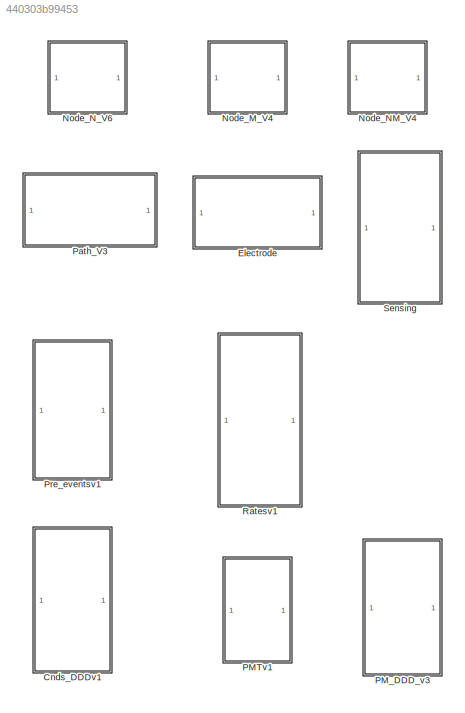
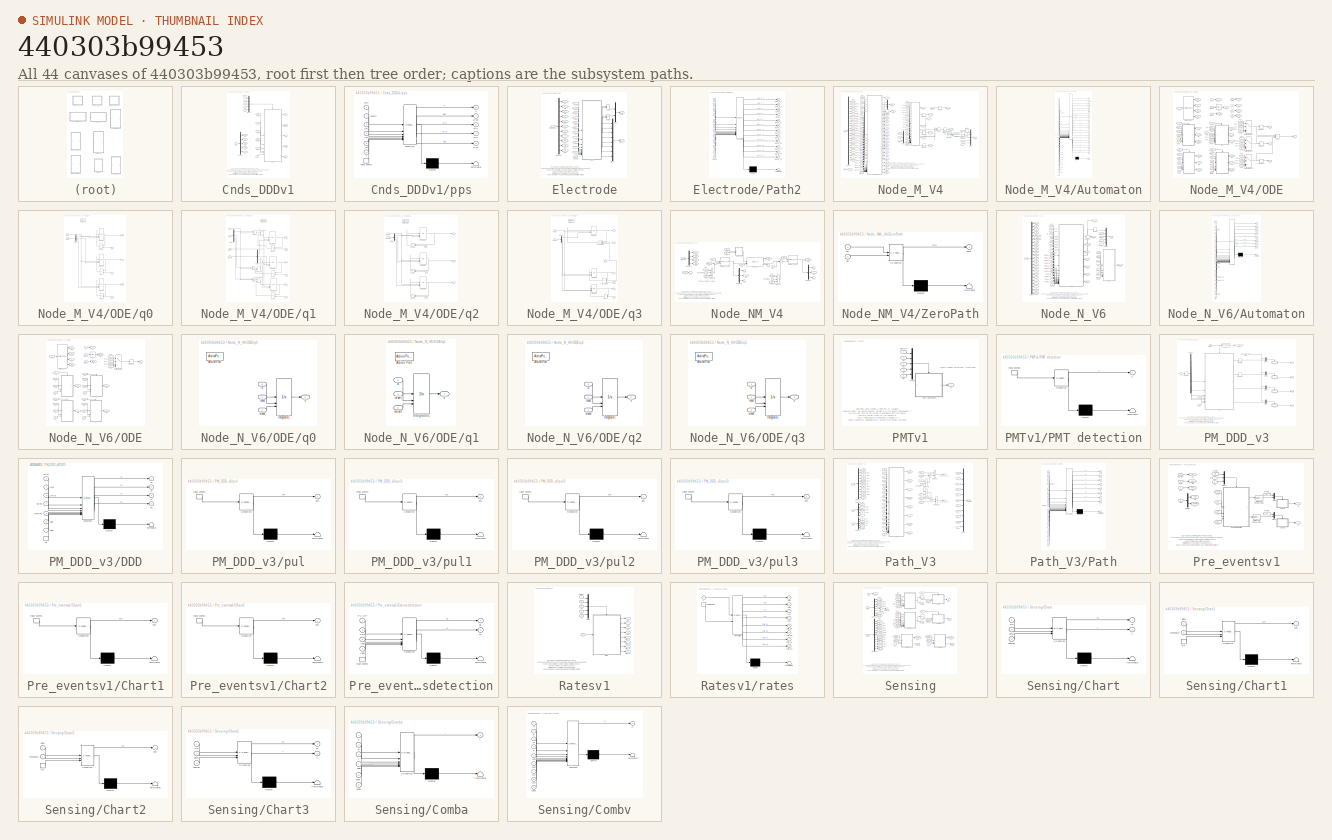
[diagram: thumbnail index - all 44 canvases of the model, root first then tree order]
MODEL slx_440303b99453
KIND library
CONFIG AbsTol = auto
CONFIG EnableMultiTasking = off
CONFIG FixedStep = auto
CONFIG MaxStep = auto
CONFIG MinStep = auto
CONFIG RelTol = 1e-3
CONFIG SampleTimeConstraint = Unconstrained
CONFIG SolverName = VariableStepAuto
CONFIG StartTime = 0.0
CONFIG StopTime = 10.0
BLOCK [SubSystem] Cnds_DDDv1
BLOCK [Inport] Cnds_DDDv1/AP
  Port = 4
BLOCK [Inport] Cnds_DDDv1/AS
  Port = 2
BLOCK [Inport] Cnds_DDDv1/Cfg
  Port = 6
BLOCK [Demux] Cnds_DDDv1/Demux
  Outputs = 5
BLOCK [From] Cnds_DDDv1/F12
  GotoTag = VRP
BLOCK [From] Cnds_DDDv1/F14
  GotoTag = PVARP
BLOCK [From] Cnds_DDDv1/From
  GotoTag = LRI
BLOCK [From] Cnds_DDDv1/From6
  GotoTag = URI
BLOCK [From] Cnds_DDDv1/From7
  GotoTag = AVI
BLOCK [Goto] Cnds_DDDv1/G10
  GotoTag = AVI
BLOCK [Goto] Cnds_DDDv1/G6
  GotoTag = LRI
BLOCK [Goto] Cnds_DDDv1/G7
  GotoTag = PVARP
BLOCK [Goto] Cnds_DDDv1/G8
  GotoTag = URI
BLOCK [Goto] Cnds_DDDv1/G9
  GotoTag = VRP
BLOCK [Mux] Cnds_DDDv1/Mux4
  DisplayOption = bar
  Inputs = 5
BLOCK [Inport] Cnds_DDDv1/VP
  Port = 5
BLOCK [Inport] Cnds_DDDv1/VS
  Port = 3
BLOCK [Inport] Cnds_DDDv1/clk(ms)
BLOCK [Outport] Cnds_DDDv1/errn
  Port = 3
BLOCK [Outport] Cnds_DDDv1/errs
  Port = 4
BLOCK [Outport] Cnds_DDDv1/n
BLOCK [SubSystem] Cnds_DDDv1/pps
  ErrorFcn = Stateflow.Translate.translate
  PermitHierarchicalResolution = ExplicitOnly
  SFBlockType = Chart
  TreatAsAtomicUnit = on
BLOCK [Demux] Cnds_DDDv1/pps/ Demux 
  Outputs = 1
BLOCK [S-Function] Cnds_DDDv1/pps/ SFunction 
  EnableBusSupport = off
  FunctionName = sf_sfun
  PortCounts = [7 6]
  SFcnIsStateOwnerBlock = off
  SFunctionDeploymentMode = off
  Tag = Stateflow S-Function 84
BLOCK [Terminator] Cnds_DDDv1/pps/ Terminator 
BLOCK [Inport] Cnds_DDDv1/pps/AVI
  Port = 5
BLOCK [Inport] Cnds_DDDv1/pps/LRI
  Port = 3
BLOCK [Outport] Cnds_DDDv1/pps/N
BLOCK [Inport] Cnds_DDDv1/pps/PVARP
  Port = 2
BLOCK [Inport] Cnds_DDDv1/pps/URI
  Port = 4
BLOCK [Inport] Cnds_DDDv1/pps/VRP
BLOCK [Outport] Cnds_DDDv1/pps/allpp
  Port = 2
BLOCK [Outport] Cnds_DDDv1/pps/allps
  Port = 5
BLOCK [Outport] Cnds_DDDv1/pps/errn
  Port = 3
BLOCK [Outport] Cnds_DDDv1/pps/errs
  Port = 4
BLOCK [TriggerPort] Cnds_DDDv1/pps/input events
  ShowOutputPort = on
  StatesWhenEnabling = held
  VariantControl = Variant
BLOCK [Inport] Cnds_DDDv1/pps/t
  Port = 6
BLOCK [Outport] Cnds_DDDv1/reqqs
  NameLocation = top
  Port = 2
BLOCK [Outport] Cnds_DDDv1/reqs
  Port = 5
BLOCK [Inport] Cnds_DDDv1/t
  Port = 7
BLOCK [SubSystem] Electrode
BLOCK [Demux] Electrode/Demux4
  Outputs = 11
BLOCK [Outport] Electrode/EGM_i
BLOCK [From] Electrode/F1
  GotoTag = xj
BLOCK [From] Electrode/F2
  GotoTag = ti
BLOCK [From] Electrode/F20
  GotoTag = xi
BLOCK [From] Electrode/F21
  GotoTag = cvi
BLOCK [From] Electrode/F3
  GotoTag = tj
BLOCK [From] Electrode/F31
  GotoTag = cvj
BLOCK [From] Electrode/F4
  GotoTag = tir
BLOCK [From] Electrode/F5
  GotoTag = yi
BLOCK [From] Electrode/F6
  GotoTag = yj
BLOCK [From] Electrode/F7
  GotoTag = tjr
BLOCK [From] Electrode/F8
  GotoTag = C
BLOCK [Inport] Electrode/FromPath_i
BLOCK [Goto] Electrode/G10
  GotoTag = ti
BLOCK [Goto] Electrode/G12
  GotoTag = tj
BLOCK [Goto] Electrode/G13
  GotoTag = tir
BLOCK [Goto] Electrode/G14
  GotoTag = tjr
BLOCK [Goto] Electrode/G15
  GotoTag = C
BLOCK [Goto] Electrode/G4
  GotoTag = xi
BLOCK [Goto] Electrode/G5
  GotoTag = yi
BLOCK [Goto] Electrode/G6
  GotoTag = xj
BLOCK [Goto] Electrode/G7
  GotoTag = yj
BLOCK [Goto] Electrode/G8
  GotoTag = cvi
BLOCK [Goto] Electrode/G9
  GotoTag = cvj
BLOCK [Inport] Electrode/Leads
  Port = 2
BLOCK [Mux] Electrode/Mux1
  DisplayOption = bar
  Inputs = 8
BLOCK [Mux] Electrode/Mux2
  DisplayOption = bar
  Inputs = 2
BLOCK [SubSystem] Electrode/Path2
  ErrorFcn = Stateflow.Translate.translate
  PermitHierarchicalResolution = ExplicitOnly
  SFBlockType = Chart
  TreatAsAtomicUnit = on
BLOCK [Demux] Electrode/Path2/ Demux 
  Outputs = 1
BLOCK [S-Function] Electrode/Path2/ SFunction 
  EnableBusSupport = off
  FunctionName = sf_sfun
  PortCounts = [12 13]
  SFcnIsStateOwnerBlock = off
  SFunctionDeploymentMode = off
  Tag = Stateflow S-Function 38
BLOCK [Terminator] Electrode/Path2/ Terminator 
BLOCK [Inport] Electrode/Path2/C
  Port = 11
BLOCK [Inport] Electrode/Path2/Leads
  Port = 12
BLOCK [Inport] Electrode/Path2/cvi
  Port = 5
BLOCK [Inport] Electrode/Path2/cvj
  Port = 6
BLOCK [Outport] Electrode/Path2/egm_d_i
BLOCK [Outport] Electrode/Path2/egm_d_j
  Port = 2
BLOCK [Outport] Electrode/Path2/egm_r_i
  Port = 3
BLOCK [Outport] Electrode/Path2/egm_r_j
  Port = 4
BLOCK [Inport] Electrode/Path2/ti
  Port = 7
BLOCK [Inport] Electrode/Path2/tir
  Port = 9
BLOCK [Inport] Electrode/Path2/tj
  Port = 8
BLOCK [Inport] Electrode/Path2/tjr
  Port = 10
BLOCK [Outport] Electrode/Path2/wave_xi
  Port = 5
BLOCK [Outport] Electrode/Path2/wave_xir
  Port = 9
BLOCK [Outport] Electrode/Path2/wave_xj
  Port = 7
BLOCK [Outport] Electrode/Path2/wave_xjr
  Port = 11
BLOCK [Outport] Electrode/Path2/wave_yi
  Port = 6
BLOCK [Outport] Electrode/Path2/wave_yir
  Port = 10
BLOCK [Outport] Electrode/Path2/wave_yj
  Port = 8
BLOCK [Outport] Electrode/Path2/wave_yjr
  Port = 12
BLOCK [Inport] Electrode/Path2/xi
BLOCK [Inport] Electrode/Path2/xj
  Port = 3
BLOCK [Inport] Electrode/Path2/yi
  Port = 2
BLOCK [Inport] Electrode/Path2/yj
  Port = 4
BLOCK [Sum] Electrode/sum
  IconShape = rectangular
BLOCK [Sum] Electrode/sum1
  IconShape = rectangular
  Inputs = --
BLOCK [Outport] Electrode/wave_i
  Port = 2
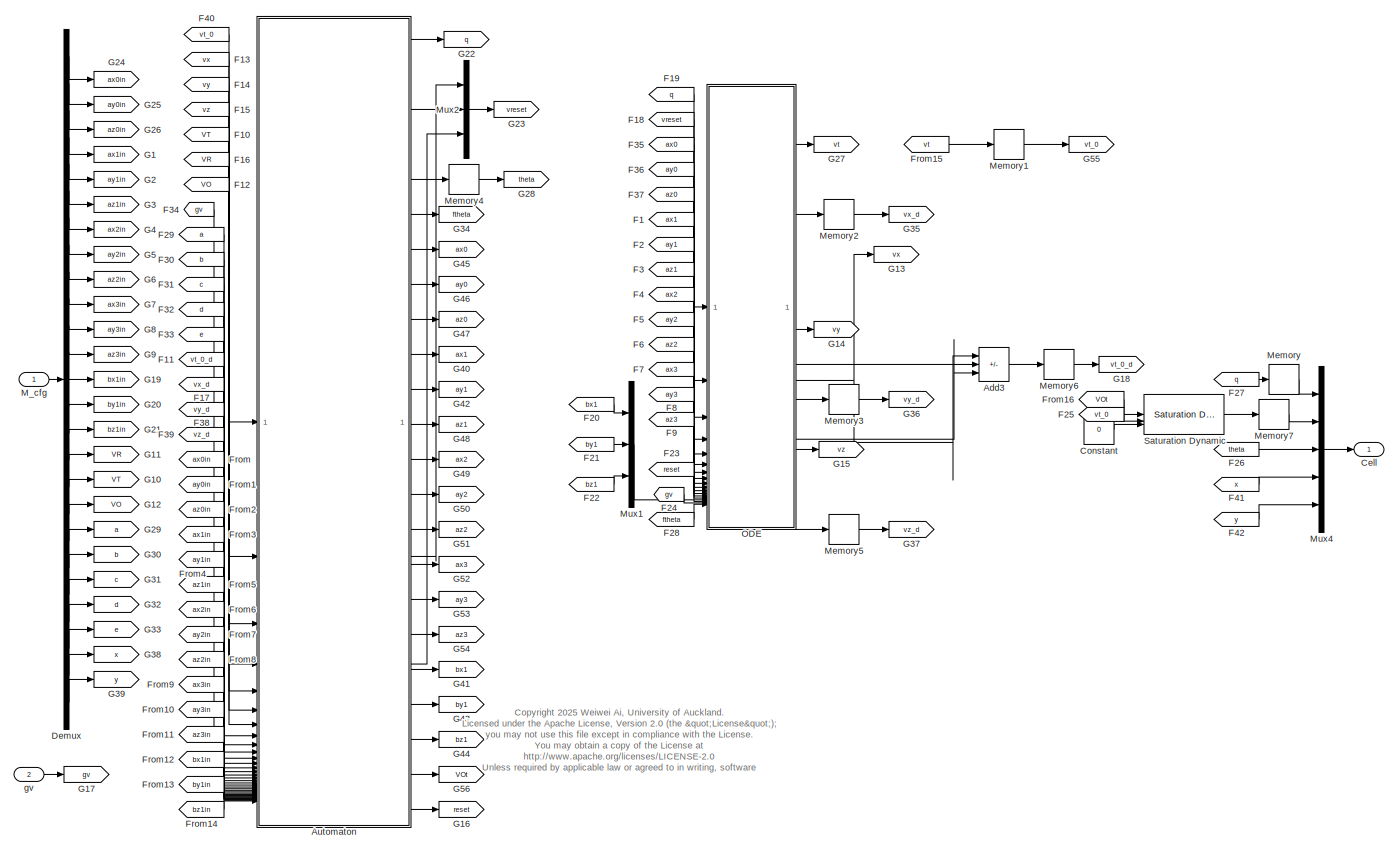
[diagram: Node_M_V4 - part 1/1, most of the canvas]
BLOCK [SubSystem] Node_M_V4
BLOCK [Sum] Node_M_V4/Add3
  IconShape = rectangular
  Inputs = +-+
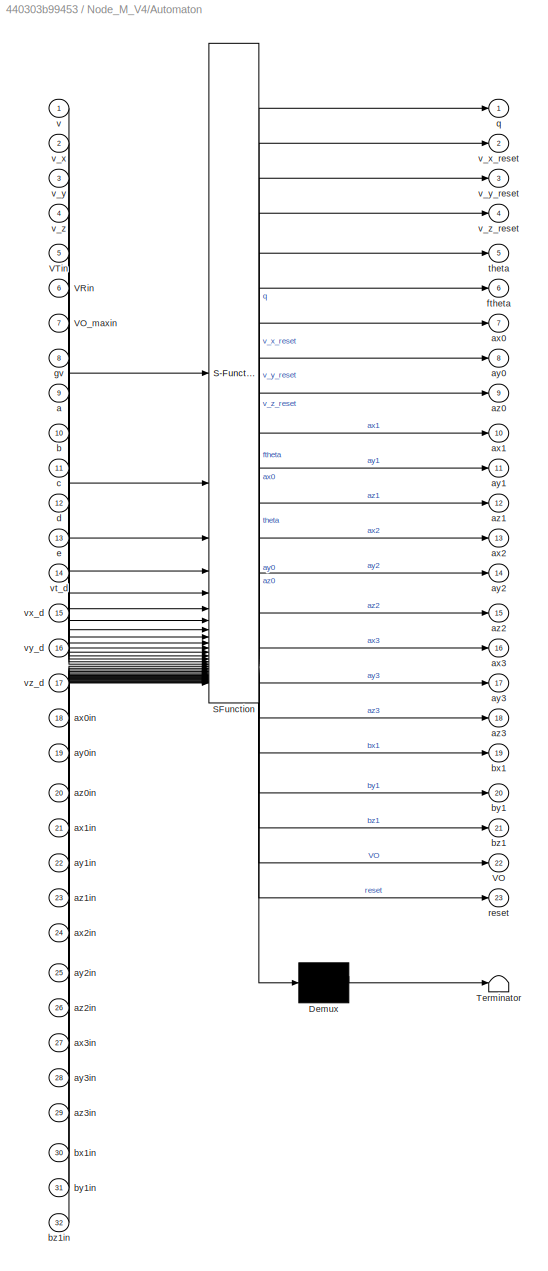
BLOCK [SubSystem] Node_M_V4/Automaton
  ErrorFcn = Stateflow.Translate.translate
  PermitHierarchicalResolution = ExplicitOnly
  SFBlockType = Chart
  TreatAsAtomicUnit = on
BLOCK [Demux] Node_M_V4/Automaton/ Demux 
  Outputs = 1
BLOCK [S-Function] Node_M_V4/Automaton/ SFunction 
  EnableBusSupport = off
  FunctionName = sf_sfun
  PortCounts = [32 24]
  SFcnIsStateOwnerBlock = off
  SFunctionDeploymentMode = off
  Tag = Stateflow S-Function 2
BLOCK [Terminator] Node_M_V4/Automaton/ Terminator 
BLOCK [Outport] Node_M_V4/Automaton/VO
  Port = 22
BLOCK [Inport] Node_M_V4/Automaton/VO_maxin
  Port = 7
BLOCK [Inport] Node_M_V4/Automaton/VRin
  Port = 6
BLOCK [Inport] Node_M_V4/Automaton/VTin
  Port = 5
BLOCK [Inport] Node_M_V4/Automaton/a
  Port = 9
BLOCK [Outport] Node_M_V4/Automaton/ax0
  Port = 7
BLOCK [Inport] Node_M_V4/Automaton/ax0in
  Port = 18
BLOCK [Outport] Node_M_V4/Automaton/ax1
  Port = 10
BLOCK [Inport] Node_M_V4/Automaton/ax1in
  Port = 21
BLOCK [Outport] Node_M_V4/Automaton/ax2
  Port = 13
BLOCK [Inport] Node_M_V4/Automaton/ax2in
  Port = 24
BLOCK [Outport] Node_M_V4/Automaton/ax3
  Port = 16
BLOCK [Inport] Node_M_V4/Automaton/ax3in
  Port = 27
BLOCK [Outport] Node_M_V4/Automaton/ay0
  Port = 8
BLOCK [Inport] Node_M_V4/Automaton/ay0in
  Port = 19
BLOCK [Outport] Node_M_V4/Automaton/ay1
  Port = 11
BLOCK [Inport] Node_M_V4/Automaton/ay1in
  Port = 22
BLOCK [Outport] Node_M_V4/Automaton/ay2
  Port = 14
BLOCK [Inport] Node_M_V4/Automaton/ay2in
  Port = 25
BLOCK [Outport] Node_M_V4/Automaton/ay3
  Port = 17
BLOCK [Inport] Node_M_V4/Automaton/ay3in
  Port = 28
BLOCK [Outport] Node_M_V4/Automaton/az0
  Port = 9
BLOCK [Inport] Node_M_V4/Automaton/az0in
  Port = 20
BLOCK [Outport] Node_M_V4/Automaton/az1
  Port = 12
BLOCK [Inport] Node_M_V4/Automaton/az1in
  Port = 23
BLOCK [Outport] Node_M_V4/Automaton/az2
  Port = 15
BLOCK [Inport] Node_M_V4/Automaton/az2in
  Port = 26
BLOCK [Outport] Node_M_V4/Automaton/az3
  Port = 18
BLOCK [Inport] Node_M_V4/Automaton/az3in
  Port = 29
BLOCK [Inport] Node_M_V4/Automaton/b
  Port = 10
BLOCK [Outport] Node_M_V4/Automaton/bx1
  Port = 19
BLOCK [Inport] Node_M_V4/Automaton/bx1in
  Port = 30
BLOCK [Outport] Node_M_V4/Automaton/by1
  Port = 20
BLOCK [Inport] Node_M_V4/Automaton/by1in
  Port = 31
BLOCK [Outport] Node_M_V4/Automaton/bz1
  Port = 21
BLOCK [Inport] Node_M_V4/Automaton/bz1in
  Port = 32
BLOCK [Inport] Node_M_V4/Automaton/c
  Port = 11
BLOCK [Inport] Node_M_V4/Automaton/d
  Port = 12
BLOCK [Inport] Node_M_V4/Automaton/e
  Port = 13
BLOCK [Outport] Node_M_V4/Automaton/ftheta
  Port = 6
BLOCK [Inport] Node_M_V4/Automaton/gv
  Port = 8
BLOCK [Outport] Node_M_V4/Automaton/q
BLOCK [Outport] Node_M_V4/Automaton/reset
  Port = 23
BLOCK [Outport] Node_M_V4/Automaton/theta
  Port = 5
BLOCK [Inport] Node_M_V4/Automaton/v
BLOCK [Inport] Node_M_V4/Automaton/v_x
  Port = 2
BLOCK [Outport] Node_M_V4/Automaton/v_x_reset
  Port = 2
BLOCK [Inport] Node_M_V4/Automaton/v_y
  Port = 3
BLOCK [Outport] Node_M_V4/Automaton/v_y_reset
  Port = 3
BLOCK [Inport] Node_M_V4/Automaton/v_z
  Port = 4
BLOCK [Outport] Node_M_V4/Automaton/v_z_reset
  Port = 4
BLOCK [Inport] Node_M_V4/Automaton/vt_d
  Port = 14
BLOCK [Inport] Node_M_V4/Automaton/vx_d
  Port = 15
BLOCK [Inport] Node_M_V4/Automaton/vy_d
  Port = 16
BLOCK [Inport] Node_M_V4/Automaton/vz_d
  Port = 17
BLOCK [Outport] Node_M_V4/Cell
BLOCK [Constant] Node_M_V4/Constant
  Value = 0
BLOCK [Demux] Node_M_V4/Demux
  Outputs = 25
BLOCK [From] Node_M_V4/F1
  GotoTag = ax1
BLOCK [From] Node_M_V4/F10
  GotoTag = VT
BLOCK [From] Node_M_V4/F11
  GotoTag = vt_0_d
BLOCK [From] Node_M_V4/F12
  GotoTag = VO
BLOCK [From] Node_M_V4/F13
  GotoTag = vx
BLOCK [From] Node_M_V4/F14
  GotoTag = vy
BLOCK [From] Node_M_V4/F15
  GotoTag = vz
BLOCK [From] Node_M_V4/F16
  GotoTag = VR
BLOCK [From] Node_M_V4/F17
  GotoTag = vx_d
BLOCK [From] Node_M_V4/F18
  GotoTag = vreset
  NameLocation = top
BLOCK [From] Node_M_V4/F19
  GotoTag = q
BLOCK [From] Node_M_V4/F2
  GotoTag = ay1
BLOCK [From] Node_M_V4/F20
  GotoTag = bx1
BLOCK [From] Node_M_V4/F21
  GotoTag = by1
BLOCK [From] Node_M_V4/F22
  GotoTag = bz1
BLOCK [From] Node_M_V4/F23
  GotoTag = reset
BLOCK [From] Node_M_V4/F24
  GotoTag = gv
BLOCK [From] Node_M_V4/F25
  GotoTag = vt_0
BLOCK [From] Node_M_V4/F26
  GotoTag = theta
BLOCK [From] Node_M_V4/F27
  GotoTag = q
BLOCK [From] Node_M_V4/F28
  GotoTag = ftheta
BLOCK [From] Node_M_V4/F29
  GotoTag = a
BLOCK [From] Node_M_V4/F3
  GotoTag = az1
BLOCK [From] Node_M_V4/F30
  GotoTag = b
BLOCK [From] Node_M_V4/F31
  GotoTag = c
BLOCK [From] Node_M_V4/F32
  GotoTag = d
BLOCK [From] Node_M_V4/F33
  GotoTag = e
BLOCK [From] Node_M_V4/F34
  GotoTag = gv
BLOCK [From] Node_M_V4/F35
  GotoTag = ax0
BLOCK [From] Node_M_V4/F36
  GotoTag = ay0
BLOCK [From] Node_M_V4/F37
  GotoTag = az0
BLOCK [From] Node_M_V4/F38
  GotoTag = vy_d
BLOCK [From] Node_M_V4/F39
  GotoTag = vz_d
BLOCK [From] Node_M_V4/F4
  GotoTag = ax2
BLOCK [From] Node_M_V4/F40
  GotoTag = vt_0
BLOCK [From] Node_M_V4/F41
  GotoTag = x
BLOCK [From] Node_M_V4/F42
  GotoTag = y
BLOCK [From] Node_M_V4/F5
  GotoTag = ay2
BLOCK [From] Node_M_V4/F6
  GotoTag = az2
BLOCK [From] Node_M_V4/F7
  GotoTag = ax3
BLOCK [From] Node_M_V4/F8
  GotoTag = ay3
BLOCK [From] Node_M_V4/F9
  GotoTag = az3
BLOCK [From] Node_M_V4/From
  GotoTag = ax0in
BLOCK [From] Node_M_V4/From1
  GotoTag = ay0in
BLOCK [From] Node_M_V4/From10
  GotoTag = ay3in
BLOCK [From] Node_M_V4/From11
  GotoTag = az3in
BLOCK [From] Node_M_V4/From12
  GotoTag = bx1in
BLOCK [From] Node_M_V4/From13
  GotoTag = by1in
BLOCK [From] Node_M_V4/From14
  GotoTag = bz1in
BLOCK [From] Node_M_V4/From15
  GotoTag = vt
BLOCK [From] Node_M_V4/From16
  GotoTag = VOt
BLOCK [From] Node_M_V4/From2
  GotoTag = az0in
BLOCK [From] Node_M_V4/From3
  GotoTag = ax1in
BLOCK [From] Node_M_V4/From4
  GotoTag = ay1in
BLOCK [From] Node_M_V4/From5
  GotoTag = az1in
BLOCK [From] Node_M_V4/From6
  GotoTag = ax2in
BLOCK [From] Node_M_V4/From7
  GotoTag = ay2in
BLOCK [From] Node_M_V4/From8
  GotoTag = az2in
BLOCK [From] Node_M_V4/From9
  GotoTag = ax3in
BLOCK [Goto] Node_M_V4/G1
  GotoTag = ax1in
BLOCK [Goto] Node_M_V4/G10
  GotoTag = VT
BLOCK [Goto] Node_M_V4/G11
  GotoTag = VR
BLOCK [Goto] Node_M_V4/G12
  GotoTag = VO
BLOCK [Goto] Node_M_V4/G13
  GotoTag = vx
BLOCK [Goto] Node_M_V4/G14
  GotoTag = vy
BLOCK [Goto] Node_M_V4/G15
  GotoTag = vz
BLOCK [Goto] Node_M_V4/G16
  GotoTag = reset
BLOCK [Goto] Node_M_V4/G17
  GotoTag = gv
BLOCK [Goto] Node_M_V4/G18
  GotoTag = vt_0_d
BLOCK [Goto] Node_M_V4/G19
  GotoTag = bx1in
BLOCK [Goto] Node_M_V4/G2
  GotoTag = ay1in
BLOCK [Goto] Node_M_V4/G20
  GotoTag = by1in
BLOCK [Goto] Node_M_V4/G21
  GotoTag = bz1in
BLOCK [Goto] Node_M_V4/G22
  GotoTag = q
BLOCK [Goto] Node_M_V4/G23
  GotoTag = vreset
BLOCK [Goto] Node_M_V4/G24
  GotoTag = ax0in
BLOCK [Goto] Node_M_V4/G25
  GotoTag = ay0in
BLOCK [Goto] Node_M_V4/G26
  GotoTag = az0in
BLOCK [Goto] Node_M_V4/G27
  GotoTag = vt
BLOCK [Goto] Node_M_V4/G28
  GotoTag = theta
BLOCK [Goto] Node_M_V4/G29
  GotoTag = a
BLOCK [Goto] Node_M_V4/G3
  GotoTag = az1in
BLOCK [Goto] Node_M_V4/G30
  GotoTag = b
BLOCK [Goto] Node_M_V4/G31
  GotoTag = c
BLOCK [Goto] Node_M_V4/G32
  GotoTag = d
BLOCK [Goto] Node_M_V4/G33
  GotoTag = e
BLOCK [Goto] Node_M_V4/G34
  GotoTag = ftheta
BLOCK [Goto] Node_M_V4/G35
  GotoTag = vx_d
BLOCK [Goto] Node_M_V4/G36
  GotoTag = vy_d
BLOCK [Goto] Node_M_V4/G37
  GotoTag = vz_d
BLOCK [Goto] Node_M_V4/G38
  GotoTag = x
BLOCK [Goto] Node_M_V4/G39
  GotoTag = y
BLOCK [Goto] Node_M_V4/G4
  GotoTag = ax2in
BLOCK [Goto] Node_M_V4/G40
  GotoTag = ax1
BLOCK [Goto] Node_M_V4/G41
  GotoTag = bx1
BLOCK [Goto] Node_M_V4/G42
  GotoTag = ay1
BLOCK [Goto] Node_M_V4/G43
  GotoTag = by1
BLOCK [Goto] Node_M_V4/G44
  GotoTag = bz1
BLOCK [Goto] Node_M_V4/G45
  GotoTag = ax0
BLOCK [Goto] Node_M_V4/G46
  GotoTag = ay0
BLOCK [Goto] Node_M_V4/G47
  GotoTag = az0
BLOCK [Goto] Node_M_V4/G48
  GotoTag = az1
BLOCK [Goto] Node_M_V4/G49
  GotoTag = ax2
BLOCK [Goto] Node_M_V4/G5
  GotoTag = ay2in
BLOCK [Goto] Node_M_V4/G50
  GotoTag = ay2
BLOCK [Goto] Node_M_V4/G51
  GotoTag = az2
BLOCK [Goto] Node_M_V4/G52
  GotoTag = ax3
BLOCK [Goto] Node_M_V4/G53
  GotoTag = ay3
BLOCK [Goto] Node_M_V4/G54
  GotoTag = az3
BLOCK [Goto] Node_M_V4/G55
  GotoTag = vt_0
BLOCK [Goto] Node_M_V4/G56
  GotoTag = VOt
BLOCK [Goto] Node_M_V4/G6
  GotoTag = az2in
BLOCK [Goto] Node_M_V4/G7
  GotoTag = ax3in
BLOCK [Goto] Node_M_V4/G8
  GotoTag = ay3in
BLOCK [Goto] Node_M_V4/G9
  GotoTag = az3in
BLOCK [Inport] Node_M_V4/M_cfg
BLOCK [Memory] Node_M_V4/Memory
BLOCK [Memory] Node_M_V4/Memory1
  InheritSampleTime = on
  LinearizeAsDelay = on
BLOCK [Memory] Node_M_V4/Memory2
  InheritSampleTime = on
  LinearizeAsDelay = on
BLOCK [Memory] Node_M_V4/Memory3
  InheritSampleTime = on
  LinearizeAsDelay = on
BLOCK [Memory] Node_M_V4/Memory4
BLOCK [Memory] Node_M_V4/Memory5
  InheritSampleTime = on
  LinearizeAsDelay = on
BLOCK [Memory] Node_M_V4/Memory6
  InheritSampleTime = on
  LinearizeAsDelay = on
BLOCK [Memory] Node_M_V4/Memory7
  InheritSampleTime = on
  LinearizeAsDelay = on
BLOCK [Mux] Node_M_V4/Mux1
  DisplayOption = bar
  Inputs = 3
BLOCK [Mux] Node_M_V4/Mux2
  DisplayOption = bar
  Inputs = 3
BLOCK [Mux] Node_M_V4/Mux4
  DisplayOption = bar
  Inputs = 5
BLOCK [SubSystem] Node_M_V4/ODE
BLOCK [Sum] Node_M_V4/ODE/Add3
  IconShape = rectangular
  Inputs = +-+
BLOCK [From] Node_M_V4/ODE/F
  GotoTag = reset
BLOCK [From] Node_M_V4/ODE/F1
  GotoTag = reset
BLOCK [From] Node_M_V4/ODE/F10
  GotoTag = vx0
BLOCK [From] Node_M_V4/ODE/F11
  GotoTag = vx1
BLOCK [From] Node_M_V4/ODE/F12
  GotoTag = vx2
BLOCK [From] Node_M_V4/ODE/F13
  GotoTag = vx3
BLOCK [From] Node_M_V4/ODE/F15
  GotoTag = vy0
BLOCK [From] Node_M_V4/ODE/F16
  GotoTag = vy1
BLOCK [From] Node_M_V4/ODE/F17
  GotoTag = vy2
BLOCK [From] Node_M_V4/ODE/F18
  GotoTag = vy3
BLOCK [From] Node_M_V4/ODE/F20
  GotoTag = q
BLOCK [From] Node_M_V4/ODE/F21
  GotoTag = q
BLOCK [From] Node_M_V4/ODE/F22
  GotoTag = q
BLOCK [From] Node_M_V4/ODE/F23
  GotoTag = vz0
BLOCK [From] Node_M_V4/ODE/F24
  GotoTag = vz1
BLOCK [From] Node_M_V4/ODE/F25
  GotoTag = vz2
BLOCK [From] Node_M_V4/ODE/F26
  GotoTag = vz3
BLOCK [From] Node_M_V4/ODE/F28
  GotoTag = q0
BLOCK [From] Node_M_V4/ODE/F3
  GotoTag = reset
BLOCK [From] Node_M_V4/ODE/F30
  GotoTag = q2
BLOCK [From] Node_M_V4/ODE/F31
  GotoTag = q3
BLOCK [From] Node_M_V4/ODE/F32
  GotoTag = q1
BLOCK [From] Node_M_V4/ODE/F33
  GotoTag = q
BLOCK [From] Node_M_V4/ODE/F38
  GotoTag = beta
BLOCK [From] Node_M_V4/ODE/F4
  GotoTag = reset
BLOCK [From] Node_M_V4/ODE/F40
  GotoTag = ax1
BLOCK [From] Node_M_V4/ODE/F41
  GotoTag = ay1
BLOCK [From] Node_M_V4/ODE/F42
  GotoTag = az1
BLOCK [From] Node_M_V4/ODE/F5
  GotoTag = vreset
BLOCK [From] Node_M_V4/ODE/F6
  GotoTag = vreset
BLOCK [From] Node_M_V4/ODE/F8
  GotoTag = vreset
BLOCK [From] Node_M_V4/ODE/F9
  GotoTag = vreset
BLOCK [Goto] Node_M_V4/ODE/G
  GotoTag = reset
BLOCK [Goto] Node_M_V4/ODE/G1
  GotoTag = vreset
BLOCK [Goto] Node_M_V4/ODE/G10
  GotoTag = vy3
BLOCK [Goto] Node_M_V4/ODE/G11
  GotoTag = vy1
BLOCK [Goto] Node_M_V4/ODE/G12
  GotoTag = vz0
BLOCK [Goto] Node_M_V4/ODE/G14
  GotoTag = vz2
BLOCK [Goto] Node_M_V4/ODE/G15
  GotoTag = vz1
BLOCK [Goto] Node_M_V4/ODE/G16
  GotoTag = vz3
BLOCK [Goto] Node_M_V4/ODE/G17
  GotoTag = q
BLOCK [Goto] Node_M_V4/ODE/G18
  GotoTag = q0
BLOCK [Goto] Node_M_V4/ODE/G19
  GotoTag = q1
BLOCK [Goto] Node_M_V4/ODE/G2
  GotoTag = vx0
BLOCK [Goto] Node_M_V4/ODE/G20
  GotoTag = q2
BLOCK [Goto] Node_M_V4/ODE/G21
  GotoTag = q3
BLOCK [Goto] Node_M_V4/ODE/G23
  GotoTag = beta
BLOCK [Goto] Node_M_V4/ODE/G24
  GotoTag = ax1
BLOCK [Goto] Node_M_V4/ODE/G25
  GotoTag = ay1
BLOCK [Goto] Node_M_V4/ODE/G26
  GotoTag = az1
BLOCK [Goto] Node_M_V4/ODE/G4
  GotoTag = vx2
BLOCK [Goto] Node_M_V4/ODE/G5
  GotoTag = vx3
BLOCK [Goto] Node_M_V4/ODE/G6
  GotoTag = vx1
BLOCK [Goto] Node_M_V4/ODE/G7
  GotoTag = vy0
BLOCK [Goto] Node_M_V4/ODE/G9
  GotoTag = vy2
BLOCK [InitialCondition] Node_M_V4/ODE/IC
  Value = 0
BLOCK [Memory] Node_M_V4/ODE/Memory1
BLOCK [Memory] Node_M_V4/ODE/Memory2
BLOCK [Memory] Node_M_V4/ODE/Memory3
BLOCK [MultiPortSwitch] Node_M_V4/ODE/Multiport Switch1
  DataPortOrder = Zero-based contiguous
  InputSameDT = off
  Inputs = 4
  SaturateOnIntegerOverflow = off
  zeroidx = on
BLOCK [MultiPortSwitch] Node_M_V4/ODE/Multiport Switch2
  DataPortOrder = Zero-based contiguous
  InputSameDT = off
  Inputs = 4
  SaturateOnIntegerOverflow = off
  zeroidx = on
BLOCK [MultiPortSwitch] Node_M_V4/ODE/Multiport Switch3
  DataPortOrder = Zero-based contiguous
  InputSameDT = off
  Inputs = 4
  SaturateOnIntegerOverflow = off
  zeroidx = on
BLOCK [SwitchCase] Node_M_V4/ODE/Switch Case
  CaseConditions = {0,1,2,3}
  ShowDefaultCase = off
BLOCK [Inport] Node_M_V4/ODE/ax0
  Port = 3
BLOCK [Inport] Node_M_V4/ODE/ax1
  Port = 6
BLOCK [Inport] Node_M_V4/ODE/ax2
  Port = 9
BLOCK [Inport] Node_M_V4/ODE/ax3
  Port = 12
BLOCK [Inport] Node_M_V4/ODE/ay0
  Port = 4
BLOCK [Inport] Node_M_V4/ODE/ay1
  Port = 7
BLOCK [Inport] Node_M_V4/ODE/ay2
  Port = 10
BLOCK [Inport] Node_M_V4/ODE/ay3
  Port = 13
BLOCK [Inport] Node_M_V4/ODE/az0
  Port = 5
BLOCK [Inport] Node_M_V4/ODE/az1
  Port = 8
BLOCK [Inport] Node_M_V4/ODE/az2
  Port = 11
BLOCK [Inport] Node_M_V4/ODE/az3
  Port = 14
BLOCK [Inport] Node_M_V4/ODE/beta
  Port = 15
BLOCK [Inport] Node_M_V4/ODE/ftheta
  Port = 18
BLOCK [Inport] Node_M_V4/ODE/gv
  Port = 17
BLOCK [Inport] Node_M_V4/ODE/q
BLOCK [SubSystem] Node_M_V4/ODE/q0
  TreatAsAtomicUnit = on
BLOCK [ActionPort] Node_M_V4/ODE/q0/Action Port
  InitializeStates = reset
BLOCK [Demux] Node_M_V4/ODE/q0/Demux
  Outputs = 3
BLOCK [Integrator] Node_M_V4/ODE/q0/Integrator1
  ExternalReset = either
  InitialCondition = 20
  InitialConditionSource = external
BLOCK [Integrator] Node_M_V4/ODE/q0/Integrator2
  ExternalReset = either
  InitialCondition = 20
  InitialConditionSource = external
BLOCK [Integrator] Node_M_V4/ODE/q0/Integrator3
  ExternalReset = either
  InitialCondition = 20
  InitialConditionSource = external
BLOCK [Inport] Node_M_V4/ODE/q0/ax0
  Port = 3
BLOCK [Product] Node_M_V4/ODE/q0/ax0*vx
BLOCK [Inport] Node_M_V4/ODE/q0/ay0
  Port = 4
BLOCK [Product] Node_M_V4/ODE/q0/ay0*vy
BLOCK [Inport] Node_M_V4/ODE/q0/az0
  Port = 5
BLOCK [Product] Node_M_V4/ODE/q0/az0*vz
BLOCK [Inport] Node_M_V4/ODE/q0/reset0
BLOCK [Inport] Node_M_V4/ODE/q0/vreset0
  Port = 2
BLOCK [Outport] Node_M_V4/ODE/q0/vx
BLOCK [Outport] Node_M_V4/ODE/q0/vy
  Port = 2
BLOCK [Outport] Node_M_V4/ODE/q0/vz
  Port = 3
BLOCK [SubSystem] Node_M_V4/ODE/q1
  TreatAsAtomicUnit = on
BLOCK [ActionPort] Node_M_V4/ODE/q1/Action Port
  InitializeStates = reset
BLOCK [Demux] Node_M_V4/ODE/q1/Demux
  Outputs = 3
BLOCK [Demux] Node_M_V4/ODE/q1/Demux1
  Outputs = 3
BLOCK [Integrator] Node_M_V4/ODE/q1/Integrator1
  ExternalReset = either
  InitialCondition = 1
  InitialConditionSource = external
BLOCK [Integrator] Node_M_V4/ODE/q1/Integrator2
  ExternalReset = either
  InitialCondition = 1
  InitialConditionSource = external
BLOCK [Integrator] Node_M_V4/ODE/q1/Integrator3
  ExternalReset = either
  InitialCondition = 1
  InitialConditionSource = external
BLOCK [Inport] Node_M_V4/ODE/q1/ax1
  Port = 5
BLOCK [Product] Node_M_V4/ODE/q1/ax1*vx
BLOCK [Inport] Node_M_V4/ODE/q1/ay1
  Port = 6
BLOCK [Product] Node_M_V4/ODE/q1/ay1*vy
BLOCK [Inport] Node_M_V4/ODE/q1/az1
  Port = 7
BLOCK [Product] Node_M_V4/ODE/q1/az1*vz
BLOCK [Inport] Node_M_V4/ODE/q1/beta
  Port = 4
BLOCK [Product] Node_M_V4/ODE/q1/bx*gv
BLOCK [Sum] Node_M_V4/ODE/q1/bx*gv+ax1*vx
  IconShape = rectangular
BLOCK [Product] Node_M_V4/ODE/q1/by*gv
BLOCK [Sum] Node_M_V4/ODE/q1/by*gv+ay1*vy
  IconShape = rectangular
BLOCK [Product] Node_M_V4/ODE/q1/bz*gv
BLOCK [Sum] Node_M_V4/ODE/q1/bz*gv+az1*vz
  IconShape = rectangular
BLOCK [Inport] Node_M_V4/ODE/q1/gv
  Port = 3
BLOCK [Inport] Node_M_V4/ODE/q1/reset1
BLOCK [Inport] Node_M_V4/ODE/q1/vreset1
  Port = 2
BLOCK [Outport] Node_M_V4/ODE/q1/vx
BLOCK [Outport] Node_M_V4/ODE/q1/vy
  Port = 2
BLOCK [Outport] Node_M_V4/ODE/q1/vz
  Port = 3
BLOCK [SubSystem] Node_M_V4/ODE/q2
  TreatAsAtomicUnit = on
BLOCK [ActionPort] Node_M_V4/ODE/q2/Action Port
  InitializeStates = reset
BLOCK [Demux] Node_M_V4/ODE/q2/Demux
  Outputs = 3
BLOCK [Integrator] Node_M_V4/ODE/q2/Integrator1
  ExternalReset = either
  InitialCondition = 20
  InitialConditionSource = external
BLOCK [Integrator] Node_M_V4/ODE/q2/Integrator2
  ExternalReset = either
  InitialCondition = 20
  InitialConditionSource = external
BLOCK [Integrator] Node_M_V4/ODE/q2/Integrator3
  ExternalReset = either
  InitialCondition = 20
  InitialConditionSource = external
BLOCK [Inport] Node_M_V4/ODE/q2/ax2
  Port = 3
BLOCK [Product] Node_M_V4/ODE/q2/ax2*vx
BLOCK [Inport] Node_M_V4/ODE/q2/ay2
  Port = 4
BLOCK [Product] Node_M_V4/ODE/q2/ay2*vy
BLOCK [Inport] Node_M_V4/ODE/q2/az2
  Port = 5
BLOCK [Product] Node_M_V4/ODE/q2/az2*vz
BLOCK [Inport] Node_M_V4/ODE/q2/reset2
BLOCK [Inport] Node_M_V4/ODE/q2/vreset2
  Port = 2
BLOCK [Outport] Node_M_V4/ODE/q2/vx
BLOCK [Outport] Node_M_V4/ODE/q2/vy
  Port = 2
BLOCK [Outport] Node_M_V4/ODE/q2/vz
  Port = 3
BLOCK [SubSystem] Node_M_V4/ODE/q3
  TreatAsAtomicUnit = on
BLOCK [ActionPort] Node_M_V4/ODE/q3/Action Port
  InitializeStates = reset
BLOCK [Demux] Node_M_V4/ODE/q3/Demux
  Outputs = 3
BLOCK [Integrator] Node_M_V4/ODE/q3/Integrator1
  ExternalReset = either
  InitialCondition = 133
  InitialConditionSource = external
BLOCK [Integrator] Node_M_V4/ODE/q3/Integrator2
  ExternalReset = either
  InitialCondition = 133
  InitialConditionSource = external
BLOCK [Integrator] Node_M_V4/ODE/q3/Integrator3
  ExternalReset = either
  InitialCondition = 133
  InitialConditionSource = external
BLOCK [Inport] Node_M_V4/ODE/q3/ax3
  Port = 3
BLOCK [Product] Node_M_V4/ODE/q3/ax3*vx*lamda
  Inputs = 3
BLOCK [Inport] Node_M_V4/ODE/q3/ay3
  Port = 4
BLOCK [Product] Node_M_V4/ODE/q3/ay3*vy*lamda
  Inputs = 3
BLOCK [Inport] Node_M_V4/ODE/q3/az3
  Port = 5
BLOCK [Product] Node_M_V4/ODE/q3/az3*vz*
BLOCK [Inport] Node_M_V4/ODE/q3/ftheta
  Port = 6
BLOCK [Inport] Node_M_V4/ODE/q3/reset3
BLOCK [Inport] Node_M_V4/ODE/q3/vreset3
  Port = 2
BLOCK [Outport] Node_M_V4/ODE/q3/vx
BLOCK [Outport] Node_M_V4/ODE/q3/vy
  Port = 2
BLOCK [Outport] Node_M_V4/ODE/q3/vz
  Port = 3
BLOCK [Inport] Node_M_V4/ODE/reset
  Port = 16
BLOCK [Inport] Node_M_V4/ODE/vreset
  Port = 2
BLOCK [Outport] Node_M_V4/ODE/vt_0
BLOCK [Outport] Node_M_V4/ODE/vx
  Port = 2
BLOCK [Outport] Node_M_V4/ODE/vy
  Port = 3
BLOCK [Outport] Node_M_V4/ODE/vz
  Port = 4
BLOCK [Reference] Node_M_V4/Saturation Dynamic  REF=simulink/Discontinuities/Saturation
Dynamic
  SourceBlock = simulink/Discontinuities/Saturation\nDynamic
  SourceType = Saturation Dynamic
BLOCK [Inport] Node_M_V4/gv
  Port = 2
BLOCK [SubSystem] Node_NM_V4
BLOCK [Outport] Node_NM_V4/Cell
BLOCK [Constant] Node_NM_V4/Constant
  Value = 0.2
BLOCK [Constant] Node_NM_V4/Constant1
  Value = 0.2
BLOCK [Demux] Node_NM_V4/Demux1
  Outputs = [1,1,3]
BLOCK [Demux] Node_NM_V4/Demux2
  Outputs = [23,25,1,1]
BLOCK [Demux] Node_NM_V4/Demux3
  Outputs = [1,1,3]
BLOCK [From] Node_NM_V4/F1
  GotoTag = NA
BLOCK [From] Node_NM_V4/F12
  GotoTag = vj
BLOCK [From] Node_NM_V4/F2
  GotoTag = NM
BLOCK [From] Node_NM_V4/F3
  GotoTag = Cellj
BLOCK [From] Node_NM_V4/F4
  GotoTag = Cellj
BLOCK [From] Node_NM_V4/F5
  GotoTag = vi
BLOCK [From] Node_NM_V4/F8
  GotoTag = M2A
BLOCK [From] Node_NM_V4/From
  GotoTag = Dij
BLOCK [From] Node_NM_V4/From1
  GotoTag = Dji
BLOCK [From] Node_NM_V4/From2
  GotoTag = Dji
BLOCK [From] Node_NM_V4/From3
  GotoTag = Dij
BLOCK [Goto] Node_NM_V4/G1
  GotoTag = M2A
BLOCK [Goto] Node_NM_V4/G2
  GotoTag = NA
BLOCK [Goto] Node_NM_V4/G3
  GotoTag = NM
BLOCK [Goto] Node_NM_V4/G4
  GotoTag = Cellj
BLOCK [Goto] Node_NM_V4/G5
  GotoTag = vi
BLOCK [Goto] Node_NM_V4/G6
  GotoTag = vj
BLOCK [Goto] Node_NM_V4/G7
  GotoTag = Dij
BLOCK [Goto] Node_NM_V4/G8
  GotoTag = Dji
BLOCK [Inport] Node_NM_V4/NM_Cfg
BLOCK [Reference] Node_NM_V4/Node_M_V4  REF=$bdroot/Node_M_V4
  SourceBlock = $bdroot/Node_M_V4
  SourceType = SubSystem
BLOCK [Reference] Node_NM_V4/Node_N_V6  REF=$bdroot/Node_N_V6
  SourceBlock = $bdroot/Node_N_V6
  SourceType = SubSystem
BLOCK [Reference] Node_NM_V4/Path_V3  REF=$bdroot/Path_V3
  SourceBlock = $bdroot/Path_V3
  SourceType = SubSystem
BLOCK [Product] Node_NM_V4/Product1
  Inputs = ***
BLOCK [Product] Node_NM_V4/Product2
  Inputs = ***
BLOCK [Sum] Node_NM_V4/Sum1
  Inputs = |+++
BLOCK [Sum] Node_NM_V4/Sum2
  Inputs = |++
BLOCK [Terminator] Node_NM_V4/T1
BLOCK [Terminator] Node_NM_V4/T2
BLOCK [Terminator] Node_NM_V4/T3
BLOCK [Terminator] Node_NM_V4/T4
BLOCK [Terminator] Node_NM_V4/T9
BLOCK [SubSystem] Node_NM_V4/ZeroPath
  ErrorFcn = Stateflow.Translate.translate
  PermitHierarchicalResolution = ExplicitOnly
  SFBlockType = MATLAB Function
  TreatAsAtomicUnit = on
BLOCK [Demux] Node_NM_V4/ZeroPath/ Demux 
  Outputs = 1
BLOCK [S-Function] Node_NM_V4/ZeroPath/ SFunction 
  EnableBusSupport = off
  FunctionName = sf_sfun
  PortCounts = [2 2]
  SFcnIsStateOwnerBlock = off
  SFunctionDeploymentMode = off
  Tag = Stateflow S-Function 3
BLOCK [Terminator] Node_NM_V4/ZeroPath/ Terminator 
BLOCK [Inport] Node_NM_V4/ZeroPath/dij
BLOCK [Inport] Node_NM_V4/ZeroPath/dji
  Port = 2
BLOCK [Outport] Node_NM_V4/ZeroPath/pcfg
BLOCK [Inport] Node_NM_V4/gv
  Port = 2
BLOCK [SubSystem] Node_N_V6
BLOCK [SubSystem] Node_N_V6/Automaton
  ErrorFcn = Stateflow.Translate.translate
  PermitHierarchicalResolution = ExplicitOnly
  SFBlockType = Chart
  TreatAsAtomicUnit = on
BLOCK [Demux] Node_N_V6/Automaton/ Demux 
  Outputs = 1
BLOCK [S-Function] Node_N_V6/Automaton/ SFunction 
  EnableBusSupport = off
  FunctionName = sf_sfun
  PortCounts = [23 9]
  SFcnIsStateOwnerBlock = off
  SFunctionDeploymentMode = off
  Tag = Stateflow S-Function 46
BLOCK [Terminator] Node_N_V6/Automaton/ Terminator 
BLOCK [Inport] Node_N_V6/Automaton/BCLin
  Port = 13
BLOCK [Inport] Node_N_V6/Automaton/ERPin
  Port = 22
BLOCK [Inport] Node_N_V6/Automaton/MDPin
BLOCK [Inport] Node_N_V6/Automaton/SDin
  Port = 14
BLOCK [Inport] Node_N_V6/Automaton/VRin
  Port = 3
BLOCK [Inport] Node_N_V6/Automaton/VTin
  Port = 2
BLOCK [Inport] Node_N_V6/Automaton/Vhin
  Port = 7
BLOCK [Inport] Node_N_V6/Automaton/d0in
  Port = 12
BLOCK [Outport] Node_N_V6/Automaton/d0out
  Port = 7
BLOCK [Outport] Node_N_V6/Automaton/d1out
  Port = 5
BLOCK [Inport] Node_N_V6/Automaton/d2in
  Port = 11
BLOCK [Outport] Node_N_V6/Automaton/d2out
  Port = 6
BLOCK [Outport] Node_N_V6/Automaton/d3out
  Port = 4
BLOCK [Inport] Node_N_V6/Automaton/f1in
  Port = 15
BLOCK [Inport] Node_N_V6/Automaton/f2in
  Port = 16
BLOCK [Inport] Node_N_V6/Automaton/fin
  Port = 23
BLOCK [Inport] Node_N_V6/Automaton/gv
  Port = 4
BLOCK [Inport] Node_N_V6/Automaton/hin
  Port = 6
BLOCK [Inport] Node_N_V6/Automaton/hrin
  Port = 10
BLOCK [Inport] Node_N_V6/Automaton/hsin
  Port = 8
BLOCK [Inport] Node_N_V6/Automaton/jin
  Port = 20
BLOCK [Inport] Node_N_V6/Automaton/mm
  Port = 21
BLOCK [Outport] Node_N_V6/Automaton/q
BLOCK [Outport] Node_N_V6/Automaton/reset
  Port = 8
BLOCK [Inport] Node_N_V6/Automaton/rin
  Port = 9
BLOCK [Inport] Node_N_V6/Automaton/sigma1sqin
  Port = 17
BLOCK [Inport] Node_N_V6/Automaton/sigma2sqin
  Port = 18
BLOCK [Inport] Node_N_V6/Automaton/sin
  Port = 19
BLOCK [Outport] Node_N_V6/Automaton/theta
  Port = 2
BLOCK [Inport] Node_N_V6/Automaton/v
  Port = 5
BLOCK [Outport] Node_N_V6/Automaton/vreset
  Port = 3
BLOCK [Outport] Node_N_V6/Cell
BLOCK [Demux] Node_N_V6/Demux
  Outputs = 23
BLOCK [From] Node_N_V6/F1
  GotoTag = d2in
BLOCK [From] Node_N_V6/F10
  GotoTag = VT
BLOCK [From] Node_N_V6/F16
  GotoTag = VR
BLOCK [From] Node_N_V6/F25
  GotoTag = MDP
BLOCK [From] Node_N_V6/F3
  GotoTag = d2
BLOCK [From] Node_N_V6/From1
  GotoTag = hs
BLOCK [From] Node_N_V6/From10
  GotoTag = Vh
BLOCK [From] Node_N_V6/From11
  GotoTag = d3
BLOCK [From] Node_N_V6/From12
  GotoTag = d0
BLOCK [From] Node_N_V6/From13
  GotoTag = d1
BLOCK [From] Node_N_V6/From14
  GotoTag = h
BLOCK [From] Node_N_V6/From15
  GotoTag = x
BLOCK [From] Node_N_V6/From16
  GotoTag = hr
BLOCK [From] Node_N_V6/From17
  GotoTag = ERP
BLOCK [From] Node_N_V6/From18
  GotoTag = v
BLOCK [From] Node_N_V6/From19
  GotoTag = d0in
BLOCK [From] Node_N_V6/From2
  GotoTag = r
BLOCK [From] Node_N_V6/From20
  GotoTag = BCL
BLOCK [From] Node_N_V6/From21
  GotoTag = SD
BLOCK [From] Node_N_V6/From22
  GotoTag = f1
BLOCK [From] Node_N_V6/From23
  GotoTag = f2
BLOCK [From] Node_N_V6/From24
  GotoTag = j
BLOCK [From] Node_N_V6/From25
  GotoTag = sigma1sq
BLOCK [From] Node_N_V6/From26
  GotoTag = sigma2sq
BLOCK [From] Node_N_V6/From27
  GotoTag = m
BLOCK [From] Node_N_V6/From28
  GotoTag = y
BLOCK [From] Node_N_V6/From3
  GotoTag = v
BLOCK [From] Node_N_V6/From4
  GotoTag = theta
BLOCK [From] Node_N_V6/From5
  GotoTag = s
BLOCK [From] Node_N_V6/From6
  GotoTag = q
BLOCK [From] Node_N_V6/From7
  GotoTag = reset
BLOCK [From] Node_N_V6/From8
  GotoTag = f
BLOCK [From] Node_N_V6/From9
  GotoTag = vreset
BLOCK [Goto] Node_N_V6/G1
  GotoTag = d0in
BLOCK [Goto] Node_N_V6/G10
  GotoTag = reset
BLOCK [Goto] Node_N_V6/G11
  GotoTag = q
BLOCK [Goto] Node_N_V6/G12
  GotoTag = hr
BLOCK [Goto] Node_N_V6/G13
  GotoTag = s
BLOCK [Goto] Node_N_V6/G14
  GotoTag = h
BLOCK [Goto] Node_N_V6/G15
  GotoTag = f
BLOCK [Goto] Node_N_V6/G16
  GotoTag = d1
BLOCK [Goto] Node_N_V6/G17
  GotoTag = hs
BLOCK [Goto] Node_N_V6/G18
  GotoTag = BCL
BLOCK [Goto] Node_N_V6/G19
  GotoTag = SD
BLOCK [Goto] Node_N_V6/G2
  GotoTag = MDP
BLOCK [Goto] Node_N_V6/G20
  GotoTag = f1
BLOCK [Goto] Node_N_V6/G21
  GotoTag = f2
BLOCK [Goto] Node_N_V6/G22
  GotoTag = sigma1sq
BLOCK [Goto] Node_N_V6/G23
  GotoTag = sigma2sq
BLOCK [Goto] Node_N_V6/G24
  GotoTag = j
BLOCK [Goto] Node_N_V6/G25
  GotoTag = d2in
BLOCK [Goto] Node_N_V6/G26
  GotoTag = ERP
BLOCK [Goto] Node_N_V6/G27
  GotoTag = m
BLOCK [Goto] Node_N_V6/G28
  GotoTag = d3
BLOCK [Goto] Node_N_V6/G29
  GotoTag = d2
BLOCK [Goto] Node_N_V6/G3
  GotoTag = theta
BLOCK [Goto] Node_N_V6/G30
  GotoTag = d0
BLOCK [Goto] Node_N_V6/G31
  GotoTag = x
BLOCK [Goto] Node_N_V6/G32
  GotoTag = y
BLOCK [Goto] Node_N_V6/G4
  GotoTag = Vh
BLOCK [Goto] Node_N_V6/G5
  GotoTag = VT
BLOCK [Goto] Node_N_V6/G6
  GotoTag = VR
BLOCK [Goto] Node_N_V6/G7
  GotoTag = r
BLOCK [Goto] Node_N_V6/G8
  GotoTag = v
BLOCK [Goto] Node_N_V6/G9
  GotoTag = vreset
BLOCK [Memory] Node_N_V6/Memory
BLOCK [Memory] Node_N_V6/Memory2
BLOCK [Mux] Node_N_V6/Mux4
  DisplayOption = bar
  Inputs = 5
BLOCK [Inport] Node_N_V6/N_cfg
BLOCK [SubSystem] Node_N_V6/ODE
BLOCK [From] Node_N_V6/ODE/F1
  GotoTag = reset
BLOCK [From] Node_N_V6/ODE/F11
  GotoTag = v0
BLOCK [From] Node_N_V6/ODE/F12
  GotoTag = v1
BLOCK [From] Node_N_V6/ODE/F13
  GotoTag = v2
BLOCK [From] Node_N_V6/ODE/F19
  GotoTag = v3
BLOCK [From] Node_N_V6/ODE/F2
  GotoTag = vreset
BLOCK [From] Node_N_V6/ODE/F20
  GotoTag = q
BLOCK [From] Node_N_V6/ODE/F28
  GotoTag = reset
BLOCK [From] Node_N_V6/ODE/F3
  GotoTag = reset
BLOCK [From] Node_N_V6/ODE/F30
  GotoTag = q3
BLOCK [From] Node_N_V6/ODE/F31
  GotoTag = q0
BLOCK [From] Node_N_V6/ODE/F32
  GotoTag = q1
BLOCK [From] Node_N_V6/ODE/F33
  GotoTag = q
BLOCK [From] Node_N_V6/ODE/F4
  GotoTag = reset
BLOCK [From] Node_N_V6/ODE/F40
  GotoTag = vreset
BLOCK [From] Node_N_V6/ODE/F5
  GotoTag = vreset
BLOCK [From] Node_N_V6/ODE/F6
  GotoTag = q2
BLOCK [From] Node_N_V6/ODE/F9
  GotoTag = vreset
BLOCK [Goto] Node_N_V6/ODE/G
  GotoTag = reset
BLOCK [Goto] Node_N_V6/ODE/G1
  GotoTag = vreset
BLOCK [Goto] Node_N_V6/ODE/G17
  GotoTag = q
BLOCK [Goto] Node_N_V6/ODE/G19
  GotoTag = q1
BLOCK [Goto] Node_N_V6/ODE/G2
  GotoTag = v2
BLOCK [Goto] Node_N_V6/ODE/G20
  GotoTag = q2
BLOCK [Goto] Node_N_V6/ODE/G21
  GotoTag = q3
BLOCK [Goto] Node_N_V6/ODE/G3
  GotoTag = q0
BLOCK [Goto] Node_N_V6/ODE/G4
  GotoTag = v3
BLOCK [Goto] Node_N_V6/ODE/G5
  GotoTag = v0
BLOCK [Goto] Node_N_V6/ODE/G6
  GotoTag = v1
BLOCK [InitialCondition] Node_N_V6/ODE/IC
  Value = 0
BLOCK [Memory] Node_N_V6/ODE/Memory1
BLOCK [MultiPortSwitch] Node_N_V6/ODE/Multiport Switch1
  DataPortOrder = Zero-based contiguous
  InputSameDT = off
  Inputs = 4
  SaturateOnIntegerOverflow = off
  zeroidx = on
BLOCK [SwitchCase] Node_N_V6/ODE/Switch Case
  CaseConditions = {1,2,3,0}
  ShowDefaultCase = off
BLOCK [Inport] Node_N_V6/ODE/d0
  Port = 6
BLOCK [Inport] Node_N_V6/ODE/d1
  Port = 3
BLOCK [Inport] Node_N_V6/ODE/d2
  Port = 4
BLOCK [Inport] Node_N_V6/ODE/d3
  Port = 5
BLOCK [Inport] Node_N_V6/ODE/q
BLOCK [SubSystem] Node_N_V6/ODE/q0
  TreatAsAtomicUnit = on
BLOCK [ActionPort] Node_N_V6/ODE/q0/Action Port
  InitializeStates = reset
BLOCK [Integrator] Node_N_V6/ODE/q0/Integrator1
  ExternalReset = either
  InitialCondition = 20
  InitialConditionSource = external
BLOCK [Inport] Node_N_V6/ODE/q0/d
  Port = 3
BLOCK [Inport] Node_N_V6/ODE/q0/reset
BLOCK [Outport] Node_N_V6/ODE/q0/v
BLOCK [Inport] Node_N_V6/ODE/q0/vreset
  Port = 2
BLOCK [SubSystem] Node_N_V6/ODE/q1
  TreatAsAtomicUnit = on
BLOCK [ActionPort] Node_N_V6/ODE/q1/Action Port
  InitializeStates = reset
BLOCK [Integrator] Node_N_V6/ODE/q1/Integrator1
  ExternalReset = either
  InitialCondition = 20
  InitialConditionSource = external
BLOCK [Inport] Node_N_V6/ODE/q1/d
  Port = 3
BLOCK [Inport] Node_N_V6/ODE/q1/reset
BLOCK [Outport] Node_N_V6/ODE/q1/v
BLOCK [Inport] Node_N_V6/ODE/q1/vreset
  Port = 2
BLOCK [SubSystem] Node_N_V6/ODE/q2
  TreatAsAtomicUnit = on
BLOCK [ActionPort] Node_N_V6/ODE/q2/Action Port
  InitializeStates = reset
BLOCK [Integrator] Node_N_V6/ODE/q2/Integrator1
  ExternalReset = either
  InitialCondition = 20
  InitialConditionSource = external
BLOCK [Inport] Node_N_V6/ODE/q2/d
  Port = 3
BLOCK [Inport] Node_N_V6/ODE/q2/reset
BLOCK [Outport] Node_N_V6/ODE/q2/v
BLOCK [Inport] Node_N_V6/ODE/q2/vreset
  Port = 2
BLOCK [SubSystem] Node_N_V6/ODE/q3
  TreatAsAtomicUnit = on
BLOCK [ActionPort] Node_N_V6/ODE/q3/Action Port
  InitializeStates = reset
BLOCK [Integrator] Node_N_V6/ODE/q3/Integrator1
  ExternalReset = either
  InitialCondition = 20
  InitialConditionSource = external
BLOCK [Inport] Node_N_V6/ODE/q3/d
  Port = 3
BLOCK [Inport] Node_N_V6/ODE/q3/reset
BLOCK [Outport] Node_N_V6/ODE/q3/v
BLOCK [Inport] Node_N_V6/ODE/q3/vreset
  Port = 2
BLOCK [Inport] Node_N_V6/ODE/reset
  Port = 7
BLOCK [Inport] Node_N_V6/ODE/vreset
  Port = 2
BLOCK [Outport] Node_N_V6/ODE/vt_0
BLOCK [Inport] Node_N_V6/gv
  Port = 2
BLOCK [SubSystem] PMTv1
BLOCK [Inport] PMTv1/AP
  Port = 4
BLOCK [Inport] PMTv1/AS
  Port = 2
BLOCK [Mux] PMTv1/Mux4
  DisplayOption = bar
  Inputs = 5
BLOCK [SubSystem] PMTv1/PMT detection
  ErrorFcn = Stateflow.Translate.translate
  PermitHierarchicalResolution = ExplicitOnly
  SFBlockType = Chart
  TreatAsAtomicUnit = on
BLOCK [Demux] PMTv1/PMT detection/ Demux 
  Outputs = 1
BLOCK [S-Function] PMTv1/PMT detection/ SFunction 
  EnableBusSupport = off
  FunctionName = sf_sfun
  PortCounts = [1 2]
  SFcnIsStateOwnerBlock = off
  SFunctionDeploymentMode = off
  Tag = Stateflow S-Function 87
BLOCK [Terminator] PMTv1/PMT detection/ Terminator 
BLOCK [TriggerPort] PMTv1/PMT detection/input events
  ShowOutputPort = on
  StatesWhenEnabling = held
  VariantControl = Variant
BLOCK [Outport] PMTv1/PMT detection/s
BLOCK [Inport] PMTv1/VP
  Port = 5
BLOCK [Inport] PMTv1/VS
  Port = 3
BLOCK [Inport] PMTv1/clk(ms)
BLOCK [Outport] PMTv1/s
BLOCK [SubSystem] PM_DDD_v3
BLOCK [Outport] PM_DDD_v3/AP
BLOCK [Outport] PM_DDD_v3/AS
  Port = 3
BLOCK [Inport] PM_DDD_v3/Aget
  Port = 2
BLOCK [Goto] PM_DDD_v3/Cell_3
  GotoTag = clkms
BLOCK [SubSystem] PM_DDD_v3/DDD
  ErrorFcn = Stateflow.Translate.translate
  PermitHierarchicalResolution = ExplicitOnly
  SFBlockType = Chart
  TreatAsAtomicUnit = on
BLOCK [Demux] PM_DDD_v3/DDD/ Demux 
  Outputs = 1
BLOCK [S-Function] PM_DDD_v3/DDD/ SFunction 
  EnableBusSupport = off
  FunctionName = sf_sfun
  PortCounts = [8 5]
  SFcnIsStateOwnerBlock = off
  SFunctionDeploymentMode = off
  Tag = Stateflow S-Function 79
BLOCK [Terminator] PM_DDD_v3/DDD/ Terminator 
BLOCK [Outport] PM_DDD_v3/DDD/AP
BLOCK [Outport] PM_DDD_v3/DDD/AS
  Port = 3
BLOCK [Inport] PM_DDD_v3/DDD/AVId
  Port = 2
BLOCK [Inport] PM_DDD_v3/DDD/AinB
  Port = 6
BLOCK [Inport] PM_DDD_v3/DDD/LRId
BLOCK [Inport] PM_DDD_v3/DDD/PVARPd
  Port = 5
BLOCK [Inport] PM_DDD_v3/DDD/URId
  Port = 3
BLOCK [Outport] PM_DDD_v3/DDD/VP
  Port = 2
BLOCK [Inport] PM_DDD_v3/DDD/VRPd
  Port = 4
BLOCK [Outport] PM_DDD_v3/DDD/VS
  Port = 4
BLOCK [Inport] PM_DDD_v3/DDD/VinB
  Port = 7
BLOCK [TriggerPort] PM_DDD_v3/DDD/clk
  ShowOutputPort = on
  StatesWhenEnabling = held
  VariantControl = Variant
BLOCK [Demux] PM_DDD_v3/Demux
  Outputs = 5
BLOCK [From] PM_DDD_v3/From
  GotoTag = clkms
BLOCK [Memory] PM_DDD_v3/Memory
BLOCK [Memory] PM_DDD_v3/Memory1
BLOCK [Memory] PM_DDD_v3/Memory7
BLOCK [Mux] PM_DDD_v3/Mux1
  DisplayOption = bar
  Inputs = 2
BLOCK [Mux] PM_DDD_v3/Mux2
  DisplayOption = bar
  Inputs = 2
BLOCK [Mux] PM_DDD_v3/Mux3
  DisplayOption = bar
  Inputs = 2
BLOCK [Mux] PM_DDD_v3/Mux4
  DisplayOption = bar
  Inputs = 2
BLOCK [Outport] PM_DDD_v3/VP
  Port = 2
BLOCK [Outport] PM_DDD_v3/VS
  Port = 4
BLOCK [Inport] PM_DDD_v3/Vget
  Port = 3
BLOCK [Inport] PM_DDD_v3/cfg
  Port = 4
BLOCK [Inport] PM_DDD_v3/clk(ms)
BLOCK [DataTypeConversion] PM_DDD_v3/conv
  RndMeth = Floor
  SaturateOnIntegerOverflow = off
BLOCK [SubSystem] PM_DDD_v3/pul
  ErrorFcn = Stateflow.Translate.translate
  PermitHierarchicalResolution = ExplicitOnly
  SFBlockType = Chart
  TreatAsAtomicUnit = on
BLOCK [Demux] PM_DDD_v3/pul/ Demux 
  Outputs = 1
BLOCK [S-Function] PM_DDD_v3/pul/ SFunction 
  EnableBusSupport = off
  FunctionName = sf_sfun
  PortCounts = [1 2]
  SFcnIsStateOwnerBlock = off
  SFunctionDeploymentMode = off
  Tag = Stateflow S-Function 80
BLOCK [Terminator] PM_DDD_v3/pul/ Terminator 
BLOCK [Outport] PM_DDD_v3/pul/eve
BLOCK [TriggerPort] PM_DDD_v3/pul/input events
  ShowOutputPort = on
  StatesWhenEnabling = held
  TriggerType = either
  VariantControl = Variant
BLOCK [SubSystem] PM_DDD_v3/pul1
  ErrorFcn = Stateflow.Translate.translate
  PermitHierarchicalResolution = ExplicitOnly
  SFBlockType = Chart
  TreatAsAtomicUnit = on
BLOCK [Demux] PM_DDD_v3/pul1/ Demux 
  Outputs = 1
BLOCK [S-Function] PM_DDD_v3/pul1/ SFunction 
  EnableBusSupport = off
  FunctionName = sf_sfun
  PortCounts = [1 2]
  SFcnIsStateOwnerBlock = off
  SFunctionDeploymentMode = off
  Tag = Stateflow S-Function 81
BLOCK [Terminator] PM_DDD_v3/pul1/ Terminator 
BLOCK [Outport] PM_DDD_v3/pul1/eve
BLOCK [TriggerPort] PM_DDD_v3/pul1/input events
  ShowOutputPort = on
  StatesWhenEnabling = held
  TriggerType = either
  VariantControl = Variant
BLOCK [SubSystem] PM_DDD_v3/pul2
  ErrorFcn = Stateflow.Translate.translate
  PermitHierarchicalResolution = ExplicitOnly
  SFBlockType = Chart
  TreatAsAtomicUnit = on
BLOCK [Demux] PM_DDD_v3/pul2/ Demux 
  Outputs = 1
BLOCK [S-Function] PM_DDD_v3/pul2/ SFunction 
  EnableBusSupport = off
  FunctionName = sf_sfun
  PortCounts = [1 2]
  SFcnIsStateOwnerBlock = off
  SFunctionDeploymentMode = off
  Tag = Stateflow S-Function 82
BLOCK [Terminator] PM_DDD_v3/pul2/ Terminator 
BLOCK [Outport] PM_DDD_v3/pul2/eve
BLOCK [TriggerPort] PM_DDD_v3/pul2/input events
  ShowOutputPort = on
  StatesWhenEnabling = held
  TriggerType = either
  VariantControl = Variant
BLOCK [SubSystem] PM_DDD_v3/pul3
  ErrorFcn = Stateflow.Translate.translate
  PermitHierarchicalResolution = ExplicitOnly
  SFBlockType = Chart
  TreatAsAtomicUnit = on
BLOCK [Demux] PM_DDD_v3/pul3/ Demux 
  Outputs = 1
BLOCK [S-Function] PM_DDD_v3/pul3/ SFunction 
  EnableBusSupport = off
  FunctionName = sf_sfun
  PortCounts = [1 2]
  SFcnIsStateOwnerBlock = off
  SFunctionDeploymentMode = off
  Tag = Stateflow S-Function 83
BLOCK [Terminator] PM_DDD_v3/pul3/ Terminator 
BLOCK [Outport] PM_DDD_v3/pul3/eve
BLOCK [TriggerPort] PM_DDD_v3/pul3/input events
  ShowOutputPort = on
  StatesWhenEnabling = held
  TriggerType = either
  VariantControl = Variant
BLOCK [SubSystem] Path_V3
BLOCK [Outport] Path_V3/C_ i_P_ToJ_ j
  Port = 2
BLOCK [Outport] Path_V3/C_ j_P_ToJ_ i
BLOCK [Inport] Path_V3/Cell i
  Port = 2
BLOCK [Inport] Path_V3/Cell j
  Port = 3
BLOCK [Constant] Path_V3/Constant
  Value = 0.2
BLOCK [Demux] Path_V3/Demux2
  Outputs = 5
BLOCK [Demux] Path_V3/Demux3
  Outputs = 5
BLOCK [Demux] Path_V3/Demux4
  Outputs = 11
BLOCK [From] Path_V3/F1
  GotoTag = qj
BLOCK [From] Path_V3/F10
  GotoTag = xj
BLOCK [From] Path_V3/F11
  GotoTag = yj
BLOCK [From] Path_V3/F12
  GotoTag = vj
BLOCK [From] Path_V3/F13
  GotoTag = xj
BLOCK [From] Path_V3/F14
  GotoTag = yj
BLOCK [From] Path_V3/F15
  GotoTag = xi
BLOCK [From] Path_V3/F16
  GotoTag = yi
BLOCK [From] Path_V3/F17
  GotoTag = ti
BLOCK [From] Path_V3/F18
  GotoTag = tj
BLOCK [From] Path_V3/F19
  GotoTag = cvi
BLOCK [From] Path_V3/F2
  GotoTag = theta2
BLOCK [From] Path_V3/F20
  GotoTag = cvj
BLOCK [From] Path_V3/F21
  GotoTag = vi
BLOCK [From] Path_V3/F22
  GotoTag = C
BLOCK [From] Path_V3/F24
  GotoTag = tir
BLOCK [From] Path_V3/F25
  GotoTag = tjr
BLOCK [From] Path_V3/F3
  GotoTag = aji
BLOCK [From] Path_V3/F32
  GotoTag = vj
BLOCK [From] Path_V3/F33
  GotoTag = vi
BLOCK [From] Path_V3/F35
  GotoTag = qi
BLOCK [From] Path_V3/F37
  GotoTag = CVi2j
BLOCK [From] Path_V3/F38
  GotoTag = Dij
BLOCK [From] Path_V3/F4
  GotoTag = bji
BLOCK [From] Path_V3/F40
  GotoTag = CVj2i
BLOCK [From] Path_V3/F41
  GotoTag = Dji
BLOCK [From] Path_V3/F5
  GotoTag = vi_1
BLOCK [From] Path_V3/F6
  GotoTag = vj_1
BLOCK [From] Path_V3/F63
  GotoTag = theta1
BLOCK [From] Path_V3/F64
  GotoTag = aij
BLOCK [From] Path_V3/F65
  GotoTag = bij
BLOCK [From] Path_V3/F66
  GotoTag = cij
BLOCK [From] Path_V3/F7
  GotoTag = cji
BLOCK [From] Path_V3/F8
  GotoTag = xi
BLOCK [From] Path_V3/F9
  GotoTag = yi
BLOCK [Goto] Path_V3/G1
  GotoTag = xj
BLOCK [Goto] Path_V3/G10
  GotoTag = vi_1
BLOCK [Goto] Path_V3/G11
  GotoTag = ti
BLOCK [Goto] Path_V3/G12
  GotoTag = xi
BLOCK [Goto] Path_V3/G13
  GotoTag = C
BLOCK [Goto] Path_V3/G14
  GotoTag = cvj
BLOCK [Goto] Path_V3/G15
  GotoTag = vi
BLOCK [Goto] Path_V3/G16
  GotoTag = vj
BLOCK [Goto] Path_V3/G17
  GotoTag = theta1
BLOCK [Goto] Path_V3/G18
  GotoTag = theta2
BLOCK [Goto] Path_V3/G19
  GotoTag = Dij
BLOCK [Goto] Path_V3/G2
  GotoTag = yi
BLOCK [Goto] Path_V3/G20
  GotoTag = cij
BLOCK [Goto] Path_V3/G21
  GotoTag = aij
BLOCK [Goto] Path_V3/G22
  GotoTag = bij
BLOCK [Goto] Path_V3/G23
  GotoTag = Dji
BLOCK [Goto] Path_V3/G24
  GotoTag = aji
BLOCK [Goto] Path_V3/G25
  GotoTag = vj_1
BLOCK [Goto] Path_V3/G26
  GotoTag = tj
BLOCK [Goto] Path_V3/G27
  GotoTag = cvi
BLOCK [Goto] Path_V3/G28
  GotoTag = tir
BLOCK [Goto] Path_V3/G29
  GotoTag = tjr
BLOCK [Goto] Path_V3/G3
  GotoTag = yj
BLOCK [Goto] Path_V3/G30
  GotoTag = bji
BLOCK [Goto] Path_V3/G36
  GotoTag = cji
BLOCK [Goto] Path_V3/G6
  GotoTag = qi
BLOCK [Goto] Path_V3/G7
  GotoTag = qj
BLOCK [Goto] Path_V3/G8
  GotoTag = CVi2j
BLOCK [Goto] Path_V3/G9
  GotoTag = CVj2i
BLOCK [Mux] Path_V3/Mux2
  DisplayOption = bar
  Inputs = 11
BLOCK [Inport] Path_V3/P_cfg
BLOCK [SubSystem] Path_V3/Path
  ErrorFcn = Stateflow.Translate.translate
  PermitHierarchicalResolution = ExplicitOnly
  SFBlockType = Chart
  TreatAsAtomicUnit = on
BLOCK [Demux] Path_V3/Path/ Demux 
  Outputs = 1
BLOCK [S-Function] Path_V3/Path/ SFunction 
  EnableBusSupport = off
  FunctionName = sf_sfun
  PortCounts = [18 9]
  SFcnIsStateOwnerBlock = off
  SFunctionDeploymentMode = off
  Tag = Stateflow S-Function 71
BLOCK [Terminator] Path_V3/Path/ Terminator 
BLOCK [Inport] Path_V3/Path/aij
  Port = 5
BLOCK [Inport] Path_V3/Path/aji
  Port = 10
BLOCK [Inport] Path_V3/Path/bij
  Port = 6
BLOCK [Inport] Path_V3/Path/bji
  Port = 11
BLOCK [Inport] Path_V3/Path/cij
  Port = 7
BLOCK [Inport] Path_V3/Path/cji
  Port = 12
BLOCK [Outport] Path_V3/Path/cvi
BLOCK [Inport] Path_V3/Path/cvij
  Port = 3
BLOCK [Outport] Path_V3/Path/cvj
  Port = 2
BLOCK [Inport] Path_V3/Path/cvji
  Port = 8
BLOCK [Inport] Path_V3/Path/qi
BLOCK [Inport] Path_V3/Path/qj
  Port = 2
BLOCK [Inport] Path_V3/Path/thetai
  Port = 4
BLOCK [Inport] Path_V3/Path/thetaj
  Port = 9
BLOCK [Outport] Path_V3/Path/ti
  Port = 3
BLOCK [Outport] Path_V3/Path/tir
  Port = 5
BLOCK [Outport] Path_V3/Path/tj
  Port = 4
BLOCK [Outport] Path_V3/Path/tjr
  Port = 6
BLOCK [Inport] Path_V3/Path/vi
  Port = 17
BLOCK [Outport] Path_V3/Path/vi_1
  Port = 7
BLOCK [Inport] Path_V3/Path/vj
  Port = 18
BLOCK [Outport] Path_V3/Path/vj_1
  Port = 8
BLOCK [Inport] Path_V3/Path/xi
  Port = 13
BLOCK [Inport] Path_V3/Path/xj
  Port = 15
BLOCK [Inport] Path_V3/Path/yi
  Port = 14
BLOCK [Inport] Path_V3/Path/yj
  Port = 16
BLOCK [Product] Path_V3/Product
  Inputs = **
BLOCK [Product] Path_V3/Product1
  Inputs = **
BLOCK [Product] Path_V3/Product2
  Inputs = **
BLOCK [Product] Path_V3/Product3
  Inputs = **
BLOCK [Sum] Path_V3/Sum
  Inputs = -+|
BLOCK [Sum] Path_V3/Sum1
  Inputs = |+-
BLOCK [Outport] Path_V3/ToProbe
  Port = 3
BLOCK [SubSystem] Pre_eventsv1
BLOCK [Inport] Pre_eventsv1/AP
  Port = 4
BLOCK [Outport] Pre_eventsv1/AS
BLOCK [Inport] Pre_eventsv1/Aget
  Port = 2
BLOCK [Inport] Pre_eventsv1/Cfg
  Port = 6
BLOCK [SubSystem] Pre_eventsv1/Chart1
  ErrorFcn = Stateflow.Translate.translate
  PermitHierarchicalResolution = ExplicitOnly
  SFBlockType = Chart
  TreatAsAtomicUnit = on
BLOCK [Demux] Pre_eventsv1/Chart1/ Demux 
  Outputs = 1
BLOCK [S-Function] Pre_eventsv1/Chart1/ SFunction 
  EnableBusSupport = off
  FunctionName = sf_sfun
  PortCounts = [1 2]
  SFcnIsStateOwnerBlock = off
  SFunctionDeploymentMode = off
  Tag = Stateflow S-Function 86
BLOCK [Terminator] Pre_eventsv1/Chart1/ Terminator 
BLOCK [Outport] Pre_eventsv1/Chart1/eve
BLOCK [TriggerPort] Pre_eventsv1/Chart1/input events
  ShowOutputPort = on
  StatesWhenEnabling = held
  TriggerType = either
  VariantControl = Variant
BLOCK [SubSystem] Pre_eventsv1/Chart2
  ErrorFcn = Stateflow.Translate.translate
  PermitHierarchicalResolution = ExplicitOnly
  SFBlockType = Chart
  TreatAsAtomicUnit = on
BLOCK [Demux] Pre_eventsv1/Chart2/ Demux 
  Outputs = 1
BLOCK [S-Function] Pre_eventsv1/Chart2/ SFunction 
  EnableBusSupport = off
  FunctionName = sf_sfun
  PortCounts = [1 2]
  SFcnIsStateOwnerBlock = off
  SFunctionDeploymentMode = off
  Tag = Stateflow S-Function 85
BLOCK [Terminator] Pre_eventsv1/Chart2/ Terminator 
BLOCK [Outport] Pre_eventsv1/Chart2/eve
BLOCK [TriggerPort] Pre_eventsv1/Chart2/input events
  ShowOutputPort = on
  StatesWhenEnabling = held
  TriggerType = either
  VariantControl = Variant
BLOCK [DataTypeConversion] Pre_eventsv1/Data Type Conversion1
  RndMeth = Floor
  SaturateOnIntegerOverflow = off
BLOCK [DataTypeConversion] Pre_eventsv1/Data Type Conversion2
  RndMeth = Floor
  SaturateOnIntegerOverflow = off
BLOCK [Demux] Pre_eventsv1/Demux
  Outputs = 2
BLOCK [SubSystem] Pre_eventsv1/Events detection
  ErrorFcn = Stateflow.Translate.translate
  PermitHierarchicalResolution = ExplicitOnly
  SFBlockType = Chart
  TreatAsAtomicUnit = on
BLOCK [Demux] Pre_eventsv1/Events detection/ Demux 
  Outputs = 1
BLOCK [S-Function] Pre_eventsv1/Events detection/ SFunction 
  EnableBusSupport = off
  FunctionName = sf_sfun
  PortCounts = [5 3]
  SFcnIsStateOwnerBlock = off
  SFunctionDeploymentMode = off
  Tag = Stateflow S-Function 88
BLOCK [Terminator] Pre_eventsv1/Events detection/ Terminator 
BLOCK [Inport] Pre_eventsv1/Events detection/Aget
  Port = 3
BLOCK [Inport] Pre_eventsv1/Events detection/PVARP
BLOCK [Inport] Pre_eventsv1/Events detection/VRP
  Port = 2
BLOCK [Inport] Pre_eventsv1/Events detection/Vget
  Port = 4
BLOCK [Outport] Pre_eventsv1/Events detection/as
BLOCK [TriggerPort] Pre_eventsv1/Events detection/input events
  ShowOutputPort = on
  StatesWhenEnabling = held
  VariantControl = Variant
BLOCK [Outport] Pre_eventsv1/Events detection/vs
  Port = 2
BLOCK [From] Pre_eventsv1/F12
  GotoTag = VRP
BLOCK [From] Pre_eventsv1/F14
  GotoTag = PVARP
BLOCK [From] Pre_eventsv1/F2
  GotoTag = Aget
BLOCK [From] Pre_eventsv1/F3
  GotoTag = Vget
BLOCK [From] Pre_eventsv1/From1
  GotoTag = clk
BLOCK [From] Pre_eventsv1/From2
  GotoTag = clk
BLOCK [From] Pre_eventsv1/From4
  GotoTag = clk
BLOCK [Goto] Pre_eventsv1/G1
  GotoTag = clk
BLOCK [Goto] Pre_eventsv1/G2
  GotoTag = Aget
BLOCK [Goto] Pre_eventsv1/G3
  GotoTag = Vget
BLOCK [Goto] Pre_eventsv1/G7
  GotoTag = PVARP
BLOCK [Goto] Pre_eventsv1/G9
  GotoTag = VRP
BLOCK [Mux] Pre_eventsv1/Mux
  DisplayOption = bar
  Inputs = 2
BLOCK [Mux] Pre_eventsv1/Mux2
  DisplayOption = bar
  Inputs = 2
BLOCK [Mux] Pre_eventsv1/Mux4
  DisplayOption = bar
  Inputs = 3
BLOCK [Inport] Pre_eventsv1/VP
  Port = 5
BLOCK [Outport] Pre_eventsv1/VS
  Port = 2
BLOCK [Inport] Pre_eventsv1/Vget
  Port = 3
BLOCK [Inport] Pre_eventsv1/clk(ms)
BLOCK [SubSystem] Ratesv1
BLOCK [Inport] Ratesv1/AP
  Port = 4
BLOCK [Inport] Ratesv1/AS
  Port = 2
BLOCK [Mux] Ratesv1/Mux4
  DisplayOption = bar
  Inputs = 5
BLOCK [Inport] Ratesv1/VP
  Port = 5
BLOCK [Inport] Ratesv1/VS
  Port = 3
BLOCK [Inport] Ratesv1/clk(ms)
BLOCK [Outport] Ratesv1/nap
  Port = 2
BLOCK [Outport] Ratesv1/nas
BLOCK [Outport] Ratesv1/nvp
  Port = 4
BLOCK [Outport] Ratesv1/nvs
  Port = 3
BLOCK [Outport] Ratesv1/rate_ap
  Port = 6
BLOCK [Outport] Ratesv1/rate_as
  Port = 5
BLOCK [Outport] Ratesv1/rate_vp
  Port = 8
BLOCK [Outport] Ratesv1/rate_vs
  Port = 7
BLOCK [SubSystem] Ratesv1/rates
  ErrorFcn = Stateflow.Translate.translate
  PermitHierarchicalResolution = ExplicitOnly
  SFBlockType = Chart
  TreatAsAtomicUnit = on
BLOCK [Demux] Ratesv1/rates/ Demux 
  Outputs = 1
BLOCK [S-Function] Ratesv1/rates/ SFunction 
  EnableBusSupport = off
  FunctionName = sf_sfun
  PortCounts = [2 9]
  SFcnIsStateOwnerBlock = off
  SFunctionDeploymentMode = off
  Tag = Stateflow S-Function 89
BLOCK [Terminator] Ratesv1/rates/ Terminator 
BLOCK [TriggerPort] Ratesv1/rates/input events
  ShowOutputPort = on
  StatesWhenEnabling = held
  VariantControl = Variant
BLOCK [Outport] Ratesv1/rates/nap
  Port = 2
BLOCK [Outport] Ratesv1/rates/nas
BLOCK [Outport] Ratesv1/rates/nvp
  Port = 4
BLOCK [Outport] Ratesv1/rates/nvs
  Port = 3
BLOCK [Outport] Ratesv1/rates/rate_ap
  Port = 6
BLOCK [Outport] Ratesv1/rates/rate_as
  Port = 5
BLOCK [Outport] Ratesv1/rates/rate_vp
  Port = 8
BLOCK [Outport] Ratesv1/rates/rate_vs
  Port = 7
BLOCK [Inport] Ratesv1/rates/t
BLOCK [Inport] Ratesv1/t
  Port = 6
BLOCK [SubSystem] Sensing
BLOCK [Inport] Sensing/AP
  Port = 3
BLOCK [Outport] Sensing/APout
  Port = 5
BLOCK [Abs] Sensing/Abs
  SaturateOnIntegerOverflow = off
BLOCK [Abs] Sensing/Abs1
  SaturateOnIntegerOverflow = off
BLOCK [Outport] Sensing/Aegm
BLOCK [Outport] Sensing/Aget
  Port = 3
BLOCK [SubSystem] Sensing/Chart
  ErrorFcn = Stateflow.Translate.translate
  PermitHierarchicalResolution = ExplicitOnly
  SFBlockType = Chart
  TreatAsAtomicUnit = on
BLOCK [Demux] Sensing/Chart/ Demux 
  Outputs = 1
BLOCK [S-Function] Sensing/Chart/ SFunction 
  EnableBusSupport = off
  FunctionName = sf_sfun
  PortCounts = [3 3]
  SFcnIsStateOwnerBlock = off
  SFunctionDeploymentMode = off
  Tag = Stateflow S-Function 31
BLOCK [Terminator] Sensing/Chart/ Terminator 
BLOCK [Inport] Sensing/Chart/RC
BLOCK [Inport] Sensing/Chart/amp
  Port = 2
BLOCK [Inport] Sensing/Chart/pacing
  Port = 3
BLOCK [Outport] Sensing/Chart/v
  Port = 2
BLOCK [Outport] Sensing/Chart/va
BLOCK [SubSystem] Sensing/Chart1
  ErrorFcn = Stateflow.Translate.translate
  PermitHierarchicalResolution = ExplicitOnly
  SFBlockType = Chart
  TreatAsAtomicUnit = on
BLOCK [Demux] Sensing/Chart1/ Demux 
  Outputs = 1
BLOCK [S-Function] Sensing/Chart1/ SFunction 
  EnableBusSupport = off
  FunctionName = sf_sfun
  PortCounts = [3 2]
  SFcnIsStateOwnerBlock = off
  SFunctionDeploymentMode = off
  Tag = Stateflow S-Function 41
BLOCK [Terminator] Sensing/Chart1/ Terminator 
BLOCK [TriggerPort] Sensing/Chart1/clk
  ShowOutputPort = on
  StatesWhenEnabling = held
  VariantControl = Variant
BLOCK [Inport] Sensing/Chart1/egm
BLOCK [Outport] Sensing/Chart1/eve
BLOCK [Inport] Sensing/Chart1/threshold
  Port = 2
BLOCK [SubSystem] Sensing/Chart2
  ErrorFcn = Stateflow.Translate.translate
  PermitHierarchicalResolution = ExplicitOnly
  SFBlockType = Chart
  TreatAsAtomicUnit = on
BLOCK [Demux] Sensing/Chart2/ Demux 
  Outputs = 1
BLOCK [S-Function] Sensing/Chart2/ SFunction 
  EnableBusSupport = off
  FunctionName = sf_sfun
  PortCounts = [3 2]
  SFcnIsStateOwnerBlock = off
  SFunctionDeploymentMode = off
  Tag = Stateflow S-Function 32
BLOCK [Terminator] Sensing/Chart2/ Terminator 
BLOCK [TriggerPort] Sensing/Chart2/clk
  ShowOutputPort = on
  StatesWhenEnabling = held
  VariantControl = Variant
BLOCK [Inport] Sensing/Chart2/egm
BLOCK [Outport] Sensing/Chart2/eve
BLOCK [Inport] Sensing/Chart2/threshold
  Port = 2
BLOCK [SubSystem] Sensing/Chart3
  ErrorFcn = Stateflow.Translate.translate
  PermitHierarchicalResolution = ExplicitOnly
  SFBlockType = Chart
  TreatAsAtomicUnit = on
BLOCK [Demux] Sensing/Chart3/ Demux 
  Outputs = 1
BLOCK [S-Function] Sensing/Chart3/ SFunction 
  EnableBusSupport = off
  FunctionName = sf_sfun
  PortCounts = [3 3]
  SFcnIsStateOwnerBlock = off
  SFunctionDeploymentMode = off
  Tag = Stateflow S-Function 44
BLOCK [Terminator] Sensing/Chart3/ Terminator 
BLOCK [Inport] Sensing/Chart3/RC
BLOCK [Inport] Sensing/Chart3/amp
  Port = 2
BLOCK [Inport] Sensing/Chart3/pacing
  Port = 3
BLOCK [Outport] Sensing/Chart3/v
  Port = 2
BLOCK [Outport] Sensing/Chart3/va
BLOCK [SubSystem] Sensing/Comba
  ErrorFcn = Stateflow.Translate.translate
  PermitHierarchicalResolution = ExplicitOnly
  SFBlockType = MATLAB Function
  TreatAsAtomicUnit = on
BLOCK [Demux] Sensing/Comba/ Demux 
  Outputs = 1
BLOCK [S-Function] Sensing/Comba/ SFunction 
  EnableBusSupport = off
  FunctionName = sf_sfun
  PortCounts = [6 2]
  SFcnIsStateOwnerBlock = off
  SFunctionDeploymentMode = off
  Tag = Stateflow S-Function 36
BLOCK [Terminator] Sensing/Comba/ Terminator 
BLOCK [Inport] Sensing/Comba/a
BLOCK [Inport] Sensing/Comba/b
  Port = 2
BLOCK [Inport] Sensing/Comba/c
  Port = 3
BLOCK [Inport] Sensing/Comba/vadr
  Port = 5
BLOCK [Inport] Sensing/Comba/vadt
  Port = 4
BLOCK [Inport] Sensing/Comba/vvpa
  Port = 6
BLOCK [Outport] Sensing/Comba/y
BLOCK [SubSystem] Sensing/Combv
  ErrorFcn = Stateflow.Translate.translate
  PermitHierarchicalResolution = ExplicitOnly
  SFBlockType = MATLAB Function
  TreatAsAtomicUnit = on
BLOCK [Demux] Sensing/Combv/ Demux 
  Outputs = 1
BLOCK [S-Function] Sensing/Combv/ SFunction 
  EnableBusSupport = off
  FunctionName = sf_sfun
  PortCounts = [9 2]
  SFcnIsStateOwnerBlock = off
  SFunctionDeploymentMode = off
  Tag = Stateflow S-Function 37
BLOCK [Terminator] Sensing/Combv/ Terminator 
BLOCK [Inport] Sensing/Combv/b
  Port = 2
BLOCK [Inport] Sensing/Combv/c1
  Port = 3
BLOCK [Inport] Sensing/Combv/d
BLOCK [Inport] Sensing/Combv/e
  Port = 4
BLOCK [Inport] Sensing/Combv/vapa
  Port = 9
BLOCK [Inport] Sensing/Combv/vvdr
  Port = 6
BLOCK [Inport] Sensing/Combv/vvdt
  Port = 5
BLOCK [Inport] Sensing/Combv/vvrr
  Port = 8
BLOCK [Inport] Sensing/Combv/vvrt
  Port = 7
BLOCK [Outport] Sensing/Combv/y1
BLOCK [Demux] Sensing/Demux1
  Outputs = 13
BLOCK [Demux] Sensing/Demux2
  Outputs = 8
BLOCK [Inport] Sensing/EGM
  Port = 2
BLOCK [From] Sensing/F1
  GotoTag = V_adt
BLOCK [From] Sensing/F10
  GotoTag = VAcross
BLOCK [From] Sensing/F11
  GotoTag = xc1
BLOCK [From] Sensing/F12
  GotoTag = xd
BLOCK [From] Sensing/F13
  GotoTag = xe
BLOCK [From] Sensing/F14
  GotoTag = clk
BLOCK [From] Sensing/F15
  GotoTag = clk
BLOCK [From] Sensing/F2
  GotoTag = AVcross
BLOCK [From] Sensing/F3
  GotoTag = xa
BLOCK [From] Sensing/F4
  GotoTag = xc
BLOCK [From] Sensing/F5
  GotoTag = V_adr
BLOCK [From] Sensing/F6
  GotoTag = V_vdt
BLOCK [From] Sensing/F7
  GotoTag = V_vdr
BLOCK [From] Sensing/F8
  GotoTag = V_vrt
BLOCK [From] Sensing/F9
  GotoTag = V_vrr
BLOCK [From] Sensing/From
  GotoTag = Uni_a
BLOCK [From] Sensing/From1
  GotoTag = VAdelay
BLOCK [From] Sensing/From2
  GotoTag = Sens_a
BLOCK [From] Sensing/From3
  GotoTag = AVdelay
BLOCK [From] Sensing/From4
  GotoTag = Amp_ap
BLOCK [From] Sensing/From5
  GotoTag = Uni_v
BLOCK [From] Sensing/From6
  GotoTag = Sens_v
BLOCK [From] Sensing/From7
  GotoTag = Amp_vp
BLOCK [Goto] Sensing/G1
  GotoTag = xc
BLOCK [Goto] Sensing/G10
  GotoTag = AVcross
BLOCK [Goto] Sensing/G11
  GotoTag = VAcross
BLOCK [Goto] Sensing/G12
  GotoTag = V_adt
BLOCK [Goto] Sensing/G13
  GotoTag = V_adr
BLOCK [Goto] Sensing/G14
  GotoTag = V_vdt
BLOCK [Goto] Sensing/G15
  GotoTag = Uni_v
BLOCK [Goto] Sensing/G16
  GotoTag = V_vdr
BLOCK [Goto] Sensing/G17
  GotoTag = V_vrt
BLOCK [Goto] Sensing/G18
  GotoTag = V_vrr
BLOCK [Goto] Sensing/G19
  GotoTag = xd
BLOCK [Goto] Sensing/G2
  GotoTag = clk
BLOCK [Goto] Sensing/G20
  GotoTag = xe
BLOCK [Goto] Sensing/G21
  GotoTag = Sens_v
BLOCK [Goto] Sensing/G22
  GotoTag = Amp_vp
BLOCK [Goto] Sensing/G3
  GotoTag = Uni_a
BLOCK [Goto] Sensing/G4
  GotoTag = Sens_a
BLOCK [Goto] Sensing/G5
  GotoTag = xc1
BLOCK [Goto] Sensing/G6
  GotoTag = xa
BLOCK [Goto] Sensing/G7
  GotoTag = Amp_ap
BLOCK [Goto] Sensing/G8
  GotoTag = VAdelay
BLOCK [Goto] Sensing/G9
  GotoTag = AVdelay
BLOCK [Inport] Sensing/L_cfg
  Port = 5
BLOCK [Sum] Sensing/Sum2
  Inputs = |-+
BLOCK [Terminator] Sensing/Terminator
BLOCK [Inport] Sensing/VP
  Port = 4
BLOCK [Outport] Sensing/VPout
  Port = 6
BLOCK [Outport] Sensing/Vegm
  Port = 2
BLOCK [Outport] Sensing/Vget
  Port = 4
BLOCK [Inport] Sensing/clk
ANNOTATION Cnds_DDDv1: <copyright redacted>
ANNOTATION Electrode: <copyright redacted>
ANNOTATION Node_M_V4: <copyright redacted>
ANNOTATION Node_NM_V4: <copyright redacted>
ANNOTATION Node_NM_V4: Don't deduct its own voltage
ANNOTATION Node_N_V6: <copyright redacted>
ANNOTATION PMTv1: <copyright redacted>
ANNOTATION PMTv1: Adapta ADDRS1 pacemaker (Medtronic)
ANNOTATION PM_DDD_v3: <copyright redacted>
ANNOTATION Path_V3: <copyright redacted>
ANNOTATION Pre_eventsv1: <copyright redacted>
ANNOTATION Ratesv1: <copyright redacted>
ANNOTATION Sensing: <copyright redacted>
LINE Cnds_DDDv1/AP:1 -> Cnds_DDDv1/Mux4:3
LINE Cnds_DDDv1/AS:1 -> Cnds_DDDv1/Mux4:2
LINE Cnds_DDDv1/Cfg:1 -> Cnds_DDDv1/Demux:1
LINE Cnds_DDDv1/Demux:1 -> Cnds_DDDv1/G6:1
LINE Cnds_DDDv1/Demux:2 -> Cnds_DDDv1/G10:1
LINE Cnds_DDDv1/Demux:3 -> Cnds_DDDv1/G8:1
LINE Cnds_DDDv1/Demux:4 -> Cnds_DDDv1/G9:1
LINE Cnds_DDDv1/Demux:5 -> Cnds_DDDv1/G7:1
LINE Cnds_DDDv1/F12:1 -> Cnds_DDDv1/pps:1
LINE Cnds_DDDv1/F14:1 -> Cnds_DDDv1/pps:2
LINE Cnds_DDDv1/From6:1 -> Cnds_DDDv1/pps:4
LINE Cnds_DDDv1/From7:1 -> Cnds_DDDv1/pps:5
LINE Cnds_DDDv1/From:1 -> Cnds_DDDv1/pps:3
LINE Cnds_DDDv1/Mux4:1 -> Cnds_DDDv1/pps:trigger
LINE Cnds_DDDv1/VP:1 -> Cnds_DDDv1/Mux4:5
LINE Cnds_DDDv1/VS:1 -> Cnds_DDDv1/Mux4:4
LINE Cnds_DDDv1/clk(ms):1 -> Cnds_DDDv1/Mux4:1
LINE Cnds_DDDv1/pps:1 -> Cnds_DDDv1/n:1
LINE Cnds_DDDv1/pps:2 -> Cnds_DDDv1/reqqs:1
LINE Cnds_DDDv1/pps:3 -> Cnds_DDDv1/errn:1
LINE Cnds_DDDv1/pps:4 -> Cnds_DDDv1/errs:1
LINE Cnds_DDDv1/pps:5 -> Cnds_DDDv1/reqs:1
LINE Cnds_DDDv1/t:1 -> Cnds_DDDv1/pps:6
LINE Electrode/Demux4:1 -> Electrode/G4:1
LINE Electrode/Demux4:10 -> Electrode/G14:1
LINE Electrode/Demux4:11 -> Electrode/G15:1
LINE Electrode/Demux4:2 -> Electrode/G5:1
LINE Electrode/Demux4:3 -> Electrode/G6:1
LINE Electrode/Demux4:4 -> Electrode/G7:1
LINE Electrode/Demux4:5 -> Electrode/G8:1
LINE Electrode/Demux4:6 -> Electrode/G9:1
LINE Electrode/Demux4:7 -> Electrode/G10:1
LINE Electrode/Demux4:8 -> Electrode/G12:1
LINE Electrode/Demux4:9 -> Electrode/G13:1
LINE Electrode/F1:1 -> Electrode/Path2:3
LINE Electrode/F20:1 -> Electrode/Path2:1
LINE Electrode/F21:1 -> Electrode/Path2:5
LINE Electrode/F2:1 -> Electrode/Path2:7
LINE Electrode/F31:1 -> Electrode/Path2:6
LINE Electrode/F3:1 -> Electrode/Path2:8
LINE Electrode/F4:1 -> Electrode/Path2:9
LINE Electrode/F5:1 -> Electrode/Path2:2
LINE Electrode/F6:1 -> Electrode/Path2:4
LINE Electrode/F7:1 -> Electrode/Path2:10
LINE Electrode/F8:1 -> Electrode/Path2:11
LINE Electrode/FromPath_i:1 -> Electrode/Demux4:1
LINE Electrode/Leads:1 -> Electrode/Path2:12
LINE Electrode/Mux1:1 -> Electrode/wave_i:1
LINE Electrode/Mux2:1 -> Electrode/EGM_i:1
LINE Electrode/Path2:1 -> Electrode/sum:1
LINE Electrode/Path2:10 -> Electrode/Mux1:6
LINE Electrode/Path2:11 -> Electrode/Mux1:7
LINE Electrode/Path2:12 -> Electrode/Mux1:8
LINE Electrode/Path2:2 -> Electrode/sum:2
LINE Electrode/Path2:3 -> Electrode/sum1:1
LINE Electrode/Path2:4 -> Electrode/sum1:2
LINE Electrode/Path2:5 -> Electrode/Mux1:1
LINE Electrode/Path2:6 -> Electrode/Mux1:2
LINE Electrode/Path2:7 -> Electrode/Mux1:3
LINE Electrode/Path2:8 -> Electrode/Mux1:4
LINE Electrode/Path2:9 -> Electrode/Mux1:5
LINE Electrode/sum1:1 -> Electrode/Mux2:2
LINE Electrode/sum:1 -> Electrode/Mux2:1
LINE Node_M_V4/Add3:1 -> Node_M_V4/Memory6:1
LINE Node_M_V4/Automaton:1 -> Node_M_V4/G22:1
LINE Node_M_V4/Automaton:10 -> Node_M_V4/G40:1
LINE Node_M_V4/Automaton:11 -> Node_M_V4/G42:1
LINE Node_M_V4/Automaton:12 -> Node_M_V4/G48:1
LINE Node_M_V4/Automaton:13 -> Node_M_V4/G49:1
LINE Node_M_V4/Automaton:14 -> Node_M_V4/G50:1
LINE Node_M_V4/Automaton:15 -> Node_M_V4/G51:1
LINE Node_M_V4/Automaton:16 -> Node_M_V4/G52:1
LINE Node_M_V4/Automaton:17 -> Node_M_V4/G53:1
LINE Node_M_V4/Automaton:18 -> Node_M_V4/G54:1
LINE Node_M_V4/Automaton:19 -> Node_M_V4/G41:1
LINE Node_M_V4/Automaton:2 -> Node_M_V4/Mux2:1
LINE Node_M_V4/Automaton:20 -> Node_M_V4/G43:1
LINE Node_M_V4/Automaton:21 -> Node_M_V4/G44:1
LINE Node_M_V4/Automaton:22 -> Node_M_V4/G56:1
LINE Node_M_V4/Automaton:23 -> Node_M_V4/G16:1
LINE Node_M_V4/Automaton:3 -> Node_M_V4/Mux2:2
LINE Node_M_V4/Automaton:4 -> Node_M_V4/Mux2:3
LINE Node_M_V4/Automaton:5 -> Node_M_V4/Memory4:1
LINE Node_M_V4/Automaton:6 -> Node_M_V4/G34:1
LINE Node_M_V4/Automaton:7 -> Node_M_V4/G45:1
LINE Node_M_V4/Automaton:8 -> Node_M_V4/G46:1
LINE Node_M_V4/Automaton:9 -> Node_M_V4/G47:1
LINE Node_M_V4/Constant:1 -> Node_M_V4/Saturation Dynamic:3
LINE Node_M_V4/Demux:1 -> Node_M_V4/G24:1
LINE Node_M_V4/Demux:10 -> Node_M_V4/G7:1
LINE Node_M_V4/Demux:11 -> Node_M_V4/G8:1
LINE Node_M_V4/Demux:12 -> Node_M_V4/G9:1
LINE Node_M_V4/Demux:13 -> Node_M_V4/G19:1
LINE Node_M_V4/Demux:14 -> Node_M_V4/G20:1
LINE Node_M_V4/Demux:15 -> Node_M_V4/G21:1
LINE Node_M_V4/Demux:16 -> Node_M_V4/G11:1
LINE Node_M_V4/Demux:17 -> Node_M_V4/G10:1
LINE Node_M_V4/Demux:18 -> Node_M_V4/G12:1
LINE Node_M_V4/Demux:19 -> Node_M_V4/G29:1
LINE Node_M_V4/Demux:2 -> Node_M_V4/G25:1
LINE Node_M_V4/Demux:20 -> Node_M_V4/G30:1
LINE Node_M_V4/Demux:21 -> Node_M_V4/G31:1
LINE Node_M_V4/Demux:22 -> Node_M_V4/G32:1
LINE Node_M_V4/Demux:23 -> Node_M_V4/G33:1
LINE Node_M_V4/Demux:24 -> Node_M_V4/G38:1
LINE Node_M_V4/Demux:25 -> Node_M_V4/G39:1
LINE Node_M_V4/Demux:3 -> Node_M_V4/G26:1
LINE Node_M_V4/Demux:4 -> Node_M_V4/G1:1
LINE Node_M_V4/Demux:5 -> Node_M_V4/G2:1
LINE Node_M_V4/Demux:6 -> Node_M_V4/G3:1
LINE Node_M_V4/Demux:7 -> Node_M_V4/G4:1
LINE Node_M_V4/Demux:8 -> Node_M_V4/G5:1
LINE Node_M_V4/Demux:9 -> Node_M_V4/G6:1
LINE Node_M_V4/F10:1 -> Node_M_V4/Automaton:5
LINE Node_M_V4/F11:1 -> Node_M_V4/Automaton:14
LINE Node_M_V4/F12:1 -> Node_M_V4/Automaton:7
LINE Node_M_V4/F13:1 -> Node_M_V4/Automaton:2
LINE Node_M_V4/F14:1 -> Node_M_V4/Automaton:3
LINE Node_M_V4/F15:1 -> Node_M_V4/Automaton:4
LINE Node_M_V4/F16:1 -> Node_M_V4/Automaton:6
LINE Node_M_V4/F17:1 -> Node_M_V4/Automaton:15
LINE Node_M_V4/F18:1 -> Node_M_V4/ODE:2
LINE Node_M_V4/F19:1 -> Node_M_V4/ODE:1
LINE Node_M_V4/F1:1 -> Node_M_V4/ODE:6
LINE Node_M_V4/F20:1 -> Node_M_V4/Mux1:1
LINE Node_M_V4/F21:1 -> Node_M_V4/Mux1:2
LINE Node_M_V4/F22:1 -> Node_M_V4/Mux1:3
LINE Node_M_V4/F23:1 -> Node_M_V4/ODE:16
LINE Node_M_V4/F24:1 -> Node_M_V4/ODE:17
LINE Node_M_V4/F25:1 -> Node_M_V4/Saturation Dynamic:2
LINE Node_M_V4/F26:1 -> Node_M_V4/Mux4:3
LINE Node_M_V4/F27:1 -> Node_M_V4/Memory:1
LINE Node_M_V4/F28:1 -> Node_M_V4/ODE:18
LINE Node_M_V4/F29:1 -> Node_M_V4/Automaton:9
LINE Node_M_V4/F2:1 -> Node_M_V4/ODE:7
LINE Node_M_V4/F30:1 -> Node_M_V4/Automaton:10
LINE Node_M_V4/F31:1 -> Node_M_V4/Automaton:11
LINE Node_M_V4/F32:1 -> Node_M_V4/Automaton:12
LINE Node_M_V4/F33:1 -> Node_M_V4/Automaton:13
LINE Node_M_V4/F34:1 -> Node_M_V4/Automaton:8
LINE Node_M_V4/F35:1 -> Node_M_V4/ODE:3
LINE Node_M_V4/F36:1 -> Node_M_V4/ODE:4
LINE Node_M_V4/F37:1 -> Node_M_V4/ODE:5
LINE Node_M_V4/F38:1 -> Node_M_V4/Automaton:16
LINE Node_M_V4/F39:1 -> Node_M_V4/Automaton:17
LINE Node_M_V4/F3:1 -> Node_M_V4/ODE:8
LINE Node_M_V4/F40:1 -> Node_M_V4/Automaton:1
LINE Node_M_V4/F41:1 -> Node_M_V4/Mux4:4
LINE Node_M_V4/F42:1 -> Node_M_V4/Mux4:5
LINE Node_M_V4/F4:1 -> Node_M_V4/ODE:9
LINE Node_M_V4/F5:1 -> Node_M_V4/ODE:10
LINE Node_M_V4/F6:1 -> Node_M_V4/ODE:11
LINE Node_M_V4/F7:1 -> Node_M_V4/ODE:12
LINE Node_M_V4/F8:1 -> Node_M_V4/ODE:13
LINE Node_M_V4/F9:1 -> Node_M_V4/ODE:14
LINE Node_M_V4/From10:1 -> Node_M_V4/Automaton:28
LINE Node_M_V4/From11:1 -> Node_M_V4/Automaton:29
LINE Node_M_V4/From12:1 -> Node_M_V4/Automaton:30
LINE Node_M_V4/From13:1 -> Node_M_V4/Automaton:31
LINE Node_M_V4/From14:1 -> Node_M_V4/Automaton:32
LINE Node_M_V4/From15:1 -> Node_M_V4/Memory1:1
LINE Node_M_V4/From16:1 -> Node_M_V4/Saturation Dynamic:1
LINE Node_M_V4/From1:1 -> Node_M_V4/Automaton:19
LINE Node_M_V4/From2:1 -> Node_M_V4/Automaton:20
LINE Node_M_V4/From3:1 -> Node_M_V4/Automaton:21
LINE Node_M_V4/From4:1 -> Node_M_V4/Automaton:22
LINE Node_M_V4/From5:1 -> Node_M_V4/Automaton:23
LINE Node_M_V4/From6:1 -> Node_M_V4/Automaton:24
LINE Node_M_V4/From7:1 -> Node_M_V4/Automaton:25
LINE Node_M_V4/From8:1 -> Node_M_V4/Automaton:26
LINE Node_M_V4/From9:1 -> Node_M_V4/Automaton:27
LINE Node_M_V4/From:1 -> Node_M_V4/Automaton:18
LINE Node_M_V4/M_cfg:1 -> Node_M_V4/Demux:1
LINE Node_M_V4/Memory1:1 -> Node_M_V4/G55:1
LINE Node_M_V4/Memory2:1 -> Node_M_V4/G35:1
LINE Node_M_V4/Memory3:1 -> Node_M_V4/G36:1
LINE Node_M_V4/Memory4:1 -> Node_M_V4/G28:1
LINE Node_M_V4/Memory5:1 -> Node_M_V4/G37:1
LINE Node_M_V4/Memory6:1 -> Node_M_V4/G18:1
LINE Node_M_V4/Memory7:1 -> Node_M_V4/Mux4:2
LINE Node_M_V4/Memory:1 -> Node_M_V4/Mux4:1
LINE Node_M_V4/Mux1:1 -> Node_M_V4/ODE:15
LINE Node_M_V4/Mux2:1 -> Node_M_V4/G23:1
LINE Node_M_V4/Mux4:1 -> Node_M_V4/Cell:1
LINE Node_M_V4/ODE/Add3:1 -> Node_M_V4/ODE/vt_0:1
LINE Node_M_V4/ODE/F10:1 -> Node_M_V4/ODE/Multiport Switch1:2
LINE Node_M_V4/ODE/F11:1 -> Node_M_V4/ODE/Multiport Switch1:3
LINE Node_M_V4/ODE/F12:1 -> Node_M_V4/ODE/Multiport Switch1:4
LINE Node_M_V4/ODE/F13:1 -> Node_M_V4/ODE/Multiport Switch1:5
LINE Node_M_V4/ODE/F15:1 -> Node_M_V4/ODE/Multiport Switch2:2
LINE Node_M_V4/ODE/F16:1 -> Node_M_V4/ODE/Multiport Switch2:3
LINE Node_M_V4/ODE/F17:1 -> Node_M_V4/ODE/Multiport Switch2:4
LINE Node_M_V4/ODE/F18:1 -> Node_M_V4/ODE/Multiport Switch2:5
LINE Node_M_V4/ODE/F1:1 -> Node_M_V4/ODE/q2:1
LINE Node_M_V4/ODE/F20:1 -> Node_M_V4/ODE/Multiport Switch1:1
LINE Node_M_V4/ODE/F21:1 -> Node_M_V4/ODE/Multiport Switch2:1
LINE Node_M_V4/ODE/F22:1 -> Node_M_V4/ODE/Multiport Switch3:1
LINE Node_M_V4/ODE/F23:1 -> Node_M_V4/ODE/Multiport Switch3:2
LINE Node_M_V4/ODE/F24:1 -> Node_M_V4/ODE/Multiport Switch3:3
LINE Node_M_V4/ODE/F25:1 -> Node_M_V4/ODE/Multiport Switch3:4
LINE Node_M_V4/ODE/F26:1 -> Node_M_V4/ODE/Multiport Switch3:5
LINE Node_M_V4/ODE/F28:1 -> Node_M_V4/ODE/q0:ifaction
LINE Node_M_V4/ODE/F30:1 -> Node_M_V4/ODE/q2:ifaction
LINE Node_M_V4/ODE/F31:1 -> Node_M_V4/ODE/q3:ifaction
LINE Node_M_V4/ODE/F32:1 -> Node_M_V4/ODE/q1:ifaction
LINE Node_M_V4/ODE/F33:1 -> Node_M_V4/ODE/Switch Case:1
LINE Node_M_V4/ODE/F38:1 -> Node_M_V4/ODE/q1:4
LINE Node_M_V4/ODE/F3:1 -> Node_M_V4/ODE/q3:1
LINE Node_M_V4/ODE/F40:1 -> Node_M_V4/ODE/q1:5
LINE Node_M_V4/ODE/F41:1 -> Node_M_V4/ODE/q1:6
LINE Node_M_V4/ODE/F42:1 -> Node_M_V4/ODE/q1:7
LINE Node_M_V4/ODE/F4:1 -> Node_M_V4/ODE/q1:1
LINE Node_M_V4/ODE/F5:1 -> Node_M_V4/ODE/q2:2
LINE Node_M_V4/ODE/F6:1 -> Node_M_V4/ODE/q0:2
LINE Node_M_V4/ODE/F8:1 -> Node_M_V4/ODE/q3:2
LINE Node_M_V4/ODE/F9:1 -> Node_M_V4/ODE/q1:2
LINE Node_M_V4/ODE/F:1 -> Node_M_V4/ODE/q0:1
LINE Node_M_V4/ODE/IC:1 -> Node_M_V4/ODE/G1:1
LINE Node_M_V4/ODE/Memory1:1 -> Node_M_V4/ODE/vx:1
LINE Node_M_V4/ODE/Memory2:1 -> Node_M_V4/ODE/vy:1
LINE Node_M_V4/ODE/Memory3:1 -> Node_M_V4/ODE/vz:1
NET Node_M_V4/ODE/Multiport Switch1:1 -> Node_M_V4/ODE/Add3:1, Node_M_V4/ODE/Memory1:1
NET Node_M_V4/ODE/Multiport Switch2:1 -> Node_M_V4/ODE/Add3:2, Node_M_V4/ODE/Memory2:1
NET Node_M_V4/ODE/Multiport Switch3:1 -> Node_M_V4/ODE/Add3:3, Node_M_V4/ODE/Memory3:1
LINE Node_M_V4/ODE/Switch Case:1 -> Node_M_V4/ODE/G18:1
LINE Node_M_V4/ODE/Switch Case:2 -> Node_M_V4/ODE/G19:1
LINE Node_M_V4/ODE/Switch Case:3 -> Node_M_V4/ODE/G20:1
LINE Node_M_V4/ODE/Switch Case:4 -> Node_M_V4/ODE/G21:1
LINE Node_M_V4/ODE/ax0:1 -> Node_M_V4/ODE/q0:3
LINE Node_M_V4/ODE/ax1:1 -> Node_M_V4/ODE/G24:1
LINE Node_M_V4/ODE/ax2:1 -> Node_M_V4/ODE/q2:3
LINE Node_M_V4/ODE/ax3:1 -> Node_M_V4/ODE/q3:3
LINE Node_M_V4/ODE/ay0:1 -> Node_M_V4/ODE/q0:4
LINE Node_M_V4/ODE/ay1:1 -> Node_M_V4/ODE/G25:1
LINE Node_M_V4/ODE/ay2:1 -> Node_M_V4/ODE/q2:4
LINE Node_M_V4/ODE/ay3:1 -> Node_M_V4/ODE/q3:4
LINE Node_M_V4/ODE/az0:1 -> Node_M_V4/ODE/q0:5
LINE Node_M_V4/ODE/az1:1 -> Node_M_V4/ODE/G26:1
LINE Node_M_V4/ODE/az2:1 -> Node_M_V4/ODE/q2:5
LINE Node_M_V4/ODE/az3:1 -> Node_M_V4/ODE/q3:5
LINE Node_M_V4/ODE/beta:1 -> Node_M_V4/ODE/G23:1
LINE Node_M_V4/ODE/ftheta:1 -> Node_M_V4/ODE/q3:6
LINE Node_M_V4/ODE/gv:1 -> Node_M_V4/ODE/q1:3
LINE Node_M_V4/ODE/q0/Demux:1 -> Node_M_V4/ODE/q0/Integrator1:3
LINE Node_M_V4/ODE/q0/Demux:2 -> Node_M_V4/ODE/q0/Integrator2:3
LINE Node_M_V4/ODE/q0/Demux:3 -> Node_M_V4/ODE/q0/Integrator3:3
NET Node_M_V4/ODE/q0/Integrator1:1 -> Node_M_V4/ODE/q0/ax0*vx:1, Node_M_V4/ODE/q0/vx:1
NET Node_M_V4/ODE/q0/Integrator2:1 -> Node_M_V4/ODE/q0/ay0*vy:1, Node_M_V4/ODE/q0/vy:1
NET Node_M_V4/ODE/q0/Integrator3:1 -> Node_M_V4/ODE/q0/az0*vz:1, Node_M_V4/ODE/q0/vz:1
LINE Node_M_V4/ODE/q0/ax0*vx:1 -> Node_M_V4/ODE/q0/Integrator1:1
LINE Node_M_V4/ODE/q0/ax0:1 -> Node_M_V4/ODE/q0/ax0*vx:2
LINE Node_M_V4/ODE/q0/ay0*vy:1 -> Node_M_V4/ODE/q0/Integrator2:1
LINE Node_M_V4/ODE/q0/ay0:1 -> Node_M_V4/ODE/q0/ay0*vy:2
LINE Node_M_V4/ODE/q0/az0*vz:1 -> Node_M_V4/ODE/q0/Integrator3:1
LINE Node_M_V4/ODE/q0/az0:1 -> Node_M_V4/ODE/q0/az0*vz:2
NET Node_M_V4/ODE/q0/reset0:1 -> Node_M_V4/ODE/q0/Integrator1:2, Node_M_V4/ODE/q0/Integrator2:2, Node_M_V4/ODE/q0/Integrator3:2
LINE Node_M_V4/ODE/q0/vreset0:1 -> Node_M_V4/ODE/q0/Demux:1
LINE Node_M_V4/ODE/q0:1 -> Node_M_V4/ODE/G2:1
LINE Node_M_V4/ODE/q0:2 -> Node_M_V4/ODE/G7:1
LINE Node_M_V4/ODE/q0:3 -> Node_M_V4/ODE/G12:1
LINE Node_M_V4/ODE/q1/Demux1:1 -> Node_M_V4/ODE/q1/bx*gv:1
LINE Node_M_V4/ODE/q1/Demux1:2 -> Node_M_V4/ODE/q1/by*gv:1
LINE Node_M_V4/ODE/q1/Demux1:3 -> Node_M_V4/ODE/q1/bz*gv:1
LINE Node_M_V4/ODE/q1/Demux:1 -> Node_M_V4/ODE/q1/Integrator1:3
LINE Node_M_V4/ODE/q1/Demux:2 -> Node_M_V4/ODE/q1/Integrator2:3
LINE Node_M_V4/ODE/q1/Demux:3 -> Node_M_V4/ODE/q1/Integrator3:3
NET Node_M_V4/ODE/q1/Integrator1:1 -> Node_M_V4/ODE/q1/ax1*vx:1, Node_M_V4/ODE/q1/vx:1
NET Node_M_V4/ODE/q1/Integrator2:1 -> Node_M_V4/ODE/q1/ay1*vy:1, Node_M_V4/ODE/q1/vy:1
NET Node_M_V4/ODE/q1/Integrator3:1 -> Node_M_V4/ODE/q1/az1*vz:1, Node_M_V4/ODE/q1/vz:1
LINE Node_M_V4/ODE/q1/ax1*vx:1 -> Node_M_V4/ODE/q1/bx*gv+ax1*vx:2
LINE Node_M_V4/ODE/q1/ax1:1 -> Node_M_V4/ODE/q1/ax1*vx:2
LINE Node_M_V4/ODE/q1/ay1*vy:1 -> Node_M_V4/ODE/q1/by*gv+ay1*vy:2
LINE Node_M_V4/ODE/q1/ay1:1 -> Node_M_V4/ODE/q1/ay1*vy:2
LINE Node_M_V4/ODE/q1/az1*vz:1 -> Node_M_V4/ODE/q1/bz*gv+az1*vz:2
LINE Node_M_V4/ODE/q1/az1:1 -> Node_M_V4/ODE/q1/az1*vz:2
LINE Node_M_V4/ODE/q1/beta:1 -> Node_M_V4/ODE/q1/Demux1:1
LINE Node_M_V4/ODE/q1/bx*gv+ax1*vx:1 -> Node_M_V4/ODE/q1/Integrator1:1
LINE Node_M_V4/ODE/q1/bx*gv:1 -> Node_M_V4/ODE/q1/bx*gv+ax1*vx:1
LINE Node_M_V4/ODE/q1/by*gv+ay1*vy:1 -> Node_M_V4/ODE/q1/Integrator2:1
LINE Node_M_V4/ODE/q1/by*gv:1 -> Node_M_V4/ODE/q1/by*gv+ay1*vy:1
LINE Node_M_V4/ODE/q1/bz*gv+az1*vz:1 -> Node_M_V4/ODE/q1/Integrator3:1
LINE Node_M_V4/ODE/q1/bz*gv:1 -> Node_M_V4/ODE/q1/bz*gv+az1*vz:1
NET Node_M_V4/ODE/q1/gv:1 -> Node_M_V4/ODE/q1/bx*gv:2, Node_M_V4/ODE/q1/by*gv:2, Node_M_V4/ODE/q1/bz*gv:2
NET Node_M_V4/ODE/q1/reset1:1 -> Node_M_V4/ODE/q1/Integrator1:2, Node_M_V4/ODE/q1/Integrator2:2, Node_M_V4/ODE/q1/Integrator3:2
LINE Node_M_V4/ODE/q1/vreset1:1 -> Node_M_V4/ODE/q1/Demux:1
LINE Node_M_V4/ODE/q1:1 -> Node_M_V4/ODE/G6:1
LINE Node_M_V4/ODE/q1:2 -> Node_M_V4/ODE/G11:1
LINE Node_M_V4/ODE/q1:3 -> Node_M_V4/ODE/G15:1
LINE Node_M_V4/ODE/q2/Demux:1 -> Node_M_V4/ODE/q2/Integrator1:3
LINE Node_M_V4/ODE/q2/Demux:2 -> Node_M_V4/ODE/q2/Integrator2:3
LINE Node_M_V4/ODE/q2/Demux:3 -> Node_M_V4/ODE/q2/Integrator3:3
NET Node_M_V4/ODE/q2/Integrator1:1 -> Node_M_V4/ODE/q2/ax2*vx:1, Node_M_V4/ODE/q2/vx:1
NET Node_M_V4/ODE/q2/Integrator2:1 -> Node_M_V4/ODE/q2/ay2*vy:1, Node_M_V4/ODE/q2/vy:1
NET Node_M_V4/ODE/q2/Integrator3:1 -> Node_M_V4/ODE/q2/az2*vz:1, Node_M_V4/ODE/q2/vz:1
LINE Node_M_V4/ODE/q2/ax2*vx:1 -> Node_M_V4/ODE/q2/Integrator1:1
LINE Node_M_V4/ODE/q2/ax2:1 -> Node_M_V4/ODE/q2/ax2*vx:2
LINE Node_M_V4/ODE/q2/ay2*vy:1 -> Node_M_V4/ODE/q2/Integrator2:1
LINE Node_M_V4/ODE/q2/ay2:1 -> Node_M_V4/ODE/q2/ay2*vy:2
LINE Node_M_V4/ODE/q2/az2*vz:1 -> Node_M_V4/ODE/q2/Integrator3:1
LINE Node_M_V4/ODE/q2/az2:1 -> Node_M_V4/ODE/q2/az2*vz:2
NET Node_M_V4/ODE/q2/reset2:1 -> Node_M_V4/ODE/q2/Integrator1:2, Node_M_V4/ODE/q2/Integrator2:2, Node_M_V4/ODE/q2/Integrator3:2
LINE Node_M_V4/ODE/q2/vreset2:1 -> Node_M_V4/ODE/q2/Demux:1
LINE Node_M_V4/ODE/q2:1 -> Node_M_V4/ODE/G4:1
LINE Node_M_V4/ODE/q2:2 -> Node_M_V4/ODE/G9:1
LINE Node_M_V4/ODE/q2:3 -> Node_M_V4/ODE/G14:1
LINE Node_M_V4/ODE/q3/Demux:1 -> Node_M_V4/ODE/q3/Integrator1:3
LINE Node_M_V4/ODE/q3/Demux:2 -> Node_M_V4/ODE/q3/Integrator2:3
LINE Node_M_V4/ODE/q3/Demux:3 -> Node_M_V4/ODE/q3/Integrator3:3
NET Node_M_V4/ODE/q3/Integrator1:1 -> Node_M_V4/ODE/q3/ax3*vx*lamda:1, Node_M_V4/ODE/q3/vx:1
NET Node_M_V4/ODE/q3/Integrator2:1 -> Node_M_V4/ODE/q3/ay3*vy*lamda:1, Node_M_V4/ODE/q3/vy:1
NET Node_M_V4/ODE/q3/Integrator3:1 -> Node_M_V4/ODE/q3/az3*vz*:1, Node_M_V4/ODE/q3/vz:1
LINE Node_M_V4/ODE/q3/ax3*vx*lamda:1 -> Node_M_V4/ODE/q3/Integrator1:1
LINE Node_M_V4/ODE/q3/ax3:1 -> Node_M_V4/ODE/q3/ax3*vx*lamda:2
LINE Node_M_V4/ODE/q3/ay3*vy*lamda:1 -> Node_M_V4/ODE/q3/Integrator2:1
LINE Node_M_V4/ODE/q3/ay3:1 -> Node_M_V4/ODE/q3/ay3*vy*lamda:3
LINE Node_M_V4/ODE/q3/az3*vz*:1 -> Node_M_V4/ODE/q3/Integrator3:1
LINE Node_M_V4/ODE/q3/az3:1 -> Node_M_V4/ODE/q3/az3*vz*:2
NET Node_M_V4/ODE/q3/ftheta:1 -> Node_M_V4/ODE/q3/ax3*vx*lamda:3, Node_M_V4/ODE/q3/ay3*vy*lamda:2
NET Node_M_V4/ODE/q3/reset3:1 -> Node_M_V4/ODE/q3/Integrator1:2, Node_M_V4/ODE/q3/Integrator2:2, Node_M_V4/ODE/q3/Integrator3:2
LINE Node_M_V4/ODE/q3/vreset3:1 -> Node_M_V4/ODE/q3/Demux:1
LINE Node_M_V4/ODE/q3:1 -> Node_M_V4/ODE/G5:1
LINE Node_M_V4/ODE/q3:2 -> Node_M_V4/ODE/G10:1
LINE Node_M_V4/ODE/q3:3 -> Node_M_V4/ODE/G16:1
LINE Node_M_V4/ODE/q:1 -> Node_M_V4/ODE/G17:1
LINE Node_M_V4/ODE/reset:1 -> Node_M_V4/ODE/G:1
LINE Node_M_V4/ODE/vreset:1 -> Node_M_V4/ODE/IC:1
LINE Node_M_V4/ODE:1 -> Node_M_V4/G27:1
NET Node_M_V4/ODE:2 -> Node_M_V4/Add3:1, Node_M_V4/G13:1, Node_M_V4/Memory2:1
NET Node_M_V4/ODE:3 -> Node_M_V4/Add3:2, Node_M_V4/G14:1, Node_M_V4/Memory3:1
NET Node_M_V4/ODE:4 -> Node_M_V4/Add3:3, Node_M_V4/G15:1, Node_M_V4/Memory5:1
LINE Node_M_V4/Saturation Dynamic:1 -> Node_M_V4/Memory7:1
LINE Node_M_V4/gv:1 -> Node_M_V4/G17:1
LINE Node_NM_V4/Constant1:1 -> Node_NM_V4/Product1:2
LINE Node_NM_V4/Constant:1 -> Node_NM_V4/Product2:2
LINE Node_NM_V4/Demux1:1 -> Node_NM_V4/T2:1
LINE Node_NM_V4/Demux1:2 -> Node_NM_V4/G6:1
LINE Node_NM_V4/Demux1:3 -> Node_NM_V4/T1:1
LINE Node_NM_V4/Demux2:1 -> Node_NM_V4/G2:1
LINE Node_NM_V4/Demux2:2 -> Node_NM_V4/G3:1
LINE Node_NM_V4/Demux2:3 -> Node_NM_V4/G7:1
LINE Node_NM_V4/Demux2:4 -> Node_NM_V4/G8:1
LINE Node_NM_V4/Demux3:1 -> Node_NM_V4/T4:1
LINE Node_NM_V4/Demux3:2 -> Node_NM_V4/G5:1
LINE Node_NM_V4/Demux3:3 -> Node_NM_V4/T3:1
LINE Node_NM_V4/F12:1 -> Node_NM_V4/Product2:1
LINE Node_NM_V4/F1:1 -> Node_NM_V4/Node_N_V6:1
LINE Node_NM_V4/F2:1 -> Node_NM_V4/Node_M_V4:1
LINE Node_NM_V4/F3:1 -> Node_NM_V4/Path_V3:3
LINE Node_NM_V4/F4:1 -> Node_NM_V4/Cell:1
LINE Node_NM_V4/F5:1 -> Node_NM_V4/Product1:1
LINE Node_NM_V4/F8:1 -> Node_NM_V4/Sum2:1
LINE Node_NM_V4/From1:1 -> Node_NM_V4/ZeroPath:2
LINE Node_NM_V4/From2:1 -> Node_NM_V4/Product1:3
LINE Node_NM_V4/From3:1 -> Node_NM_V4/Product2:3
LINE Node_NM_V4/From:1 -> Node_NM_V4/ZeroPath:1
LINE Node_NM_V4/NM_Cfg:1 -> Node_NM_V4/Demux2:1
NET Node_NM_V4/Node_M_V4:1 -> Node_NM_V4/Demux1:1, Node_NM_V4/G4:1
NET Node_NM_V4/Node_N_V6:1 -> Node_NM_V4/Demux3:1, Node_NM_V4/Path_V3:2
LINE Node_NM_V4/Path_V3:1 -> Node_NM_V4/G1:1
LINE Node_NM_V4/Path_V3:2 -> Node_NM_V4/Sum1:1
LINE Node_NM_V4/Path_V3:3 -> Node_NM_V4/T9:1
LINE Node_NM_V4/Product1:1 -> Node_NM_V4/Sum2:2
LINE Node_NM_V4/Product2:1 -> Node_NM_V4/Sum1:3
LINE Node_NM_V4/Sum1:1 -> Node_NM_V4/Node_M_V4:2
LINE Node_NM_V4/Sum2:1 -> Node_NM_V4/Node_N_V6:2
LINE Node_NM_V4/ZeroPath:1 -> Node_NM_V4/Path_V3:1
LINE Node_NM_V4/gv:1 -> Node_NM_V4/Sum1:2
NET Node_N_V6/Automaton:1 -> Node_N_V6/G11:1, Node_N_V6/Memory:1
LINE Node_N_V6/Automaton:2 -> Node_N_V6/Memory2:1
LINE Node_N_V6/Automaton:3 -> Node_N_V6/G9:1
LINE Node_N_V6/Automaton:4 -> Node_N_V6/G28:1
LINE Node_N_V6/Automaton:5 -> Node_N_V6/G16:1
LINE Node_N_V6/Automaton:6 -> Node_N_V6/G29:1
LINE Node_N_V6/Automaton:7 -> Node_N_V6/G30:1
LINE Node_N_V6/Automaton:8 -> Node_N_V6/G10:1
LINE Node_N_V6/Demux:1 -> Node_N_V6/G18:1
LINE Node_N_V6/Demux:10 -> Node_N_V6/G2:1
LINE Node_N_V6/Demux:11 -> Node_N_V6/G5:1
LINE Node_N_V6/Demux:12 -> Node_N_V6/G6:1
LINE Node_N_V6/Demux:13 -> Node_N_V6/G4:1
LINE Node_N_V6/Demux:14 -> Node_N_V6/G12:1
LINE Node_N_V6/Demux:15 -> Node_N_V6/G17:1
LINE Node_N_V6/Demux:16 -> Node_N_V6/G13:1
LINE Node_N_V6/Demux:17 -> Node_N_V6/G24:1
LINE Node_N_V6/Demux:18 -> Node_N_V6/G27:1
LINE Node_N_V6/Demux:19 -> Node_N_V6/G14:1
LINE Node_N_V6/Demux:2 -> Node_N_V6/G19:1
LINE Node_N_V6/Demux:20 -> Node_N_V6/G15:1
LINE Node_N_V6/Demux:21 -> Node_N_V6/G7:1
LINE Node_N_V6/Demux:22 -> Node_N_V6/G31:1
LINE Node_N_V6/Demux:23 -> Node_N_V6/G32:1
LINE Node_N_V6/Demux:3 -> Node_N_V6/G20:1
LINE Node_N_V6/Demux:4 -> Node_N_V6/G21:1
LINE Node_N_V6/Demux:5 -> Node_N_V6/G22:1
LINE Node_N_V6/Demux:6 -> Node_N_V6/G23:1
LINE Node_N_V6/Demux:7 -> Node_N_V6/G25:1
LINE Node_N_V6/Demux:8 -> Node_N_V6/G26:1
LINE Node_N_V6/Demux:9 -> Node_N_V6/G1:1
LINE Node_N_V6/F10:1 -> Node_N_V6/Automaton:2
LINE Node_N_V6/F16:1 -> Node_N_V6/Automaton:3
LINE Node_N_V6/F1:1 -> Node_N_V6/Automaton:11
LINE Node_N_V6/F25:1 -> Node_N_V6/Automaton:1
LINE Node_N_V6/F3:1 -> Node_N_V6/ODE:4
LINE Node_N_V6/From10:1 -> Node_N_V6/Automaton:7
LINE Node_N_V6/From11:1 -> Node_N_V6/ODE:5
LINE Node_N_V6/From12:1 -> Node_N_V6/ODE:6
LINE Node_N_V6/From13:1 -> Node_N_V6/ODE:3
LINE Node_N_V6/From14:1 -> Node_N_V6/Automaton:6
LINE Node_N_V6/From15:1 -> Node_N_V6/Mux4:4
LINE Node_N_V6/From16:1 -> Node_N_V6/Automaton:10
LINE Node_N_V6/From17:1 -> Node_N_V6/Automaton:22
LINE Node_N_V6/From18:1 -> Node_N_V6/Mux4:2
LINE Node_N_V6/From19:1 -> Node_N_V6/Automaton:12
LINE Node_N_V6/From1:1 -> Node_N_V6/Automaton:8
LINE Node_N_V6/From20:1 -> Node_N_V6/Automaton:13
LINE Node_N_V6/From21:1 -> Node_N_V6/Automaton:14
LINE Node_N_V6/From22:1 -> Node_N_V6/Automaton:15
LINE Node_N_V6/From23:1 -> Node_N_V6/Automaton:16
LINE Node_N_V6/From24:1 -> Node_N_V6/Automaton:20
LINE Node_N_V6/From25:1 -> Node_N_V6/Automaton:17
LINE Node_N_V6/From26:1 -> Node_N_V6/Automaton:18
LINE Node_N_V6/From27:1 -> Node_N_V6/Automaton:21
LINE Node_N_V6/From28:1 -> Node_N_V6/Mux4:5
LINE Node_N_V6/From2:1 -> Node_N_V6/Automaton:9
LINE Node_N_V6/From3:1 -> Node_N_V6/Automaton:5
LINE Node_N_V6/From4:1 -> Node_N_V6/Mux4:3
LINE Node_N_V6/From5:1 -> Node_N_V6/Automaton:19
LINE Node_N_V6/From6:1 -> Node_N_V6/ODE:1
LINE Node_N_V6/From7:1 -> Node_N_V6/ODE:7
LINE Node_N_V6/From8:1 -> Node_N_V6/Automaton:23
LINE Node_N_V6/From9:1 -> Node_N_V6/ODE:2
LINE Node_N_V6/Memory2:1 -> Node_N_V6/G3:1
LINE Node_N_V6/Memory:1 -> Node_N_V6/Mux4:1
LINE Node_N_V6/Mux4:1 -> Node_N_V6/Cell:1
LINE Node_N_V6/N_cfg:1 -> Node_N_V6/Demux:1
LINE Node_N_V6/ODE/F11:1 -> Node_N_V6/ODE/Multiport Switch1:2
LINE Node_N_V6/ODE/F12:1 -> Node_N_V6/ODE/Multiport Switch1:3
LINE Node_N_V6/ODE/F13:1 -> Node_N_V6/ODE/Multiport Switch1:4
LINE Node_N_V6/ODE/F19:1 -> Node_N_V6/ODE/Multiport Switch1:5
LINE Node_N_V6/ODE/F1:1 -> Node_N_V6/ODE/q3:1
LINE Node_N_V6/ODE/F20:1 -> Node_N_V6/ODE/Multiport Switch1:1
LINE Node_N_V6/ODE/F28:1 -> Node_N_V6/ODE/q2:1
LINE Node_N_V6/ODE/F2:1 -> Node_N_V6/ODE/q3:2
LINE Node_N_V6/ODE/F30:1 -> Node_N_V6/ODE/q3:ifaction
LINE Node_N_V6/ODE/F31:1 -> Node_N_V6/ODE/q0:ifaction
LINE Node_N_V6/ODE/F32:1 -> Node_N_V6/ODE/q1:ifaction
LINE Node_N_V6/ODE/F33:1 -> Node_N_V6/ODE/Switch Case:1
LINE Node_N_V6/ODE/F3:1 -> Node_N_V6/ODE/q0:1
LINE Node_N_V6/ODE/F40:1 -> Node_N_V6/ODE/q2:2
LINE Node_N_V6/ODE/F4:1 -> Node_N_V6/ODE/q1:1
LINE Node_N_V6/ODE/F5:1 -> Node_N_V6/ODE/q0:2
LINE Node_N_V6/ODE/F6:1 -> Node_N_V6/ODE/q2:ifaction
LINE Node_N_V6/ODE/F9:1 -> Node_N_V6/ODE/q1:2
LINE Node_N_V6/ODE/IC:1 -> Node_N_V6/ODE/G1:1
LINE Node_N_V6/ODE/Memory1:1 -> Node_N_V6/ODE/vt_0:1
LINE Node_N_V6/ODE/Multiport Switch1:1 -> Node_N_V6/ODE/Memory1:1
LINE Node_N_V6/ODE/Switch Case:1 -> Node_N_V6/ODE/G19:1
LINE Node_N_V6/ODE/Switch Case:2 -> Node_N_V6/ODE/G20:1
LINE Node_N_V6/ODE/Switch Case:3 -> Node_N_V6/ODE/G21:1
LINE Node_N_V6/ODE/Switch Case:4 -> Node_N_V6/ODE/G3:1
LINE Node_N_V6/ODE/d0:1 -> Node_N_V6/ODE/q0:3
LINE Node_N_V6/ODE/d1:1 -> Node_N_V6/ODE/q1:3
LINE Node_N_V6/ODE/d2:1 -> Node_N_V6/ODE/q2:3
LINE Node_N_V6/ODE/d3:1 -> Node_N_V6/ODE/q3:3
LINE Node_N_V6/ODE/q0/Integrator1:1 -> Node_N_V6/ODE/q0/v:1
LINE Node_N_V6/ODE/q0/d:1 -> Node_N_V6/ODE/q0/Integrator1:1
LINE Node_N_V6/ODE/q0/reset:1 -> Node_N_V6/ODE/q0/Integrator1:2
LINE Node_N_V6/ODE/q0/vreset:1 -> Node_N_V6/ODE/q0/Integrator1:3
LINE Node_N_V6/ODE/q0:1 -> Node_N_V6/ODE/G5:1
LINE Node_N_V6/ODE/q1/Integrator1:1 -> Node_N_V6/ODE/q1/v:1
LINE Node_N_V6/ODE/q1/d:1 -> Node_N_V6/ODE/q1/Integrator1:1
LINE Node_N_V6/ODE/q1/reset:1 -> Node_N_V6/ODE/q1/Integrator1:2
LINE Node_N_V6/ODE/q1/vreset:1 -> Node_N_V6/ODE/q1/Integrator1:3
LINE Node_N_V6/ODE/q1:1 -> Node_N_V6/ODE/G6:1
LINE Node_N_V6/ODE/q2/Integrator1:1 -> Node_N_V6/ODE/q2/v:1
LINE Node_N_V6/ODE/q2/d:1 -> Node_N_V6/ODE/q2/Integrator1:1
LINE Node_N_V6/ODE/q2/reset:1 -> Node_N_V6/ODE/q2/Integrator1:2
LINE Node_N_V6/ODE/q2/vreset:1 -> Node_N_V6/ODE/q2/Integrator1:3
LINE Node_N_V6/ODE/q2:1 -> Node_N_V6/ODE/G2:1
LINE Node_N_V6/ODE/q3/Integrator1:1 -> Node_N_V6/ODE/q3/v:1
LINE Node_N_V6/ODE/q3/d:1 -> Node_N_V6/ODE/q3/Integrator1:1
LINE Node_N_V6/ODE/q3/reset:1 -> Node_N_V6/ODE/q3/Integrator1:2
LINE Node_N_V6/ODE/q3/vreset:1 -> Node_N_V6/ODE/q3/Integrator1:3
LINE Node_N_V6/ODE/q3:1 -> Node_N_V6/ODE/G4:1
LINE Node_N_V6/ODE/q:1 -> Node_N_V6/ODE/G17:1
LINE Node_N_V6/ODE/reset:1 -> Node_N_V6/ODE/G:1
LINE Node_N_V6/ODE/vreset:1 -> Node_N_V6/ODE/IC:1
LINE Node_N_V6/ODE:1 -> Node_N_V6/G8:1
LINE Node_N_V6/gv:1 -> Node_N_V6/Automaton:4
LINE PMTv1/AP:1 -> PMTv1/Mux4:4
LINE PMTv1/AS:1 -> PMTv1/Mux4:2
LINE PMTv1/Mux4:1 -> PMTv1/PMT detection:trigger
LINE PMTv1/PMT detection:1 -> PMTv1/s:1
LINE PMTv1/VP:1 -> PMTv1/Mux4:5
LINE PMTv1/VS:1 -> PMTv1/Mux4:3
LINE PMTv1/clk(ms):1 -> PMTv1/Mux4:1
LINE PM_DDD_v3/Aget:1 -> PM_DDD_v3/DDD:6
LINE PM_DDD_v3/DDD:1 -> PM_DDD_v3/Memory:1
LINE PM_DDD_v3/DDD:2 -> PM_DDD_v3/Memory1:1
LINE PM_DDD_v3/DDD:3 -> PM_DDD_v3/Mux2:2
LINE PM_DDD_v3/DDD:4 -> PM_DDD_v3/Mux4:2
LINE PM_DDD_v3/Demux:1 -> PM_DDD_v3/DDD:1
LINE PM_DDD_v3/Demux:2 -> PM_DDD_v3/DDD:2
LINE PM_DDD_v3/Demux:3 -> PM_DDD_v3/DDD:3
LINE PM_DDD_v3/Demux:4 -> PM_DDD_v3/DDD:4
LINE PM_DDD_v3/Demux:5 -> PM_DDD_v3/DDD:5
NET PM_DDD_v3/From:1 -> PM_DDD_v3/Mux1:1, PM_DDD_v3/Mux2:1, PM_DDD_v3/Mux3:1, PM_DDD_v3/Mux4:1
LINE PM_DDD_v3/Memory1:1 -> PM_DDD_v3/Mux1:2
LINE PM_DDD_v3/Memory7:1 -> PM_DDD_v3/Demux:1
LINE PM_DDD_v3/Memory:1 -> PM_DDD_v3/Mux3:2
LINE PM_DDD_v3/Mux1:1 -> PM_DDD_v3/pul1:trigger
LINE PM_DDD_v3/Mux2:1 -> PM_DDD_v3/pul2:trigger
LINE PM_DDD_v3/Mux3:1 -> PM_DDD_v3/pul:trigger
LINE PM_DDD_v3/Mux4:1 -> PM_DDD_v3/pul3:trigger
LINE PM_DDD_v3/Vget:1 -> PM_DDD_v3/DDD:7
LINE PM_DDD_v3/cfg:1 -> PM_DDD_v3/Memory7:1
NET PM_DDD_v3/clk(ms):1 -> PM_DDD_v3/DDD:trigger, PM_DDD_v3/conv:1
LINE PM_DDD_v3/conv:1 -> PM_DDD_v3/Cell_3:1
LINE PM_DDD_v3/pul1:1 -> PM_DDD_v3/VP:1
LINE PM_DDD_v3/pul2:1 -> PM_DDD_v3/AS:1
LINE PM_DDD_v3/pul3:1 -> PM_DDD_v3/VS:1
LINE PM_DDD_v3/pul:1 -> PM_DDD_v3/AP:1
LINE Path_V3/Cell i:1 -> Path_V3/Demux3:1
LINE Path_V3/Cell j:1 -> Path_V3/Demux2:1
NET Path_V3/Constant:1 -> Path_V3/Product2:2, Path_V3/Product3:1
LINE Path_V3/Demux2:1 -> Path_V3/G7:1
LINE Path_V3/Demux2:2 -> Path_V3/G16:1
LINE Path_V3/Demux2:3 -> Path_V3/G18:1
LINE Path_V3/Demux2:4 -> Path_V3/G1:1
LINE Path_V3/Demux2:5 -> Path_V3/G3:1
LINE Path_V3/Demux3:1 -> Path_V3/G6:1
LINE Path_V3/Demux3:2 -> Path_V3/G15:1
LINE Path_V3/Demux3:3 -> Path_V3/G17:1
LINE Path_V3/Demux3:4 -> Path_V3/G12:1
LINE Path_V3/Demux3:5 -> Path_V3/G2:1
LINE Path_V3/Demux4:1 -> Path_V3/G8:1
LINE Path_V3/Demux4:10 -> Path_V3/G36:1
LINE Path_V3/Demux4:11 -> Path_V3/G13:1
LINE Path_V3/Demux4:2 -> Path_V3/G19:1
LINE Path_V3/Demux4:3 -> Path_V3/G21:1
LINE Path_V3/Demux4:4 -> Path_V3/G22:1
LINE Path_V3/Demux4:5 -> Path_V3/G20:1
LINE Path_V3/Demux4:6 -> Path_V3/G9:1
LINE Path_V3/Demux4:7 -> Path_V3/G23:1
LINE Path_V3/Demux4:8 -> Path_V3/G24:1
LINE Path_V3/Demux4:9 -> Path_V3/G30:1
LINE Path_V3/F10:1 -> Path_V3/Path:15
LINE Path_V3/F11:1 -> Path_V3/Path:16
LINE Path_V3/F12:1 -> Path_V3/Product2:1
LINE Path_V3/F13:1 -> Path_V3/Mux2:3
LINE Path_V3/F14:1 -> Path_V3/Mux2:4
LINE Path_V3/F15:1 -> Path_V3/Mux2:1
LINE Path_V3/F16:1 -> Path_V3/Mux2:2
LINE Path_V3/F17:1 -> Path_V3/Mux2:7
LINE Path_V3/F18:1 -> Path_V3/Mux2:8
LINE Path_V3/F19:1 -> Path_V3/Mux2:5
LINE Path_V3/F1:1 -> Path_V3/Path:2
LINE Path_V3/F20:1 -> Path_V3/Mux2:6
LINE Path_V3/F21:1 -> Path_V3/Product3:2
LINE Path_V3/F22:1 -> Path_V3/Mux2:11
LINE Path_V3/F24:1 -> Path_V3/Mux2:9
LINE Path_V3/F25:1 -> Path_V3/Mux2:10
LINE Path_V3/F2:1 -> Path_V3/Path:9
LINE Path_V3/F32:1 -> Path_V3/Path:18
LINE Path_V3/F33:1 -> Path_V3/Path:17
LINE Path_V3/F35:1 -> Path_V3/Path:1
LINE Path_V3/F37:1 -> Path_V3/Path:3
LINE Path_V3/F38:1 -> Path_V3/Product:1
LINE Path_V3/F3:1 -> Path_V3/Path:10
LINE Path_V3/F40:1 -> Path_V3/Path:8
LINE Path_V3/F41:1 -> Path_V3/Product1:2
LINE Path_V3/F4:1 -> Path_V3/Path:11
LINE Path_V3/F5:1 -> Path_V3/Sum:2
LINE Path_V3/F63:1 -> Path_V3/Path:4
LINE Path_V3/F64:1 -> Path_V3/Path:5
LINE Path_V3/F65:1 -> Path_V3/Path:6
LINE Path_V3/F66:1 -> Path_V3/Path:7
LINE Path_V3/F6:1 -> Path_V3/Sum1:1
LINE Path_V3/F7:1 -> Path_V3/Path:12
LINE Path_V3/F8:1 -> Path_V3/Path:13
LINE Path_V3/F9:1 -> Path_V3/Path:14
LINE Path_V3/Mux2:1 -> Path_V3/ToProbe:1
LINE Path_V3/P_cfg:1 -> Path_V3/Demux4:1
LINE Path_V3/Path:1 -> Path_V3/G27:1
LINE Path_V3/Path:2 -> Path_V3/G14:1
LINE Path_V3/Path:3 -> Path_V3/G11:1
LINE Path_V3/Path:4 -> Path_V3/G26:1
LINE Path_V3/Path:5 -> Path_V3/G28:1
LINE Path_V3/Path:6 -> Path_V3/G29:1
LINE Path_V3/Path:7 -> Path_V3/G10:1
LINE Path_V3/Path:8 -> Path_V3/G25:1
LINE Path_V3/Product1:1 -> Path_V3/C_ j_P_ToJ_ i:1
LINE Path_V3/Product2:1 -> Path_V3/Sum1:2
LINE Path_V3/Product3:1 -> Path_V3/Sum:1
LINE Path_V3/Product:1 -> Path_V3/C_ i_P_ToJ_ j:1
LINE Path_V3/Sum1:1 -> Path_V3/Product:2
LINE Path_V3/Sum:1 -> Path_V3/Product1:1
LINE Pre_eventsv1/AP:1 -> Pre_eventsv1/Mux4:2
LINE Pre_eventsv1/Aget:1 -> Pre_eventsv1/G2:1
LINE Pre_eventsv1/Cfg:1 -> Pre_eventsv1/Demux:1
LINE Pre_eventsv1/Chart1:1 -> Pre_eventsv1/VS:1
LINE Pre_eventsv1/Chart2:1 -> Pre_eventsv1/AS:1
LINE Pre_eventsv1/Data Type Conversion1:1 -> Pre_eventsv1/Mux:2
LINE Pre_eventsv1/Data Type Conversion2:1 -> Pre_eventsv1/Mux2:2
LINE Pre_eventsv1/Demux:1 -> Pre_eventsv1/G9:1
LINE Pre_eventsv1/Demux:2 -> Pre_eventsv1/G7:1
LINE Pre_eventsv1/Events detection:1 -> Pre_eventsv1/Data Type Conversion1:1
LINE Pre_eventsv1/Events detection:2 -> Pre_eventsv1/Data Type Conversion2:1
LINE Pre_eventsv1/F12:1 -> Pre_eventsv1/Events detection:2
LINE Pre_eventsv1/F14:1 -> Pre_eventsv1/Events detection:1
LINE Pre_eventsv1/F2:1 -> Pre_eventsv1/Events detection:3
LINE Pre_eventsv1/F3:1 -> Pre_eventsv1/Events detection:4
LINE Pre_eventsv1/From1:1 -> Pre_eventsv1/Mux:1
LINE Pre_eventsv1/From2:1 -> Pre_eventsv1/Mux4:1
LINE Pre_eventsv1/From4:1 -> Pre_eventsv1/Mux2:1
LINE Pre_eventsv1/Mux2:1 -> Pre_eventsv1/Chart1:trigger
LINE Pre_eventsv1/Mux4:1 -> Pre_eventsv1/Events detection:trigger
LINE Pre_eventsv1/Mux:1 -> Pre_eventsv1/Chart2:trigger
LINE Pre_eventsv1/VP:1 -> Pre_eventsv1/Mux4:3
LINE Pre_eventsv1/Vget:1 -> Pre_eventsv1/G3:1
LINE Pre_eventsv1/clk(ms):1 -> Pre_eventsv1/G1:1
LINE Ratesv1/AP:1 -> Ratesv1/Mux4:4
LINE Ratesv1/AS:1 -> Ratesv1/Mux4:2
LINE Ratesv1/Mux4:1 -> Ratesv1/rates:trigger
LINE Ratesv1/VP:1 -> Ratesv1/Mux4:5
LINE Ratesv1/VS:1 -> Ratesv1/Mux4:3
LINE Ratesv1/clk(ms):1 -> Ratesv1/Mux4:1
LINE Ratesv1/rates:1 -> Ratesv1/nas:1
LINE Ratesv1/rates:2 -> Ratesv1/nap:1
LINE Ratesv1/rates:3 -> Ratesv1/nvs:1
LINE Ratesv1/rates:4 -> Ratesv1/nvp:1
LINE Ratesv1/rates:5 -> Ratesv1/rate_as:1
LINE Ratesv1/rates:6 -> Ratesv1/rate_ap:1
LINE Ratesv1/rates:7 -> Ratesv1/rate_vs:1
LINE Ratesv1/rates:8 -> Ratesv1/rate_vp:1
LINE Ratesv1/t:1 -> Ratesv1/rates:1
LINE Sensing/AP:1 -> Sensing/Chart:3
LINE Sensing/Abs1:1 -> Sensing/Chart2:1
LINE Sensing/Abs:1 -> Sensing/Chart1:1
LINE Sensing/Chart1:1 -> Sensing/Aget:1
LINE Sensing/Chart2:1 -> Sensing/Vget:1
LINE Sensing/Chart3:1 -> Sensing/G11:1
LINE Sensing/Chart3:2 -> Sensing/VPout:1
LINE Sensing/Chart:1 -> Sensing/G10:1
LINE Sensing/Chart:2 -> Sensing/APout:1
NET Sensing/Comba:1 -> Sensing/Abs:1, Sensing/Aegm:1
NET Sensing/Combv:1 -> Sensing/Abs1:1, Sensing/Vegm:1
LINE Sensing/Demux1:1 -> Sensing/G6:1
LINE Sensing/Demux1:10 -> Sensing/G7:1
LINE Sensing/Demux1:11 -> Sensing/G15:1
LINE Sensing/Demux1:12 -> Sensing/G21:1
LINE Sensing/Demux1:13 -> Sensing/G22:1
LINE Sensing/Demux1:2 -> Sensing/G1:1
LINE Sensing/Demux1:3 -> Sensing/G5:1
LINE Sensing/Demux1:4 -> Sensing/G19:1
LINE Sensing/Demux1:5 -> Sensing/G20:1
LINE Sensing/Demux1:6 -> Sensing/G9:1
LINE Sensing/Demux1:7 -> Sensing/G8:1
LINE Sensing/Demux1:8 -> Sensing/G3:1
LINE Sensing/Demux1:9 -> Sensing/G4:1
LINE Sensing/Demux2:1 -> Sensing/G12:1
LINE Sensing/Demux2:2 -> Sensing/G13:1
LINE Sensing/Demux2:3 -> Sensing/G14:1
LINE Sensing/Demux2:4 -> Sensing/G16:1
LINE Sensing/Demux2:5 -> Sensing/Sum2:1
LINE Sensing/Demux2:6 -> Sensing/Sum2:2
LINE Sensing/Demux2:7 -> Sensing/G17:1
LINE Sensing/Demux2:8 -> Sensing/G18:1
LINE Sensing/EGM:1 -> Sensing/Demux2:1
LINE Sensing/F10:1 -> Sensing/Comba:6
LINE Sensing/F11:1 -> Sensing/Combv:3
LINE Sensing/F12:1 -> Sensing/Combv:1
LINE Sensing/F13:1 -> Sensing/Combv:4
LINE Sensing/F14:1 -> Sensing/Chart2:trigger
LINE Sensing/F15:1 -> Sensing/Chart1:trigger
LINE Sensing/F1:1 -> Sensing/Comba:4
LINE Sensing/F2:1 -> Sensing/Combv:9
LINE Sensing/F3:1 -> Sensing/Comba:1
LINE Sensing/F4:1 -> Sensing/Comba:3
LINE Sensing/F5:1 -> Sensing/Comba:5
LINE Sensing/F6:1 -> Sensing/Combv:5
LINE Sensing/F7:1 -> Sensing/Combv:6
LINE Sensing/F8:1 -> Sensing/Combv:7
LINE Sensing/F9:1 -> Sensing/Combv:8
LINE Sensing/From1:1 -> Sensing/Chart3:1
LINE Sensing/From2:1 -> Sensing/Chart1:2
LINE Sensing/From3:1 -> Sensing/Chart:1
LINE Sensing/From4:1 -> Sensing/Chart:2
LINE Sensing/From5:1 -> Sensing/Combv:2
LINE Sensing/From6:1 -> Sensing/Chart2:2
LINE Sensing/From7:1 -> Sensing/Chart3:2
LINE Sensing/From:1 -> Sensing/Comba:2
LINE Sensing/L_cfg:1 -> Sensing/Demux1:1
LINE Sensing/Sum2:1 -> Sensing/Terminator:1
LINE Sensing/VP:1 -> Sensing/Chart3:3
LINE Sensing/clk:1 -> Sensing/G2:1
note: NET lines group one-source signal fan-out (src -> all destinations, sorted); 1:1 wires keep LINE
CHART Node_M_V4/Automaton states=6 transitions=6
  STATE_LABEL '[pax0,pay0,paz0,pax1,pay1,paz1,pax2,pay2,paz2,pax3,pay3,paz3,pbx1,pby1,pbz1]=pupdate'
  STATE_LABEL 'SCRIPT:\nfunction [pax0,pay0,paz0,pax1,pay1,paz1,pax2,pay2,paz2,pax3,pay3,paz3,pbx1,pby1,pbz1]=pupdate\npax0=ax0in;\npay0=ay0in;\npaz0=az0in;\npax1=ax1in;\npay1=ay1in;\npaz1=az1in;\npax2=ax2in;\npay2=ay2in;\npaz2=az2in;\npax3=ax3in;\npay3=ay3in;\npaz3=az3in;\npbx1=bx1in;\npby1=by1in;\npbz1=bz1in;\n\n\n'
  STATE_LABEL '[thetaout,fthetatout]  = vtheta(vnin,VRi,ain,bin,cin,din,ein)'
  STATE_LABEL 'SCRIPT:\nfunction [thetaout,fthetatout]  = vtheta(vnin,VRi,ain,bin,cin,din,ein)\n%Rate dependent factor\nthetaout=vnin/VRi;\nif thetaout<ein\n    fthetatout=ain*exp(bin*thetaout)+cin*exp(-din*thetaout);\nelse\n    fthetatout=ain*exp(bin*ein)+cin*exp(-din*ein);\n    thetaout=ein;\nend\n\nend\n\n\n'
  STATE_LABEL 'Resting_FR\nen: q=0;\n VT=VTin;\n'
  STATE_LABEL 'Stimulated\nen: q=1;\n'
  STATE_LABEL 'Plateau_ER\nen:q=3;\n'
  STATE_LABEL 'Upstroke\nen: q=2;\n'
CHART Node_NM_V4/ZeroPath states=1 transitions=1
  STATE_LABEL 'eML_blk_kernel()'
  STATE_LABEL 'SCRIPT:\nfunction pcfg= Path(dij,dji)\n%#codegen\nCVi2j=1;\nDij=dij;\naij=1;\nbij=0;\ncij=0;\n\nCVj2i=1;\nDji=dji;\naji=1;\nbji=0;\ncji=0;\nC=5;\n\npcfg=[CVi2j,Dij, aij, bij, cij,CVj2i,Dji, aji,bji,cji,C];\nend\n'
CHART Sensing/Chart states=9 transitions=9
  STATE_LABEL 'S'
  STATE_LABEL 'After_potential'
  STATE_LABEL 'Timer\ndu:\nt=temporalCount(msec);\nva=exp(-t)/RC;'
  STATE_LABEL 'Ini\n'
  STATE_LABEL 'waith\n'
  STATE_LABEL '[pacing==0]'
  STATE_LABEL '/{t=0;va=0;}'
  STATE_LABEL '[pacing>=1]'
  STATE_LABEL '[pacing>=1]/{t=0;va=0;}'
  STATE_LABEL 'Pulse'
  STATE_LABEL 'Ini\n\n'
  STATE_LABEL 'Timer\ndu:\nt1=temporalCount(msec);\nv=amp;'
  STATE_LABEL 'waitl'
  STATE_LABEL '[pacing>=1]'
  STATE_LABEL '/{t1=0;v=0;}'
  STATE_LABEL '[pacing==0]'
  STATE_LABEL '[after(3,msec)]/{v=0;}'
  STATE_LABEL 'After_potential'
  STATE_LABEL 'Timer\ndu:\nt=temporalCount(msec);\nva=exp(-t)/RC;'
  STATE_LABEL 'Ini\n'
  STATE_LABEL 'waith\n'
  STATE_LABEL '[pacing==0]'
  STATE_LABEL '/{t=0;va=0;}'
  STATE_LABEL '[pacing>=1]'
  STATE_LABEL '[pacing>=1]/{t=0;va=0;}'
  STATE_LABEL 'Timer\ndu:\nt=temporalCount(msec);\nva=exp(-t)/RC;'
  STATE_LABEL 'Ini\n'
  STATE_LABEL 'waith\n'
  STATE_LABEL 'Pulse'
  STATE_LABEL 'Ini\n\n'
  STATE_LABEL 'Timer\ndu:\nt1=temporalCount(msec);\nv=amp;'
  STATE_LABEL 'waitl'
  STATE_LABEL '[pacing>=1]'
  STATE_LABEL '/{t1=0;v=0;}'
  STATE_LABEL '[pacing==0]'
  STATE_LABEL '[after(3,msec)]/{v=0;}'
  STATE_LABEL 'Ini\n\n'
  STATE_LABEL 'Timer\ndu:\nt1=temporalCount(msec);\nv=amp;'
  STATE_LABEL 'waitl'
CHART Sensing/Chart2 states=1 transitions=3
  STATE_LABEL 'Ini\n'
CHART Sensing/Comba states=1 transitions=1
  STATE_LABEL 'eML_blk_kernel()'
  STATE_LABEL 'SCRIPT:\nfunction y = aegm(a,b,c,vadt,vadr,vvpa)\n%#codegen\n\ny = a*(vadt-b*vadr+c*vvpa);'
CHART Sensing/Combv states=1 transitions=1
  STATE_LABEL 'eML_blk_kernel()'
  STATE_LABEL 'SCRIPT:\nfunction y1 = vegm(d,b,c1,e,vvdt,vvdr,vvrt,vvrr,vapa)\n%#codegen\n\ny1 = d*(vvdt-b*vvdr+e*(vvrt-b*vvrr)+c1*vapa);'
CHART Electrode/Path2 states=14 transitions=13
  STATE_LABEL '[Potential_d,x11,y11]  = EGM(cv1in,x1in,y1in,x2in,y2in,t1in,electrodein,Cin)'
  STATE_LABEL 'SCRIPT:\nfunction [Potential_d,x11,y11]  = EGM(cv1in,x1in,y1in,x2in,y2in,t1in,electrodein,Cin)\n    %#codegen\n    % % The distance (mm) between the electrodes and the activation in z\n    % direction\n    % Compute theta2: the angle between (x1,y1)-->(x2,y2) and x axis;\n    cos_theta2=(x2in-x1in)/sqrt((x2in-x1in)^2+(y2in-y1in)^2);\n    sin_theta2=(y1in-y2in)/sqrt((x2in-x1in)^2+(y2in-y1in)^2);\n    if co...<+2600ch>'
  STATE_LABEL 'EGM1'
  STATE_LABEL 'De_wave_i'
  STATE_LABEL 'Idle\nen:\negm_d_i=[0 0 0 0]; wave_xi=0; wave_yi=0;\n'
  STATE_LABEL 'Active\ndu:\n[egm_d_i,wave_xi,wave_yi]  = EGM(cvi,xi,yi,xj,yj,ti,Leads,C);\n'
  STATE_LABEL '[ti~=0]'
  STATE_LABEL '[ti==0]'
  STATE_LABEL 'De_wave_j'
  STATE_LABEL 'Idle\nen:\negm_d_j=[0 0 0 0]; wave_xj=0; wave_yj=0;\n'
  STATE_LABEL 'Active\ndu:\n[egm_d_j,wave_xj,wave_yj]  = EGM(cvj,xj,yj,xi,yi,tj,Leads,C);\n'
  STATE_LABEL '[tj~=0]'
  STATE_LABEL '[tj==0]'
  STATE_LABEL 'Re_wave_i'
  STATE_LABEL 'Idle\nen:\negm_r_i=[0 0 0 0]; wave_xir=0; wave_yir=0;'
  STATE_LABEL 'Active\ndu:\n[egm_r_i,wave_xir,wave_yir]  = EGM(cvi,xi,yi,xj,yj,tir,Leads,C);\n'
  STATE_LABEL '[tir~=0]'
  STATE_LABEL '[tir==0]'
  STATE_LABEL 'Re_wave_j'
  STATE_LABEL 'Idle\nen:\negm_r_j=[0 0 0 0]; wave_xjr=0; wave_yjr=0;\n'
  STATE_LABEL 'Active\ndu:\n[egm_r_j,wave_xjr,wave_yjr]  = EGM(cvj,xj,yj,xi,yi,tjr,Leads,C);\n'
  STATE_LABEL '[tjr~=0]'
  STATE_LABEL '[tjr==0]'
  STATE_LABEL 'De_wave_i'
  STATE_LABEL 'Idle\nen:\negm_d_i=[0 0 0 0]; wave_xi=0; wave_yi=0;\n'
  STATE_LABEL 'Active\ndu:\n[egm_d_i,wave_xi,wave_yi]  = EGM(cvi,xi,yi,xj,yj,ti,Leads,C);\n'
  STATE_LABEL '[ti~=0]'
  STATE_LABEL '[ti==0]'
  STATE_LABEL 'Idle\nen:\negm_d_i=[0 0 0 0]; wave_xi=0; wave_yi=0;\n'
  STATE_LABEL 'Active\ndu:\n[egm_d_i,wave_xi,wave_yi]  = EGM(cvi,xi,yi,xj,yj,ti,Leads,C);\n'
  STATE_LABEL 'De_wave_j'
  STATE_LABEL 'Idle\nen:\negm_d_j=[0 0 0 0]; wave_xj=0; wave_yj=0;\n'
  STATE_LABEL 'Active\ndu:\n[egm_d_j,wave_xj,wave_yj]  = EGM(cvj,xj,yj,xi,yi,tj,Leads,C);\n'
  STATE_LABEL '[tj~=0]'
  STATE_LABEL '[tj==0]'
  STATE_LABEL 'Idle\nen:\negm_d_j=[0 0 0 0]; wave_xj=0; wave_yj=0;\n'
  STATE_LABEL 'Active\ndu:\n[egm_d_j,wave_xj,wave_yj]  = EGM(cvj,xj,yj,xi,yi,tj,Leads,C);\n'
  STATE_LABEL 'Re_wave_i'
  STATE_LABEL 'Idle\nen:\negm_r_i=[0 0 0 0]; wave_xir=0; wave_yir=0;'
  STATE_LABEL 'Active\ndu:\n[egm_r_i,wave_xir,wave_yir]  = EGM(cvi,xi,yi,xj,yj,tir,Leads,C);\n'
CHART Sensing/Chart1 states=1 transitions=3
  STATE_LABEL 'Ini\n'
CHART Sensing/Chart3 states=9 transitions=9
  STATE_LABEL 'S'
  STATE_LABEL 'After_potential'
  STATE_LABEL 'Timer\ndu:\nt=temporalCount(msec);\nva=exp(-t)/RC;'
  STATE_LABEL 'Ini\n'
  STATE_LABEL 'waith\n'
  STATE_LABEL '[pacing==0]'
  STATE_LABEL '/{t=0;va=0;}'
  STATE_LABEL '[pacing>=1]'
  STATE_LABEL '[pacing>=1]/{t=0;va=0;}'
  STATE_LABEL 'Pulse'
  STATE_LABEL 'Ini\n\n'
  STATE_LABEL 'Timer\ndu:\nt1=temporalCount(msec);\nv=amp;'
  STATE_LABEL 'waitl'
  STATE_LABEL '[pacing>=1]'
  STATE_LABEL '/{t1=0;v=0;}'
  STATE_LABEL '[pacing==0]'
  STATE_LABEL '[after(3,msec)]/{v=0;}'
  STATE_LABEL 'After_potential'
  STATE_LABEL 'Timer\ndu:\nt=temporalCount(msec);\nva=exp(-t)/RC;'
  STATE_LABEL 'Ini\n'
  STATE_LABEL 'waith\n'
  STATE_LABEL '[pacing==0]'
  STATE_LABEL '/{t=0;va=0;}'
  STATE_LABEL '[pacing>=1]'
  STATE_LABEL '[pacing>=1]/{t=0;va=0;}'
  STATE_LABEL 'Timer\ndu:\nt=temporalCount(msec);\nva=exp(-t)/RC;'
  STATE_LABEL 'Ini\n'
  STATE_LABEL 'waith\n'
  STATE_LABEL 'Pulse'
  STATE_LABEL 'Ini\n\n'
  STATE_LABEL 'Timer\ndu:\nt1=temporalCount(msec);\nv=amp;'
  STATE_LABEL 'waitl'
  STATE_LABEL '[pacing>=1]'
  STATE_LABEL '/{t1=0;v=0;}'
  STATE_LABEL '[pacing==0]'
  STATE_LABEL '[after(3,msec)]/{v=0;}'
  STATE_LABEL 'Ini\n\n'
  STATE_LABEL 'Timer\ndu:\nt1=temporalCount(msec);\nv=amp;'
  STATE_LABEL 'waitl'
CHART Node_N_V6/Automaton states=10 transitions=7
  STATE_LABEL '[f3out,tout,Vminout]=sat(pt,phr,phs,pVh,ps,pm,ptheta)'
  STATE_LABEL 'SCRIPT:\nfunction [f3out,tout,Vminout]=sat(pt,phr,phs,pVh,ps,pm,ptheta)\n\ntd=phr*(pt-phs);\n\nif td>=5\n    tout=5/phr+phs;\nelse\n    tout=pt;\nend\n\nif tout<1\nco=0;\nelse\nVtemp=1+exp(-phr*(tout-phs)); \nco=1/Vtemp;\nend;\nVminout=pVh*co;\nthetai=ptheta;\nfor i=1:ps-1\n    thetai=thetai*ptheta;\nend\nft=pm*co*thetai+1;\nf3out=1/ft;\nend\n \n'
  STATE_LABEL 'rr= RR(pbcl,psd,pf1,pf2,psigma1sq,psigma2sq,pt)'
  STATE_LABEL "SCRIPT:\nfunction rr= RR(pbcl,psd,pf1,pf2,psigma1sq,psigma2sq,pt)\n%Rate dependent factor\nc1=0.01;\nc2=0.01;\nif psigma1sq<0 || psigma2sq<0\n    error('Invalid input');\nend\n% The Gaussian frequency distribution, power spectrum\nhf=0.5;\nfstep=0.025;\nff=0:fstep:hf; % The frequency range original;\n% fmax=1; % Assume the highest frequency\n% fmin=0.025; % Assume the lowest frequency\n% Fs=2*fmax; % The sample...<+615ch>"
  STATE_LABEL 'd3in= d3fcn(pMDP,pVR,pVT,pd0,pd2,pERP)'
  STATE_LABEL 'SCRIPT:\nfunction d3in= d3fcn(pMDP,pVR,pVT,pd0,pd2,pERP)\n%#codegen\nd3in=-(abs(pMDP)-pVR)/(pERP-(abs(pMDP)-pVT)/pd2-pVR/abs(pd0));\n'
  STATE_LABEL 'PacemakerCell'
  STATE_LABEL 'Cell'
  STATE_LABEL 'Slow\nen: q=1; %phase4\n\n\n\n\n\n'
  STATE_LABEL 'Stimulated\nen: q=2; %phase0\nf1theta=exp(-h*theta);\nVmax=(-1)*MDP*f1theta;\n[f3theta,n,Vmin]=sat(n,hr,hs,Vh1,s,m,theta);\n\n'
  STATE_LABEL 'Plateau\nen: q=3;%phase2\n'
  STATE_LABEL 'RP\nen:q=0;%phase3\n'
  STATE_LABEL '/{Vmin=0;Vmax=(-1)*MDP; d3=d3fcn(MDP,VR,VT,d0,d2,ERP); BCL=RR(BCLin,SDin,f1in,f2in,sigma1sqin,sigma2sqin,t);...\nt3=(abs(MDP)-VR)/abs(d3); t0=VR/abs(d0);t2=(abs(MDP)-VT)/abs(d2);d1=(VT)/(BCL-t3-t0-t2);d1out=d1;} '
  STATE_LABEL '[gv>VT&& v<VT]{theta=(v-VT)/(Vmin-VT);f2theta=exp(-f*theta);d2out=d2*f2theta;...\n f4theta=exp(j*(theta-1)); Vh1=Vh*f4theta; n=n+1;  ...\n vreset=v;reset; }'
  STATE_LABEL '[v>=VT]{theta=0; f2theta=exp(-f*theta); d2out=d2*f2theta;...\n n=(1-r)*n;  vreset=v;reset; }'
  STATE_LABEL '[v<=Vmin]{t3=(abs(MDP)-VR)/abs(d3); t0=VR/abs(d0);...\nMDP=MDPin; VT=VTin; d2=d2in; t2=(abs(MDP)-VT)/abs(d2);...\nBCL=RR(BCLin,SDin,f1in,f2in,sigma1sqin,sigma2sqin,t);...\nd1=(VT)/(BCL-t3-t0-t2); d1out=d1*f3theta;...\nVR=VRin; h=hin; Vh=Vhin; hs=hsin; r=rin;hr=hrin;d0=d0in;...\ns=sin; j=jin; m=mm; ERP=ERPin;f=fin;...\nvreset=v;reset;}'
  STATE_LABEL '[v>=Vmax]{d3=d3fcn(MDP,VR,VT,d0,d2,ERP);...\nd3out=d3*f2theta;...\nvreset=v;reset;}'
  STATE_LABEL '[v<=VR]{d0out=d0*f2theta; vreset=v;reset;}'
  STATE_LABEL 'R\ndu:\nt=temporalCount(sec);'
  STATE_LABEL 'Cell'
  STATE_LABEL 'Slow\nen: q=1; %phase4\n\n\n\n\n\n'
  STATE_LABEL 'Stimulated\nen: q=2; %phase0\nf1theta=exp(-h*theta);\nVmax=(-1)*MDP*f1theta;\n[f3theta,n,Vmin]=sat(n,hr,hs,Vh1,s,m,theta);\n\n'
  STATE_LABEL 'Plateau\nen: q=3;%phase2\n'
  STATE_LABEL 'RP\nen:q=0;%phase3\n'
  STATE_LABEL '/{Vmin=0;Vmax=(-1)*MDP; d3=d3fcn(MDP,VR,VT,d0,d2,ERP); BCL=RR(BCLin,SDin,f1in,f2in,sigma1sqin,sigma2sqin,t);...\nt3=(abs(MDP)-VR)/abs(d3); t0=VR/abs(d0);t2=(abs(MDP)-VT)/abs(d2);d1=(VT)/(BCL-t3-t0-t2);d1out=d1;} '
  STATE_LABEL '[gv>VT&& v<VT]{theta=(v-VT)/(Vmin-VT);f2theta=exp(-f*theta);d2out=d2*f2theta;...\n f4theta=exp(j*(theta-1)); Vh1=Vh*f4theta; n=n+1;  ...\n vreset=v;reset; }'
  STATE_LABEL '[v>=VT]{theta=0; f2theta=exp(-f*theta); d2out=d2*f2theta;...\n n=(1-r)*n;  vreset=v;reset; }'
  STATE_LABEL '[v<=Vmin]{t3=(abs(MDP)-VR)/abs(d3); t0=VR/abs(d0);...\nMDP=MDPin; VT=VTin; d2=d2in; t2=(abs(MDP)-VT)/abs(d2);...\nBCL=RR(BCLin,SDin,f1in,f2in,sigma1sqin,sigma2sqin,t);...\nd1=(VT)/(BCL-t3-t0-t2); d1out=d1*f3theta;...\nVR=VRin; h=hin; Vh=Vhin; hs=hsin; r=rin;hr=hrin;d0=d0in;...\ns=sin; j=jin; m=mm; ERP=ERPin;f=fin;...\nvreset=v;reset;}'
  STATE_LABEL '[v>=Vmax]{d3=d3fcn(MDP,VR,VT,d0,d2,ERP);...\nd3out=d3*f2theta;...\nvreset=v;reset;}'
  STATE_LABEL '[v<=VR]{d0out=d0*f2theta; vreset=v;reset;}'
  STATE_LABEL 'Slow\nen: q=1; %phase4\n\n\n\n\n\n'
  STATE_LABEL 'Stimulated\nen: q=2; %phase0\nf1theta=exp(-h*theta);\nVmax=(-1)*MDP*f1theta;\n[f3theta,n,Vmin]=sat(n,hr,hs,Vh1,s,m,theta);\n\n'
  STATE_LABEL 'Plateau\nen: q=3;%phase2\n'
  STATE_LABEL 'RP\nen:q=0;%phase3\n'
  STATE_LABEL 'R\ndu:\nt=temporalCount(sec);'
CHART Path_V3/Path states=53 transitions=55
  STATE_LABEL 'Wave'
  STATE_LABEL 'Relay_i'
  STATE_LABEL 'Relay\nen: tj_1=0;\ndu: tj_1=temporalCount(sec);\n vj_1=vbi(floor(tj_1)+1);\nex: tj_1=0;\n'
  STATE_LABEL 'Idle\nen:\nvj_1=0;\n'
  STATE_LABEL 'Reach_j'
  STATE_LABEL '[qj>=2 || j_1==0 ]'
  STATE_LABEL 'Cell_i_1'
  STATE_LABEL 'Activation\n'
  STATE_LABEL 'Rest\nen:\ni_1=0;\n'
  STATE_LABEL 'Reach_i'
  STATE_LABEL '[after(tbj,sec)]'
  STATE_LABEL 'Go_j'
  STATE_LABEL 'Relay_j'
  STATE_LABEL 'Relay\nen: ti_1=0;\ndu: ti_1=temporalCount(sec);\n vi_1=vbj(floor(ti_1)+1);\nex: ti_1=0;\n'
  STATE_LABEL 'Idle\nen:\nvi_1=0;\n'
  STATE_LABEL 'Reach_i'
  STATE_LABEL '[qi>=2 || i_1==0 ]'
  STATE_LABEL 'Cell_j_1'
  STATE_LABEL 'Activation\n'
  STATE_LABEL 'Rest\nen:\nj_1=0;\n'
  STATE_LABEL '1.'
  STATE_LABEL 'Reach_j'
  STATE_LABEL '[after(tbi,sec)]'
  STATE_LABEL 'Go_i'
  STATE_LABEL 'End_j'
  STATE_LABEL 'End_j_Idle'
  STATE_LABEL 'Go\nen: tj=0;\ndu: tj=temporalCount(sec);\nex: tj=0;\n'
  STATE_LABEL '5'
  STATE_LABEL 'Ready'
  STATE_LABEL '2.'
  STATE_LABEL 'BlockedByNeighbour'
  STATE_LABEL '[Meet || mul==0]'
  STATE_LABEL '[tj>=Tj && mul==1]\n/{mul=mul-1;i_1=1; Reach_i;}'
  STATE_LABEL '[qj==2 && j_1==0]'
  STATE_LABEL '[qj==3 && j_1==0]\n/{ cvj=thetafcn(cvji,thetaj,aji,bji,cji);\nTj=l/cvj; mul=mul+1; Go_j;}'
  STATE_LABEL '[qj==2 && j_1==1]'
  STATE_LABEL '[cvji==0 || (qj==3 && j_1==1)]{tj=0;}'
  STATE_LABEL '[qj==0]'
  STATE_LABEL 'End_i'
  STATE_LABEL 'Go\nen:ti=0;\ndu: ti=temporalCount(sec);\nex: ti=0;\n'
CHART PM_DDD_v3/DDD states=27 transitions=38
  STATE_LABEL 'DDD'
  STATE_LABEL 'AVI'
  STATE_LABEL 'st1\n'
  STATE_LABEL 'st2\n'
  STATE_LABEL 'st3\n'
  STATE_LABEL 'st3C_CC\n'
  STATE_LABEL 'a_p||a_s[(sent~=-1)]/{n_t=0;}'
  STATE_LABEL 'v_s[(sent~=-1)]/{}'
  STATE_LABEL '[(sent==0)&&(comm==0)&&(URIex==1)&&(temporalCount(clk)==AVId-n_t)]/{sent=3;}'
  STATE_LABEL 'v_s[(sent~=-1)]/{}'
  STATE_LABEL '[(sent==0)]/{sent=3;comm=comm-1;act=1;}'
  STATE_LABEL '[(sent==0)&&(comm==0)&&(URIex==0)&&(temporalCount(clk)==AVId-n_t)]/{}'
  STATE_LABEL 'uri_s[(sent~=-1)]/{comm=comm+1;act=1;}'
  STATE_LABEL 'LRI'
  STATE_LABEL 'LRI\n'
  STATE_LABEL 'LRI_AS\n'
  STATE_LABEL '[(sent==0)&&(comm==0)&&(temporalCount(clk)==LRId-AVId-n_t)]\n/{sent=1;n_t=0;}'
  STATE_LABEL 'a_s[(sent~=-2)]/{}'
  STATE_LABEL 'v_p||v_s[(sent~=-2)]/{n_t=0;}'
  STATE_LABEL 'v_p||v_s[(sent~=-2)]/{n_t=0;}'
  STATE_LABEL 'URI'
  STATE_LABEL 'URIst2\n'
  STATE_LABEL 'URIst1\n'
  STATE_LABEL '[(sent==0)&&(comm==0)&&(temporalCount(clk)==URId-n_t)]\n/{sent=9;act=1;URIex=1;}'
  STATE_LABEL 'v_p||v_s[(sent~=-5)]/{n_t=0;act=1;URIex=0;}'
  STATE_LABEL 'v_p||v_s[(sent~=-5)]/{n_t=0;}'
  STATE_LABEL 'PVARP'
  STATE_LABEL 'ARPst1\n'
  STATE_LABEL 'ARPst2\n'
  STATE_LABEL 'AB'
  STATE_LABEL 'inter_CC\n'
  STATE_LABEL '[(sent==0)&&(comm==0)&&(temporalCount(clk)==PVARPd-n_t)]/{}'
  STATE_LABEL 'v_p||v_s[(sent~=-3)]/{n_t=0;}'
  STATE_LABEL 'v_p||v_s[(sent~=-3)]/{n_t=0;}'
  STATE_LABEL 'v_p||v_s[(sent~=-3)]/{n_t=0;}'
  STATE_LABEL 'a_p[(sent~=-3)]/{n_t=0;}'
  STATE_LABEL '[AinB==1 &&(sent~=-3)]\n/{comm=comm+1;\nact=1;}'
  STATE_LABEL '[(sent==0)]/{sent=2;comm=comm-1;act=1;}'
  STATE_LABEL 'VRP'
  STATE_LABEL 'VRPst1\n'
CHART PM_DDD_v3/pul states=2 transitions=3
  STATE_LABEL 'width'
  STATE_LABEL 'Ini\nen:\neve=0;\n'
CHART PM_DDD_v3/pul1 states=2 transitions=3
  STATE_LABEL 'width'
  STATE_LABEL 'Ini\nen:\neve=0;\n'
CHART PM_DDD_v3/pul2 states=2 transitions=3
  STATE_LABEL 'width'
  STATE_LABEL 'Ini\nen:\neve=0;\n'
CHART PM_DDD_v3/pul3 states=2 transitions=3
  STATE_LABEL 'width'
  STATE_LABEL 'Ini\nen:\neve=0;\n'
CHART Cnds_DDDv1/pps states=21 transitions=50
  STATE_LABEL 'M'
  STATE_LABEL 'AVI'
  STATE_LABEL 'Idle'
  STATE_LABEL 'AVI\nen:\ntv4=0;\ndu:\ntv4=temporalCount(sec);'
  STATE_LABEL 'AS||AP'
  STATE_LABEL 'VS[tv4<=AVI+a]{RegPP(18);ps=ps+1;allps(1,ps)=t;...\nallps(2,ps)=tv4;allps(3,ps)=18;}'
  STATE_LABEL 'VP[tv4<AVI-a&&tv4>a]{RegPP(19);ps=ps+1;allps(1,ps)=t;...\nallps(2,ps)=tv4;allps(3,ps)=19;errn=errn+1;errs(1,errn)=t;...\nerrs(2,errn)=tv4;errs(3,errn)=7;}'
  STATE_LABEL 'AS[tv4>a]{RegPP(27);ps=ps+1;allps(1,ps)=t;...\nallps(2,ps)=tv4;allps(3,ps)=27;}'
  STATE_LABEL 'VP[tv4>=AVI-a &&tv4<=AVI+a&&tv<URI-a]{RegPP(20);ps=ps+1;allps(1,ps)=t;...\nallps(2,ps)=tv4;allps(3,ps)=20;errn=errn+1;errs(1,errn)=t;...\nerrs(2,errn)=tv4;errs(3,errn)=8;}'
  STATE_LABEL 'AS||AP[tv4<=a]'
  STATE_LABEL 'VP[tv4>=AVI-a &&tv4<=AVI+a&&tv>=URI-a]{RegPP(21);ps=ps+1;allps(1,ps)=t;...\nallps(2,ps)=tv4;allps(3,ps)=21;}'
  STATE_LABEL 'VP[tv4>AVI+a&&tv<URI-a]{RegPP(22);ps=ps+1;allps(1,ps)=t;...\nallps(2,ps)=tv4;allps(3,ps)=22;errn=errn+1;errs(1,errn)=t;...\nerrs(2,errn)=tv4;errs(3,errn)=9;}'
  STATE_LABEL 'VP[tv4>AVI+a&&tv>=URI-a &&tv<=URI+a]{RegPP(23);ps=ps+1;allps(1,ps)=t;...\nallps(2,ps)=tv4;allps(3,ps)=23;}'
  STATE_LABEL 'AP[tv4>a]{RegPP(28);ps=ps+1;allps(1,ps)=t;...\nallps(2,ps)=tv4;allps(3,ps)=28;...\nerrn=errn+1;errs(1,errn)=t;...\nerrs(2,errn)=tv4;errs(3,errn)=12;}'
  STATE_LABEL 'VP[tv4>AVI+a&&tv>URI+a]{RegPP(24);ps=ps+1;allps(1,ps)=t;...\nallps(2,ps)=tv4;allps(3,ps)=24;errn=errn+1;errs(1,errn)=t;...\nerrs(2,errn)=tv4;errs(3,errn)=10;}'
  STATE_LABEL 'VS[tv4>AVI+a&&tv<=URI+a]{RegPP(25);ps=ps+1;allps(1,ps)=t;...\nallps(2,ps)=tv4;allps(3,ps)=25;}'
  STATE_LABEL 'VS[tv4>AVI+a&&tv>URI+a]{RegPP(26);ps=ps+1;allps(1,ps)=t;...\nallps(2,ps)=tv4;allps(3,ps)=26;errn=errn+1;errs(1,errn)=t;...\nerrs(2,errn)=tv4;errs(3,errn)=11;}'
  STATE_LABEL 'VP[tv4<=a]'
  STATE_LABEL "allpp=[req1,req2,req3,req4,frequency]\nallps=[t, t', req]';\nerrs=[t, t',err]'"
  STATE_LABEL 'LRI'
  STATE_LABEL 'Idle'
  STATE_LABEL 'AEI\nen:\ntv3=0;\ndu:\ntv3=temporalCount(sec);'
  STATE_LABEL 'VS[tv3>a]{RegPP(16);ps=ps+1;allps(1,ps)=t;...\nallps(2,ps)=tv3;allps(3,ps)=16;}'
  STATE_LABEL 'VS||VP'
  STATE_LABEL 'AS[tv3<=AEI+a]{RegPP(11);ps=ps+1;allps(1,ps)=t;...\nallps(2,ps)=tv3;allps(3,ps)=11;}'
  STATE_LABEL 'VS||VP[tv3<=a]'
  STATE_LABEL 'AP[tv3<AEI-a&&tv3>a]{RegPP(12);ps=ps+1;allps(1,ps)=t;...\nallps(2,ps)=tv3;allps(3,ps)=12;errn=errn+1;errs(1,errn)=t;...\nerrs(2,errn)=tv3;errs(3,errn)=3;}'
  STATE_LABEL 'AP[tv3>=AEI-a && tv3<=AEI+a]{RegPP(13);ps=ps+1;allps(1,ps)=t;...\nallps(2,ps)=tv3;allps(3,ps)=13;}'
  STATE_LABEL 'VP[tv3>a]{RegPP(17);ps=ps+1;allps(1,ps)=t;...\nallps(2,ps)=tv3;allps(3,ps)=17;errn=errn+1;errs(1,errn)=t;...\nerrs(2,errn)=tv3;errs(3,errn)=6;}'
  STATE_LABEL 'AP[tv3>AEI+a]{RegPP(14);ps=ps+1;allps(1,ps)=t;...\nallps(2,ps)=tv3;allps(3,ps)=14;errn=errn+1;errs(1,errn)=t;...\nerrs(2,errn)=tv3;errs(3,errn)=4;}'
  STATE_LABEL 'AS[tv3>AEI+a]{RegPP(15);ps=ps+1;allps(1,ps)=t;...\nallps(2,ps)=tv3;allps(3,ps)=15;errn=errn+1;errs(1,errn)=t;...\nerrs(2,errn)=tv3;errs(3,errn)=5;}'
  STATE_LABEL 'AP[tv3<=a]'
  STATE_LABEL 'URI'
  STATE_LABEL 'Timing\nen:\ntv=0;\ndu:\ntv=temporalCount(sec);'
  STATE_LABEL 'wait'
  STATE_LABEL 'VS||VP'
  STATE_LABEL 'VS||VP'
  STATE_LABEL 'RegPP(element)'
  STATE_LABEL "SCRIPT:\n%% Get the index of the parameter\nfunction RegPP(element)\n%#codegen\ncoder.extrinsic('isequal');\nnpp=4;\n% Put the element at the end of the queue\nlen=len+1;\ncov(1,len)=element;\n% The number of combination is 1 to the lenth of the queue when the\n% queue is not full. \nif len<=npp\n    N=1;\n    allpp(1,1:npp)=cov(1:npp);\nend\n%Remove the front element of the queue and move the other elements for...<+458ch>"
  STATE_LABEL 'PVAsense'
CHART Pre_eventsv1/Chart2 states=2 transitions=3
  STATE_LABEL 'pulseout'
  STATE_LABEL 'Ini\n'
CHART Pre_eventsv1/Chart1 states=2 transitions=3
  STATE_LABEL 'pulseout'
  STATE_LABEL 'Ini\n'
CHART PMTv1/PMT detection states=5 transitions=9
  STATE_LABEL 'WaitVP\n'
  STATE_LABEL 'WaitAS\nen:\nt=0;\ndu:\nt=temporalCount(clk);\n'
  STATE_LABEL 'Idle\n'
  STATE_LABEL 'PMT'
  STATE_LABEL 'RST\n'
CHART Pre_eventsv1/Events detection states=14 transitions=20
  STATE_LABEL 'M'
  STATE_LABEL 'Vsense'
  STATE_LABEL '[1]'
  STATE_LABEL 'VRP\nen:\ntv1=0;\ndu:\ntv1=temporalCount(clk);\n\n'
  STATE_LABEL 'Out_VRP'
  STATE_LABEL 'Idle\n'
  STATE_LABEL '1st Vget'
  STATE_LABEL '[Vget==1 &&tv1==VRP]/{VS;vs;}'
  STATE_LABEL 'VP'
  STATE_LABEL '[Vget==0&&tv1>=VRP]'
  STATE_LABEL '[Vget==1]/{VS;vs;}'
  STATE_LABEL '[Vget==1]/{VS;vs;}'
  STATE_LABEL 'VP'
  STATE_LABEL 'VP'
  STATE_LABEL 'PVAsense'
  STATE_LABEL 'Idle'
  STATE_LABEL 'PVARP\nen:\ntv2=0;\ndu:\ntv2=temporalCount(clk);\n\n\n\n'
  STATE_LABEL 'Out_PVARP'
  STATE_LABEL 'WaitV\n'
  STATE_LABEL '[1]'
  STATE_LABEL 'VP||VS'
  STATE_LABEL 'VP||VS'
  STATE_LABEL '[Aget==0&&tv2>=PVARP]'
  STATE_LABEL '[Aget==1]\n/{as;}'
  STATE_LABEL 'VS||VP'
  STATE_LABEL 'VS||VP'
  STATE_LABEL '[Aget==1 &&tv2==PVARP]\n/{as;}'
  STATE_LABEL 'AP'
  STATE_LABEL '[Aget==1]\n/{as;}'
  STATE_LABEL 'AP'
  STATE_LABEL 'Vsense'
  STATE_LABEL '[1]'
  STATE_LABEL 'VRP\nen:\ntv1=0;\ndu:\ntv1=temporalCount(clk);\n\n'
  STATE_LABEL 'Out_VRP'
  STATE_LABEL 'Idle\n'
  STATE_LABEL '1st Vget'
  STATE_LABEL '[Vget==1 &&tv1==VRP]/{VS;vs;}'
  STATE_LABEL 'VP'
  STATE_LABEL '[Vget==0&&tv1>=VRP]'
  STATE_LABEL '[Vget==1]/{VS;vs;}'
CHART Ratesv1/rates states=7 transitions=9
  STATE_LABEL 'M'
  STATE_LABEL 'Rate_AM'
  STATE_LABEL 'In1\nen:\nta=0;\ndu:\nta=temporalCount(sec);'
  STATE_LABEL 'In\n\n'
  STATE_LABEL 'AS[ta>a]{nas=nas+1;rate_as(1,nas)=t; rate_as(2,nas)=60000/ta;}'
  STATE_LABEL 'AS||AP\n'
  STATE_LABEL 'AP[ta>a]{nap=nap+1;rate_ap(1,nap)=t; rate_ap(2,nap)=60000/ta;}'
  STATE_LABEL 'Rate_VM'
  STATE_LABEL 'In1\nen:\ntv=0;\ndu:\ntv=temporalCount(sec);'
  STATE_LABEL 'In\n\n'
  STATE_LABEL 'VS[tv>a]{nvs=nvs+1;rate_vs(1,nvs)=t; rate_vs(2,nvs)=60000/tv;}'
  STATE_LABEL 'VS||VP\n'
  STATE_LABEL 'VP[tv>a]{nvp=nvp+1;rate_vp(1,nvp)=t; rate_vp(2,nvp)=60000/tv;}'
  STATE_LABEL 'Rate_AM'
  STATE_LABEL 'In1\nen:\nta=0;\ndu:\nta=temporalCount(sec);'
  STATE_LABEL 'In\n\n'
  STATE_LABEL 'AS[ta>a]{nas=nas+1;rate_as(1,nas)=t; rate_as(2,nas)=60000/ta;}'
  STATE_LABEL 'AS||AP\n'
  STATE_LABEL 'AP[ta>a]{nap=nap+1;rate_ap(1,nap)=t; rate_ap(2,nap)=60000/ta;}'
  STATE_LABEL 'In1\nen:\nta=0;\ndu:\nta=temporalCount(sec);'
  STATE_LABEL 'In\n\n'
  STATE_LABEL 'Rate_VM'
  STATE_LABEL 'In1\nen:\ntv=0;\ndu:\ntv=temporalCount(sec);'
  STATE_LABEL 'In\n\n'
  STATE_LABEL 'VS[tv>a]{nvs=nvs+1;rate_vs(1,nvs)=t; rate_vs(2,nvs)=60000/tv;}'
  STATE_LABEL 'VS||VP\n'
  STATE_LABEL 'VP[tv>a]{nvp=nvp+1;rate_vp(1,nvp)=t; rate_vp(2,nvp)=60000/tv;}'
  STATE_LABEL 'In1\nen:\ntv=0;\ndu:\ntv=temporalCount(sec);'
  STATE_LABEL 'In\n\n'
CHART  states=0 transitions=0
CHART  states=0 transitions=0
CHART  states=0 transitions=0
CHART  states=0 transitions=0
CHART  states=0 transitions=0
CHART  states=0 transitions=0
CHART  states=0 transitions=0
CHART  states=0 transitions=0
CHART  states=0 transitions=0
CHART  states=0 transitions=0
CHART  states=0 transitions=0
CHART  states=0 transitions=0
CHART  states=0 transitions=0
CHART  states=0 transitions=0
CHART  states=0 transitions=0
CHART  states=0 transitions=0
CHART  states=0 transitions=0
CHART  states=0 transitions=0
CHART  states=0 transitions=0
CHART  states=0 transitions=0
CHART  states=0 transitions=0
CHART  states=0 transitions=0
